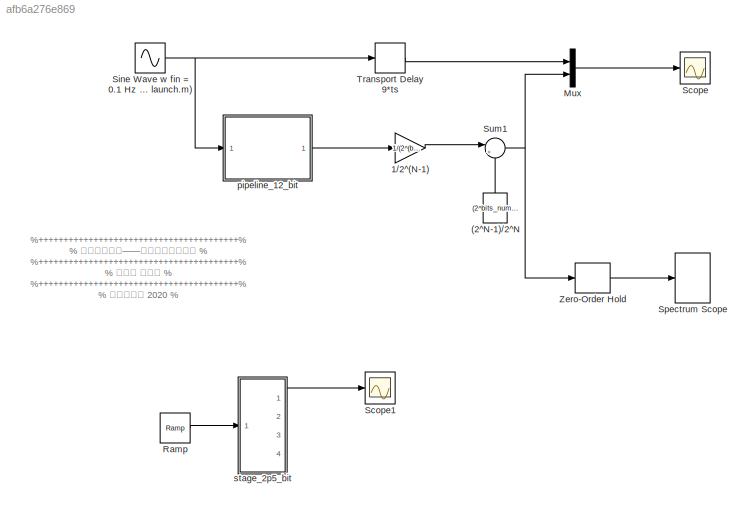
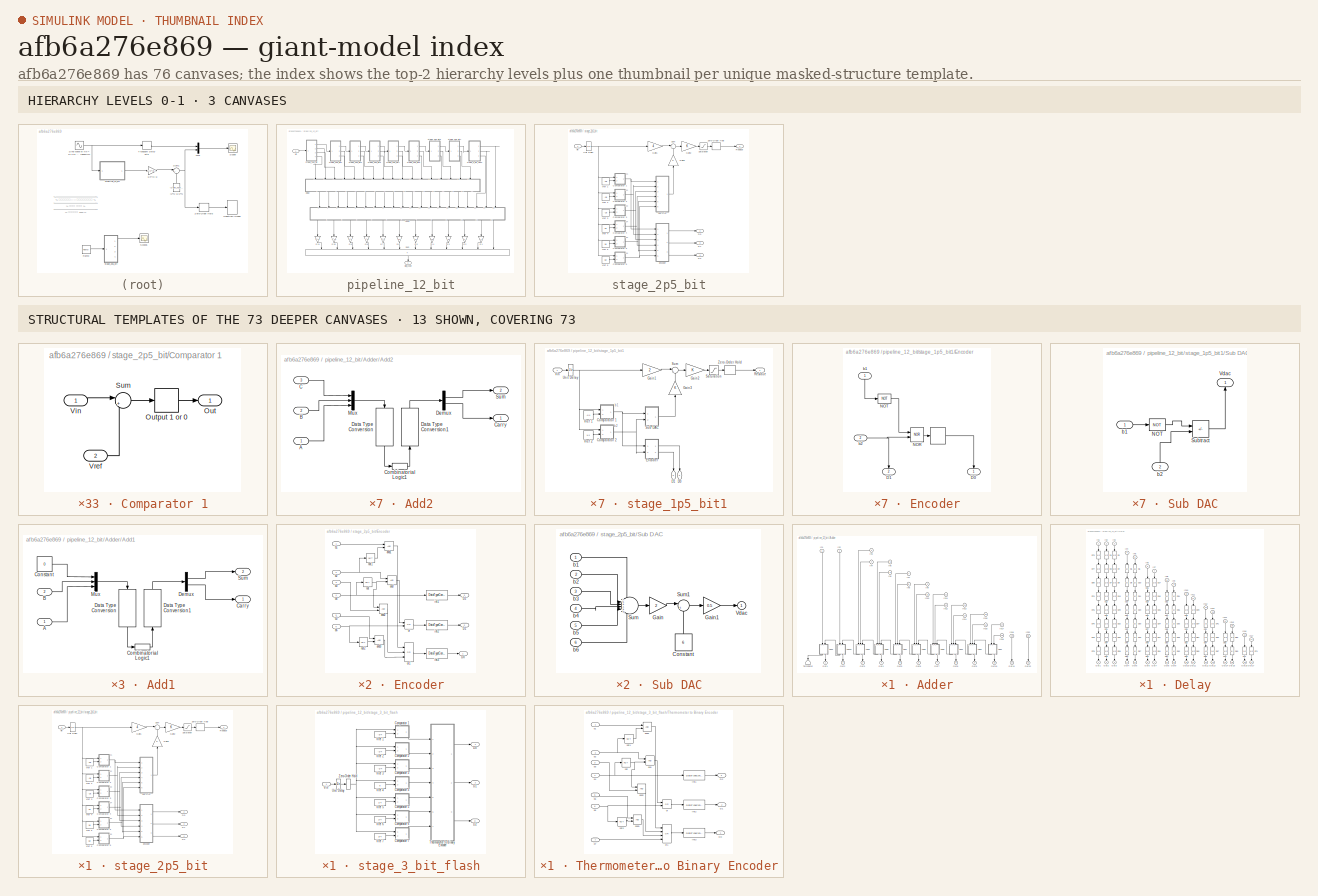
[diagram: thumbnail index - top-2 hierarchy levels (3 canvases) + 13 structural-template representatives of the remaining 73 canvases]
MODEL slx_afb6a276e869
KIND model
CONFIG AbsTol = auto
CONFIG EnableMultiTasking = off
CONFIG FixedStep = ts
CONFIG MaxStep = auto
CONFIG MinStep = auto
CONFIG RelTol = 1e-3
CONFIG SampleTimeConstraint = Unconstrained
CONFIG SolverName = FixedStepDiscrete
CONFIG StartTime = 0.0
CONFIG StopTime = 5000*ts
BLOCK [Scope]  Scope
  Floating = off
  NumInputPorts = 1
  Ports = [1]
  ScopeSpecificationString = Simulink.scopes.TimeScopeBlockCfg('CurrentConfiguration', extmgr.ConfigurationSet(extmgr.Configuration('Core','General UI',true),extmgr.Configuration('Core','Source UI',true),extmgr.Configuration('Sources','WiredSimulink',true,'DataLoggingVariableName','ScopeData1','DataLoggingMaxPoints','50','DataLoggingLimitDataPoints',true,'DataLoggingSaveFormat','Array','DataLoggingDecimation','1','DataLogging...<+1727ch>
BLOCK [Scope]  Scope1
  Floating = off
  NumInputPorts = 1
  Ports = [1]
  ScopeSpecificationString = Simulink.scopes.TimeScopeBlockCfg('CurrentConfiguration', extmgr.ConfigurationSet(extmgr.Configuration('Core','General UI',true),extmgr.Configuration('Core','Source UI',true),extmgr.Configuration('Sources','WiredSimulink',true,'DataLoggingMaxPoints','50','DataLoggingSaveFormat','Array','DataLoggingDecimation','1','DataLoggingDecimateData',true),extmgr.Configuration('Visuals','Time Domain',true,'Se...<+1707ch>
BLOCK [Constant] (2^N-1)//2^N
  NameLocation = left
  Value = (2^bits_number-1)/2^bits_number
BLOCK [Gain] 1//2^(N-1)
  Gain = 1/(2^(bits_number-1))
BLOCK [Mux] Mux
  DisplayOption = bar
  Inputs = 2
  Ports = [2, 1]
BLOCK [Reference] Ramp  REF=simulink/Sources/Ramp
  Ports = [0, 1]
  SourceBlock = simulink/Sources/Ramp
  SourceProductBaseCode = SL
  SourceType = Ramp
BLOCK [Sin] Sine Wave w fin = 0.1 Hz (set in launch.m)
  Frequency = 2*pi*fin
  Ports = [0, 1]
  SampleTime = 0
BLOCK [SpectrumAnalyzer] Spectrum Scope
  Ports = [1]
  ScopeSpecificationString = spbscopes.SpectrumAnalyzerBlockCfg('CurrentConfiguration', extmgr.ConfigurationSet(extmgr.Configuration('Core','General UI',true),extmgr.Configuration('Core','Source UI',true),extmgr.Configuration('Sources','WiredSimulink',true),extmgr.Configuration('Sources','Simulink',false),extmgr.Configuration('Sources','File',false),extmgr.Configuration('Sources','Workspace',false),extmgr.Configuration('Sourc...<+3021ch>
BLOCK [Sum] Sum1
  Inputs = |+-
  Ports = [2, 1]
BLOCK [TransportDelay] Transport Delay 9*ts
  DelayTime = 9
  Ports = [1, 1]
BLOCK [ZeroOrderHold] Zero-Order Hold
BLOCK [SubSystem] pipeline_12_bit
  NameLocation = top
  Ports = [1, 1]
  RequestExecContextInheritance = off
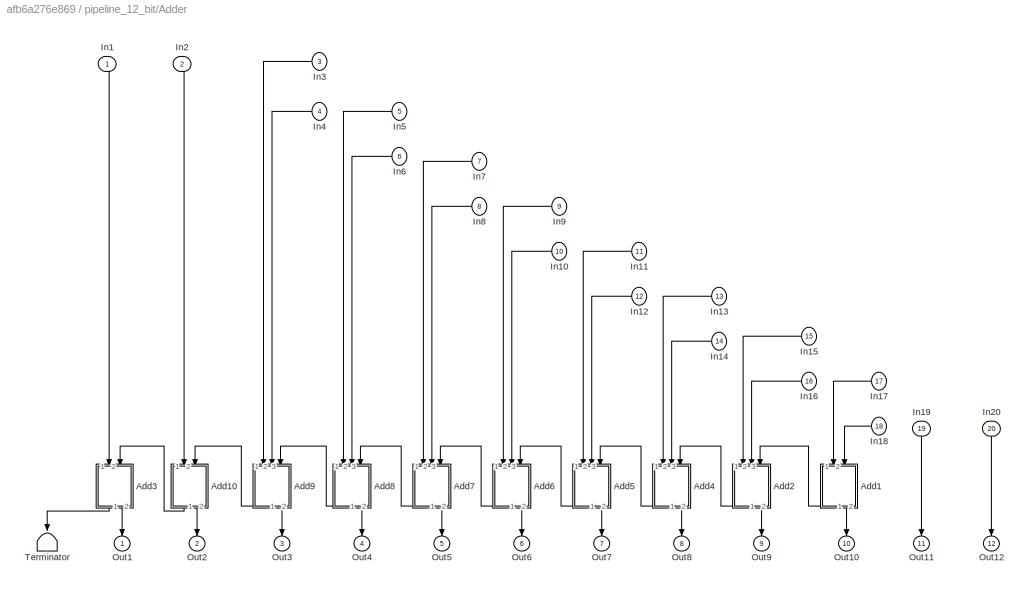
BLOCK [SubSystem] pipeline_12_bit/Adder
  NameLocation = right
  Ports = [20, 12]
  RequestExecContextInheritance = off
BLOCK [SubSystem] pipeline_12_bit/Adder/Add1
  NameLocation = right
  Ports = [2, 2]
  RequestExecContextInheritance = off
BLOCK [Inport] pipeline_12_bit/Adder/Add1/A
BLOCK [Inport] pipeline_12_bit/Adder/Add1/B
  Port = 2
BLOCK [Outport] pipeline_12_bit/Adder/Add1/Carry
BLOCK [CombinatorialLogic] pipeline_12_bit/Adder/Add1/Combinatorial Logic1
  TruthTable = [0 0;1 0 ;1 0;0 1;1 0;0 1;0 1;1 1]
BLOCK [Constant] pipeline_12_bit/Adder/Add1/Constant
  Value = 0
BLOCK [DataTypeConversion] pipeline_12_bit/Adder/Add1/Data Type Conversion
  NameLocation = left
  OutDataTypeStr = boolean
  RndMeth = Floor
  SaturateOnIntegerOverflow = off
BLOCK [DataTypeConversion] pipeline_12_bit/Adder/Add1/Data Type Conversion1
  NameLocation = right
  OutDataTypeStr = double
  RndMeth = Floor
  SaturateOnIntegerOverflow = off
BLOCK [Demux] pipeline_12_bit/Adder/Add1/Demux
  Outputs = 2
  Ports = [1, 2]
BLOCK [Mux] pipeline_12_bit/Adder/Add1/Mux
  DisplayOption = bar
  Inputs = 3
  Ports = [3, 1]
BLOCK [Outport] pipeline_12_bit/Adder/Add1/Sum
  Port = 2
BLOCK [SubSystem] pipeline_12_bit/Adder/Add10
  NameLocation = right
  Ports = [2, 2]
  RequestExecContextInheritance = off
BLOCK [Inport] pipeline_12_bit/Adder/Add10/A
BLOCK [Inport] pipeline_12_bit/Adder/Add10/B
  Port = 2
BLOCK [Outport] pipeline_12_bit/Adder/Add10/Carry
BLOCK [CombinatorialLogic] pipeline_12_bit/Adder/Add10/Combinatorial Logic1
  TruthTable = [0 0;1 0 ;1 0;0 1;1 0;0 1;0 1;1 1]
BLOCK [Constant] pipeline_12_bit/Adder/Add10/Constant
  Value = 0
BLOCK [DataTypeConversion] pipeline_12_bit/Adder/Add10/Data Type Conversion
  NameLocation = left
  OutDataTypeStr = boolean
  RndMeth = Floor
  SaturateOnIntegerOverflow = off
BLOCK [DataTypeConversion] pipeline_12_bit/Adder/Add10/Data Type Conversion1
  NameLocation = right
  OutDataTypeStr = double
  RndMeth = Floor
  SaturateOnIntegerOverflow = off
BLOCK [Demux] pipeline_12_bit/Adder/Add10/Demux
  Outputs = 2
  Ports = [1, 2]
BLOCK [Mux] pipeline_12_bit/Adder/Add10/Mux
  DisplayOption = bar
  Inputs = 3
  Ports = [3, 1]
BLOCK [Outport] pipeline_12_bit/Adder/Add10/Sum
  Port = 2
BLOCK [SubSystem] pipeline_12_bit/Adder/Add2
  NameLocation = right
  Ports = [3, 2]
  RequestExecContextInheritance = off
BLOCK [Inport] pipeline_12_bit/Adder/Add2/A
BLOCK [Inport] pipeline_12_bit/Adder/Add2/B
  Port = 2
BLOCK [Inport] pipeline_12_bit/Adder/Add2/C
  Port = 3
BLOCK [Outport] pipeline_12_bit/Adder/Add2/Carry
BLOCK [CombinatorialLogic] pipeline_12_bit/Adder/Add2/Combinatorial Logic1
  TruthTable = [0 0;1 0 ;1 0;0 1;1 0;0 1;0 1;1 1]
BLOCK [DataTypeConversion] pipeline_12_bit/Adder/Add2/Data Type Conversion
  NameLocation = left
  OutDataTypeStr = boolean
  RndMeth = Floor
  SaturateOnIntegerOverflow = off
BLOCK [DataTypeConversion] pipeline_12_bit/Adder/Add2/Data Type Conversion1
  NameLocation = right
  OutDataTypeStr = double
  RndMeth = Floor
  SaturateOnIntegerOverflow = off
BLOCK [Demux] pipeline_12_bit/Adder/Add2/Demux
  Outputs = 2
  Ports = [1, 2]
BLOCK [Mux] pipeline_12_bit/Adder/Add2/Mux
  DisplayOption = bar
  Inputs = 3
  Ports = [3, 1]
BLOCK [Outport] pipeline_12_bit/Adder/Add2/Sum
  Port = 2
BLOCK [SubSystem] pipeline_12_bit/Adder/Add3
  NameLocation = right
  Ports = [2, 2]
  RequestExecContextInheritance = off
BLOCK [Inport] pipeline_12_bit/Adder/Add3/A
BLOCK [Inport] pipeline_12_bit/Adder/Add3/B
  Port = 2
BLOCK [Outport] pipeline_12_bit/Adder/Add3/Carry
BLOCK [CombinatorialLogic] pipeline_12_bit/Adder/Add3/Combinatorial Logic1
  TruthTable = [0 0;1 0 ;1 0;0 1;1 0;0 1;0 1;1 1]
BLOCK [Constant] pipeline_12_bit/Adder/Add3/Constant
  Value = 0
BLOCK [DataTypeConversion] pipeline_12_bit/Adder/Add3/Data Type Conversion
  NameLocation = left
  OutDataTypeStr = boolean
  RndMeth = Floor
  SaturateOnIntegerOverflow = off
BLOCK [DataTypeConversion] pipeline_12_bit/Adder/Add3/Data Type Conversion1
  NameLocation = right
  OutDataTypeStr = double
  RndMeth = Floor
  SaturateOnIntegerOverflow = off
BLOCK [Demux] pipeline_12_bit/Adder/Add3/Demux
  Outputs = 2
  Ports = [1, 2]
BLOCK [Mux] pipeline_12_bit/Adder/Add3/Mux
  DisplayOption = bar
  Inputs = 3
  Ports = [3, 1]
BLOCK [Outport] pipeline_12_bit/Adder/Add3/Sum
  Port = 2
BLOCK [SubSystem] pipeline_12_bit/Adder/Add4
  NameLocation = right
  Ports = [3, 2]
  RequestExecContextInheritance = off
BLOCK [Inport] pipeline_12_bit/Adder/Add4/A
BLOCK [Inport] pipeline_12_bit/Adder/Add4/B
  Port = 2
BLOCK [Inport] pipeline_12_bit/Adder/Add4/C
  Port = 3
BLOCK [Outport] pipeline_12_bit/Adder/Add4/Carry
BLOCK [CombinatorialLogic] pipeline_12_bit/Adder/Add4/Combinatorial Logic1
  TruthTable = [0 0;1 0 ;1 0;0 1;1 0;0 1;0 1;1 1]
BLOCK [DataTypeConversion] pipeline_12_bit/Adder/Add4/Data Type Conversion
  NameLocation = left
  OutDataTypeStr = boolean
  RndMeth = Floor
  SaturateOnIntegerOverflow = off
BLOCK [DataTypeConversion] pipeline_12_bit/Adder/Add4/Data Type Conversion1
  NameLocation = right
  OutDataTypeStr = double
  RndMeth = Floor
  SaturateOnIntegerOverflow = off
BLOCK [Demux] pipeline_12_bit/Adder/Add4/Demux
  Outputs = 2
  Ports = [1, 2]
BLOCK [Mux] pipeline_12_bit/Adder/Add4/Mux
  DisplayOption = bar
  Inputs = 3
  Ports = [3, 1]
BLOCK [Outport] pipeline_12_bit/Adder/Add4/Sum
  Port = 2
BLOCK [SubSystem] pipeline_12_bit/Adder/Add5
  NameLocation = right
  Ports = [3, 2]
  RequestExecContextInheritance = off
BLOCK [Inport] pipeline_12_bit/Adder/Add5/A
BLOCK [Inport] pipeline_12_bit/Adder/Add5/B
  Port = 2
BLOCK [Inport] pipeline_12_bit/Adder/Add5/C
  Port = 3
BLOCK [Outport] pipeline_12_bit/Adder/Add5/Carry
BLOCK [CombinatorialLogic] pipeline_12_bit/Adder/Add5/Combinatorial Logic1
  TruthTable = [0 0;1 0 ;1 0;0 1;1 0;0 1;0 1;1 1]
BLOCK [DataTypeConversion] pipeline_12_bit/Adder/Add5/Data Type Conversion
  NameLocation = left
  OutDataTypeStr = boolean
  RndMeth = Floor
  SaturateOnIntegerOverflow = off
BLOCK [DataTypeConversion] pipeline_12_bit/Adder/Add5/Data Type Conversion1
  NameLocation = right
  OutDataTypeStr = double
  RndMeth = Floor
  SaturateOnIntegerOverflow = off
BLOCK [Demux] pipeline_12_bit/Adder/Add5/Demux
  Outputs = 2
  Ports = [1, 2]
BLOCK [Mux] pipeline_12_bit/Adder/Add5/Mux
  DisplayOption = bar
  Inputs = 3
  Ports = [3, 1]
BLOCK [Outport] pipeline_12_bit/Adder/Add5/Sum
  Port = 2
BLOCK [SubSystem] pipeline_12_bit/Adder/Add6
  NameLocation = right
  Ports = [3, 2]
  RequestExecContextInheritance = off
BLOCK [Inport] pipeline_12_bit/Adder/Add6/A
BLOCK [Inport] pipeline_12_bit/Adder/Add6/B
  Port = 2
BLOCK [Inport] pipeline_12_bit/Adder/Add6/C
  Port = 3
BLOCK [Outport] pipeline_12_bit/Adder/Add6/Carry
BLOCK [CombinatorialLogic] pipeline_12_bit/Adder/Add6/Combinatorial Logic1
  TruthTable = [0 0;1 0 ;1 0;0 1;1 0;0 1;0 1;1 1]
BLOCK [DataTypeConversion] pipeline_12_bit/Adder/Add6/Data Type Conversion
  NameLocation = left
  OutDataTypeStr = boolean
  RndMeth = Floor
  SaturateOnIntegerOverflow = off
BLOCK [DataTypeConversion] pipeline_12_bit/Adder/Add6/Data Type Conversion1
  NameLocation = right
  OutDataTypeStr = double
  RndMeth = Floor
  SaturateOnIntegerOverflow = off
BLOCK [Demux] pipeline_12_bit/Adder/Add6/Demux
  Outputs = 2
  Ports = [1, 2]
BLOCK [Mux] pipeline_12_bit/Adder/Add6/Mux
  DisplayOption = bar
  Inputs = 3
  Ports = [3, 1]
BLOCK [Outport] pipeline_12_bit/Adder/Add6/Sum
  Port = 2
BLOCK [SubSystem] pipeline_12_bit/Adder/Add7
  NameLocation = right
  Ports = [3, 2]
  RequestExecContextInheritance = off
BLOCK [Inport] pipeline_12_bit/Adder/Add7/A
BLOCK [Inport] pipeline_12_bit/Adder/Add7/B
  Port = 2
BLOCK [Inport] pipeline_12_bit/Adder/Add7/C
  Port = 3
BLOCK [Outport] pipeline_12_bit/Adder/Add7/Carry
BLOCK [CombinatorialLogic] pipeline_12_bit/Adder/Add7/Combinatorial Logic1
  TruthTable = [0 0;1 0 ;1 0;0 1;1 0;0 1;0 1;1 1]
BLOCK [DataTypeConversion] pipeline_12_bit/Adder/Add7/Data Type Conversion
  NameLocation = left
  OutDataTypeStr = boolean
  RndMeth = Floor
  SaturateOnIntegerOverflow = off
BLOCK [DataTypeConversion] pipeline_12_bit/Adder/Add7/Data Type Conversion1
  NameLocation = right
  OutDataTypeStr = double
  RndMeth = Floor
  SaturateOnIntegerOverflow = off
BLOCK [Demux] pipeline_12_bit/Adder/Add7/Demux
  Outputs = 2
  Ports = [1, 2]
BLOCK [Mux] pipeline_12_bit/Adder/Add7/Mux
  DisplayOption = bar
  Inputs = 3
  Ports = [3, 1]
BLOCK [Outport] pipeline_12_bit/Adder/Add7/Sum
  Port = 2
BLOCK [SubSystem] pipeline_12_bit/Adder/Add8
  NameLocation = right
  Ports = [3, 2]
  RequestExecContextInheritance = off
BLOCK [Inport] pipeline_12_bit/Adder/Add8/A
BLOCK [Inport] pipeline_12_bit/Adder/Add8/B
  Port = 2
BLOCK [Inport] pipeline_12_bit/Adder/Add8/C
  Port = 3
BLOCK [Outport] pipeline_12_bit/Adder/Add8/Carry
BLOCK [CombinatorialLogic] pipeline_12_bit/Adder/Add8/Combinatorial Logic1
  TruthTable = [0 0;1 0 ;1 0;0 1;1 0;0 1;0 1;1 1]
BLOCK [DataTypeConversion] pipeline_12_bit/Adder/Add8/Data Type Conversion
  NameLocation = left
  OutDataTypeStr = boolean
  RndMeth = Floor
  SaturateOnIntegerOverflow = off
BLOCK [DataTypeConversion] pipeline_12_bit/Adder/Add8/Data Type Conversion1
  NameLocation = right
  OutDataTypeStr = double
  RndMeth = Floor
  SaturateOnIntegerOverflow = off
BLOCK [Demux] pipeline_12_bit/Adder/Add8/Demux
  Outputs = 2
  Ports = [1, 2]
BLOCK [Mux] pipeline_12_bit/Adder/Add8/Mux
  DisplayOption = bar
  Inputs = 3
  Ports = [3, 1]
BLOCK [Outport] pipeline_12_bit/Adder/Add8/Sum
  Port = 2
BLOCK [SubSystem] pipeline_12_bit/Adder/Add9
  NameLocation = right
  Ports = [3, 2]
  RequestExecContextInheritance = off
BLOCK [Inport] pipeline_12_bit/Adder/Add9/A
BLOCK [Inport] pipeline_12_bit/Adder/Add9/B
  Port = 2
BLOCK [Inport] pipeline_12_bit/Adder/Add9/C
  Port = 3
BLOCK [Outport] pipeline_12_bit/Adder/Add9/Carry
BLOCK [CombinatorialLogic] pipeline_12_bit/Adder/Add9/Combinatorial Logic1
  TruthTable = [0 0;1 0 ;1 0;0 1;1 0;0 1;0 1;1 1]
BLOCK [DataTypeConversion] pipeline_12_bit/Adder/Add9/Data Type Conversion
  NameLocation = left
  OutDataTypeStr = boolean
  RndMeth = Floor
  SaturateOnIntegerOverflow = off
BLOCK [DataTypeConversion] pipeline_12_bit/Adder/Add9/Data Type Conversion1
  NameLocation = right
  OutDataTypeStr = double
  RndMeth = Floor
  SaturateOnIntegerOverflow = off
BLOCK [Demux] pipeline_12_bit/Adder/Add9/Demux
  Outputs = 2
  Ports = [1, 2]
BLOCK [Mux] pipeline_12_bit/Adder/Add9/Mux
  DisplayOption = bar
  Inputs = 3
  Ports = [3, 1]
BLOCK [Outport] pipeline_12_bit/Adder/Add9/Sum
  Port = 2
BLOCK [Inport] pipeline_12_bit/Adder/In1
  NameLocation = right
BLOCK [Inport] pipeline_12_bit/Adder/In10
  Port = 10
BLOCK [Inport] pipeline_12_bit/Adder/In11
  Port = 11
BLOCK [Inport] pipeline_12_bit/Adder/In12
  Port = 12
BLOCK [Inport] pipeline_12_bit/Adder/In13
  Port = 13
BLOCK [Inport] pipeline_12_bit/Adder/In14
  Port = 14
BLOCK [Inport] pipeline_12_bit/Adder/In15
  Port = 15
BLOCK [Inport] pipeline_12_bit/Adder/In16
  Port = 16
BLOCK [Inport] pipeline_12_bit/Adder/In17
  Port = 17
BLOCK [Inport] pipeline_12_bit/Adder/In18
  Port = 18
BLOCK [Inport] pipeline_12_bit/Adder/In19
  NameLocation = right
  Port = 19
BLOCK [Inport] pipeline_12_bit/Adder/In2
  NameLocation = right
  Port = 2
BLOCK [Inport] pipeline_12_bit/Adder/In20
  NameLocation = right
  Port = 20
BLOCK [Inport] pipeline_12_bit/Adder/In3
  Port = 3
BLOCK [Inport] pipeline_12_bit/Adder/In4
  Port = 4
BLOCK [Inport] pipeline_12_bit/Adder/In5
  Port = 5
BLOCK [Inport] pipeline_12_bit/Adder/In6
  Port = 6
BLOCK [Inport] pipeline_12_bit/Adder/In7
  Port = 7
BLOCK [Inport] pipeline_12_bit/Adder/In8
  Port = 8
BLOCK [Inport] pipeline_12_bit/Adder/In9
  Port = 9
BLOCK [Outport] pipeline_12_bit/Adder/Out1
  NameLocation = left
BLOCK [Outport] pipeline_12_bit/Adder/Out10
  NameLocation = left
  Port = 10
BLOCK [Outport] pipeline_12_bit/Adder/Out11
  NameLocation = left
  Port = 11
BLOCK [Outport] pipeline_12_bit/Adder/Out12
  NameLocation = left
  Port = 12
BLOCK [Outport] pipeline_12_bit/Adder/Out2
  NameLocation = left
  Port = 2
BLOCK [Outport] pipeline_12_bit/Adder/Out3
  NameLocation = left
  Port = 3
BLOCK [Outport] pipeline_12_bit/Adder/Out4
  NameLocation = left
  Port = 4
BLOCK [Outport] pipeline_12_bit/Adder/Out5
  NameLocation = left
  Port = 5
BLOCK [Outport] pipeline_12_bit/Adder/Out6
  NameLocation = left
  Port = 6
BLOCK [Outport] pipeline_12_bit/Adder/Out7
  NameLocation = left
  Port = 7
BLOCK [Outport] pipeline_12_bit/Adder/Out8
  NameLocation = left
  Port = 8
BLOCK [Outport] pipeline_12_bit/Adder/Out9
  NameLocation = left
  Port = 9
BLOCK [Terminator] pipeline_12_bit/Adder/Terminator
  NameLocation = left
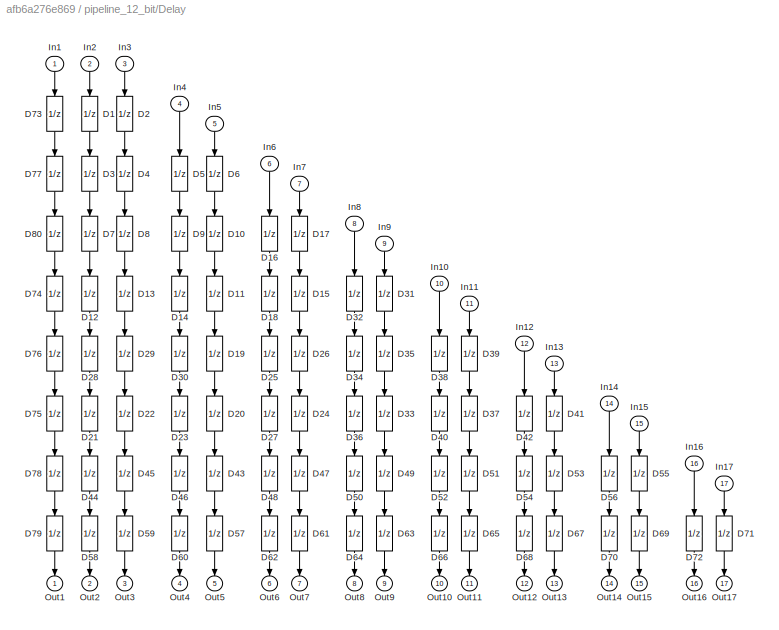
BLOCK [SubSystem] pipeline_12_bit/Delay
  NameLocation = right
  Ports = [17, 17]
  RequestExecContextInheritance = off
BLOCK [UnitDelay] pipeline_12_bit/Delay/D1
  HasFrameUpgradeWarning = on
  NameLocation = left
  SampleTime = -1
BLOCK [UnitDelay] pipeline_12_bit/Delay/D10
  HasFrameUpgradeWarning = on
  NameLocation = left
  SampleTime = -1
BLOCK [UnitDelay] pipeline_12_bit/Delay/D11
  HasFrameUpgradeWarning = on
  NameLocation = left
  SampleTime = -1
BLOCK [UnitDelay] pipeline_12_bit/Delay/D12
  HasFrameUpgradeWarning = on
  NameLocation = left
  SampleTime = -1
BLOCK [UnitDelay] pipeline_12_bit/Delay/D13
  HasFrameUpgradeWarning = on
  NameLocation = left
  SampleTime = -1
BLOCK [UnitDelay] pipeline_12_bit/Delay/D14
  HasFrameUpgradeWarning = on
  NameLocation = left
  SampleTime = -1
BLOCK [UnitDelay] pipeline_12_bit/Delay/D15
  HasFrameUpgradeWarning = on
  NameLocation = left
  SampleTime = -1
BLOCK [UnitDelay] pipeline_12_bit/Delay/D16
  HasFrameUpgradeWarning = on
  NameLocation = left
  SampleTime = -1
BLOCK [UnitDelay] pipeline_12_bit/Delay/D17
  HasFrameUpgradeWarning = on
  NameLocation = left
  SampleTime = -1
BLOCK [UnitDelay] pipeline_12_bit/Delay/D18
  HasFrameUpgradeWarning = on
  NameLocation = left
  SampleTime = -1
BLOCK [UnitDelay] pipeline_12_bit/Delay/D19
  HasFrameUpgradeWarning = on
  NameLocation = left
  SampleTime = -1
BLOCK [UnitDelay] pipeline_12_bit/Delay/D2
  HasFrameUpgradeWarning = on
  NameLocation = left
  SampleTime = -1
BLOCK [UnitDelay] pipeline_12_bit/Delay/D20
  HasFrameUpgradeWarning = on
  NameLocation = left
  SampleTime = -1
BLOCK [UnitDelay] pipeline_12_bit/Delay/D21
  HasFrameUpgradeWarning = on
  NameLocation = left
  SampleTime = -1
BLOCK [UnitDelay] pipeline_12_bit/Delay/D22
  HasFrameUpgradeWarning = on
  NameLocation = left
  SampleTime = -1
BLOCK [UnitDelay] pipeline_12_bit/Delay/D23
  HasFrameUpgradeWarning = on
  NameLocation = left
  SampleTime = -1
BLOCK [UnitDelay] pipeline_12_bit/Delay/D24
  HasFrameUpgradeWarning = on
  NameLocation = left
  SampleTime = -1
BLOCK [UnitDelay] pipeline_12_bit/Delay/D25
  HasFrameUpgradeWarning = on
  NameLocation = left
  SampleTime = -1
BLOCK [UnitDelay] pipeline_12_bit/Delay/D26
  HasFrameUpgradeWarning = on
  NameLocation = left
  SampleTime = -1
BLOCK [UnitDelay] pipeline_12_bit/Delay/D27
  HasFrameUpgradeWarning = on
  NameLocation = left
  SampleTime = -1
BLOCK [UnitDelay] pipeline_12_bit/Delay/D28
  HasFrameUpgradeWarning = on
  NameLocation = left
  SampleTime = -1
BLOCK [UnitDelay] pipeline_12_bit/Delay/D29
  HasFrameUpgradeWarning = on
  NameLocation = left
  SampleTime = -1
BLOCK [UnitDelay] pipeline_12_bit/Delay/D3
  HasFrameUpgradeWarning = on
  NameLocation = left
  SampleTime = -1
BLOCK [UnitDelay] pipeline_12_bit/Delay/D30
  HasFrameUpgradeWarning = on
  NameLocation = left
  SampleTime = -1
BLOCK [UnitDelay] pipeline_12_bit/Delay/D31
  HasFrameUpgradeWarning = on
  NameLocation = left
  SampleTime = -1
BLOCK [UnitDelay] pipeline_12_bit/Delay/D32
  HasFrameUpgradeWarning = on
  NameLocation = left
  SampleTime = -1
BLOCK [UnitDelay] pipeline_12_bit/Delay/D33
  HasFrameUpgradeWarning = on
  NameLocation = left
  SampleTime = -1
BLOCK [UnitDelay] pipeline_12_bit/Delay/D34
  HasFrameUpgradeWarning = on
  NameLocation = left
  SampleTime = -1
BLOCK [UnitDelay] pipeline_12_bit/Delay/D35
  HasFrameUpgradeWarning = on
  NameLocation = left
  SampleTime = -1
BLOCK [UnitDelay] pipeline_12_bit/Delay/D36
  HasFrameUpgradeWarning = on
  NameLocation = left
  SampleTime = -1
BLOCK [UnitDelay] pipeline_12_bit/Delay/D37
  HasFrameUpgradeWarning = on
  NameLocation = left
  SampleTime = -1
BLOCK [UnitDelay] pipeline_12_bit/Delay/D38
  HasFrameUpgradeWarning = on
  NameLocation = left
  SampleTime = -1
BLOCK [UnitDelay] pipeline_12_bit/Delay/D39
  HasFrameUpgradeWarning = on
  NameLocation = left
  SampleTime = -1
BLOCK [UnitDelay] pipeline_12_bit/Delay/D4
  HasFrameUpgradeWarning = on
  NameLocation = left
  SampleTime = -1
BLOCK [UnitDelay] pipeline_12_bit/Delay/D40
  HasFrameUpgradeWarning = on
  NameLocation = left
  SampleTime = -1
BLOCK [UnitDelay] pipeline_12_bit/Delay/D41
  HasFrameUpgradeWarning = on
  NameLocation = left
  SampleTime = -1
BLOCK [UnitDelay] pipeline_12_bit/Delay/D42
  HasFrameUpgradeWarning = on
  NameLocation = left
  SampleTime = -1
BLOCK [UnitDelay] pipeline_12_bit/Delay/D43
  HasFrameUpgradeWarning = on
  NameLocation = left
  SampleTime = -1
BLOCK [UnitDelay] pipeline_12_bit/Delay/D44
  HasFrameUpgradeWarning = on
  NameLocation = left
  SampleTime = -1
BLOCK [UnitDelay] pipeline_12_bit/Delay/D45
  HasFrameUpgradeWarning = on
  NameLocation = left
  SampleTime = -1
BLOCK [UnitDelay] pipeline_12_bit/Delay/D46
  HasFrameUpgradeWarning = on
  NameLocation = left
  SampleTime = -1
BLOCK [UnitDelay] pipeline_12_bit/Delay/D47
  HasFrameUpgradeWarning = on
  NameLocation = left
  SampleTime = -1
BLOCK [UnitDelay] pipeline_12_bit/Delay/D48
  HasFrameUpgradeWarning = on
  NameLocation = left
  SampleTime = -1
BLOCK [UnitDelay] pipeline_12_bit/Delay/D49
  HasFrameUpgradeWarning = on
  NameLocation = left
  SampleTime = -1
BLOCK [UnitDelay] pipeline_12_bit/Delay/D5
  HasFrameUpgradeWarning = on
  NameLocation = left
  SampleTime = -1
BLOCK [UnitDelay] pipeline_12_bit/Delay/D50
  HasFrameUpgradeWarning = on
  NameLocation = left
  SampleTime = -1
BLOCK [UnitDelay] pipeline_12_bit/Delay/D51
  HasFrameUpgradeWarning = on
  NameLocation = left
  SampleTime = -1
BLOCK [UnitDelay] pipeline_12_bit/Delay/D52
  HasFrameUpgradeWarning = on
  NameLocation = left
  SampleTime = -1
BLOCK [UnitDelay] pipeline_12_bit/Delay/D53
  HasFrameUpgradeWarning = on
  NameLocation = left
  SampleTime = -1
BLOCK [UnitDelay] pipeline_12_bit/Delay/D54
  HasFrameUpgradeWarning = on
  NameLocation = left
  SampleTime = -1
BLOCK [UnitDelay] pipeline_12_bit/Delay/D55
  HasFrameUpgradeWarning = on
  NameLocation = left
  SampleTime = -1
BLOCK [UnitDelay] pipeline_12_bit/Delay/D56
  HasFrameUpgradeWarning = on
  NameLocation = left
  SampleTime = -1
BLOCK [UnitDelay] pipeline_12_bit/Delay/D57
  HasFrameUpgradeWarning = on
  NameLocation = left
  SampleTime = -1
BLOCK [UnitDelay] pipeline_12_bit/Delay/D58
  HasFrameUpgradeWarning = on
  NameLocation = left
  SampleTime = -1
BLOCK [UnitDelay] pipeline_12_bit/Delay/D59
  HasFrameUpgradeWarning = on
  NameLocation = left
  SampleTime = -1
BLOCK [UnitDelay] pipeline_12_bit/Delay/D6
  HasFrameUpgradeWarning = on
  NameLocation = left
  SampleTime = -1
BLOCK [UnitDelay] pipeline_12_bit/Delay/D60
  HasFrameUpgradeWarning = on
  NameLocation = left
  SampleTime = -1
BLOCK [UnitDelay] pipeline_12_bit/Delay/D61
  HasFrameUpgradeWarning = on
  NameLocation = left
  SampleTime = -1
BLOCK [UnitDelay] pipeline_12_bit/Delay/D62
  HasFrameUpgradeWarning = on
  NameLocation = left
  SampleTime = -1
BLOCK [UnitDelay] pipeline_12_bit/Delay/D63
  HasFrameUpgradeWarning = on
  NameLocation = left
  SampleTime = -1
BLOCK [UnitDelay] pipeline_12_bit/Delay/D64
  HasFrameUpgradeWarning = on
  NameLocation = left
  SampleTime = -1
BLOCK [UnitDelay] pipeline_12_bit/Delay/D65
  HasFrameUpgradeWarning = on
  NameLocation = left
  SampleTime = -1
BLOCK [UnitDelay] pipeline_12_bit/Delay/D66
  HasFrameUpgradeWarning = on
  NameLocation = left
  SampleTime = -1
BLOCK [UnitDelay] pipeline_12_bit/Delay/D67
  HasFrameUpgradeWarning = on
  NameLocation = left
  SampleTime = -1
BLOCK [UnitDelay] pipeline_12_bit/Delay/D68
  HasFrameUpgradeWarning = on
  NameLocation = left
  SampleTime = -1
BLOCK [UnitDelay] pipeline_12_bit/Delay/D69
  HasFrameUpgradeWarning = on
  NameLocation = left
  SampleTime = -1
BLOCK [UnitDelay] pipeline_12_bit/Delay/D7
  HasFrameUpgradeWarning = on
  NameLocation = left
  SampleTime = -1
BLOCK [UnitDelay] pipeline_12_bit/Delay/D70
  HasFrameUpgradeWarning = on
  NameLocation = left
  SampleTime = -1
BLOCK [UnitDelay] pipeline_12_bit/Delay/D71
  HasFrameUpgradeWarning = on
  NameLocation = left
  SampleTime = -1
BLOCK [UnitDelay] pipeline_12_bit/Delay/D72
  HasFrameUpgradeWarning = on
  NameLocation = left
  SampleTime = -1
BLOCK [UnitDelay] pipeline_12_bit/Delay/D73
  HasFrameUpgradeWarning = on
  NameLocation = left
  SampleTime = -1
BLOCK [UnitDelay] pipeline_12_bit/Delay/D74
  HasFrameUpgradeWarning = on
  NameLocation = left
  SampleTime = -1
BLOCK [UnitDelay] pipeline_12_bit/Delay/D75
  HasFrameUpgradeWarning = on
  NameLocation = left
  SampleTime = -1
BLOCK [UnitDelay] pipeline_12_bit/Delay/D76
  HasFrameUpgradeWarning = on
  NameLocation = left
  SampleTime = -1
BLOCK [UnitDelay] pipeline_12_bit/Delay/D77
  HasFrameUpgradeWarning = on
  NameLocation = left
  SampleTime = -1
BLOCK [UnitDelay] pipeline_12_bit/Delay/D78
  HasFrameUpgradeWarning = on
  NameLocation = left
  SampleTime = -1
BLOCK [UnitDelay] pipeline_12_bit/Delay/D79
  HasFrameUpgradeWarning = on
  NameLocation = left
  SampleTime = -1
BLOCK [UnitDelay] pipeline_12_bit/Delay/D8
  HasFrameUpgradeWarning = on
  NameLocation = left
  SampleTime = -1
BLOCK [UnitDelay] pipeline_12_bit/Delay/D80
  HasFrameUpgradeWarning = on
  NameLocation = left
  SampleTime = -1
BLOCK [UnitDelay] pipeline_12_bit/Delay/D9
  HasFrameUpgradeWarning = on
  NameLocation = left
  SampleTime = -1
BLOCK [Inport] pipeline_12_bit/Delay/In1
  NameLocation = right
BLOCK [Inport] pipeline_12_bit/Delay/In10
  NameLocation = right
  Port = 10
BLOCK [Inport] pipeline_12_bit/Delay/In11
  NameLocation = right
  Port = 11
BLOCK [Inport] pipeline_12_bit/Delay/In12
  NameLocation = right
  Port = 12
BLOCK [Inport] pipeline_12_bit/Delay/In13
  NameLocation = right
  Port = 13
BLOCK [Inport] pipeline_12_bit/Delay/In14
  NameLocation = right
  Port = 14
BLOCK [Inport] pipeline_12_bit/Delay/In15
  NameLocation = right
  Port = 15
BLOCK [Inport] pipeline_12_bit/Delay/In16
  NameLocation = right
  Port = 16
BLOCK [Inport] pipeline_12_bit/Delay/In17
  NameLocation = right
  Port = 17
BLOCK [Inport] pipeline_12_bit/Delay/In2
  NameLocation = right
  Port = 2
BLOCK [Inport] pipeline_12_bit/Delay/In3
  NameLocation = right
  Port = 3
BLOCK [Inport] pipeline_12_bit/Delay/In4
  NameLocation = right
  Port = 4
BLOCK [Inport] pipeline_12_bit/Delay/In5
  NameLocation = right
  Port = 5
BLOCK [Inport] pipeline_12_bit/Delay/In6
  NameLocation = right
  Port = 6
BLOCK [Inport] pipeline_12_bit/Delay/In7
  NameLocation = right
  Port = 7
BLOCK [Inport] pipeline_12_bit/Delay/In8
  NameLocation = right
  Port = 8
BLOCK [Inport] pipeline_12_bit/Delay/In9
  NameLocation = right
  Port = 9
BLOCK [Outport] pipeline_12_bit/Delay/Out1
  NameLocation = left
BLOCK [Outport] pipeline_12_bit/Delay/Out10
  NameLocation = left
  Port = 10
BLOCK [Outport] pipeline_12_bit/Delay/Out11
  NameLocation = left
  Port = 11
BLOCK [Outport] pipeline_12_bit/Delay/Out12
  NameLocation = left
  Port = 12
BLOCK [Outport] pipeline_12_bit/Delay/Out13
  NameLocation = left
  Port = 13
BLOCK [Outport] pipeline_12_bit/Delay/Out14
  NameLocation = left
  Port = 14
BLOCK [Outport] pipeline_12_bit/Delay/Out15
  NameLocation = left
  Port = 15
BLOCK [Outport] pipeline_12_bit/Delay/Out16
  NameLocation = left
  Port = 16
BLOCK [Outport] pipeline_12_bit/Delay/Out17
  NameLocation = left
  Port = 17
BLOCK [Outport] pipeline_12_bit/Delay/Out2
  NameLocation = left
  Port = 2
BLOCK [Outport] pipeline_12_bit/Delay/Out3
  NameLocation = left
  Port = 3
BLOCK [Outport] pipeline_12_bit/Delay/Out4
  NameLocation = left
  Port = 4
BLOCK [Outport] pipeline_12_bit/Delay/Out5
  NameLocation = left
  Port = 5
BLOCK [Outport] pipeline_12_bit/Delay/Out6
  NameLocation = left
  Port = 6
BLOCK [Outport] pipeline_12_bit/Delay/Out7
  NameLocation = left
  Port = 7
BLOCK [Outport] pipeline_12_bit/Delay/Out8
  NameLocation = left
  Port = 8
BLOCK [Outport] pipeline_12_bit/Delay/Out9
  NameLocation = left
  Port = 9
BLOCK [Gain] pipeline_12_bit/G1
  Gain = 2
  NameLocation = left
BLOCK [Gain] pipeline_12_bit/G10
  Gain = 2^10
  NameLocation = left
BLOCK [Gain] pipeline_12_bit/G11
  Gain = 2^11
  NameLocation = left
BLOCK [Gain] pipeline_12_bit/G2
  Gain = 4
  NameLocation = left
BLOCK [Gain] pipeline_12_bit/G3
  Gain = 8
  NameLocation = left
BLOCK [Gain] pipeline_12_bit/G4
  Gain = 16
  NameLocation = left
BLOCK [Gain] pipeline_12_bit/G5
  Gain = 32
  NameLocation = left
BLOCK [Gain] pipeline_12_bit/G6
  Gain = 64
  NameLocation = left
BLOCK [Gain] pipeline_12_bit/G7
  Gain = 2^7
  NameLocation = left
BLOCK [Gain] pipeline_12_bit/G8
  Gain = 2^8
  NameLocation = left
BLOCK [Gain] pipeline_12_bit/G9
  Gain = 2^9
  NameLocation = left
BLOCK [Sum] pipeline_12_bit/Sum
  IconShape = rectangular
  Inputs = ++++++++++++
  NameLocation = left
  Ports = [12, 1]
BLOCK [Inport] pipeline_12_bit/Vin
BLOCK [Outport] pipeline_12_bit/digi_code
  NameLocation = right
BLOCK [SubSystem] pipeline_12_bit/stage_1p5_bit1
  Ports = [1, 3]
  RequestExecContextInheritance = off
BLOCK [SubSystem] pipeline_12_bit/stage_1p5_bit1/Comparator 1
  Ports = [2, 1]
  RequestExecContextInheritance = off
BLOCK [Outport] pipeline_12_bit/stage_1p5_bit1/Comparator 1/Out
BLOCK [Relay] pipeline_12_bit/stage_1p5_bit1/Comparator 1/Output 1 or 0
  OffSwitchValue = 0
  OnSwitchValue = 0
BLOCK [Sum] pipeline_12_bit/stage_1p5_bit1/Comparator 1/Sum
  Inputs = |+-
  Ports = [2, 1]
BLOCK [Inport] pipeline_12_bit/stage_1p5_bit1/Comparator 1/Vin
BLOCK [Inport] pipeline_12_bit/stage_1p5_bit1/Comparator 1/Vref
  Port = 2
BLOCK [SubSystem] pipeline_12_bit/stage_1p5_bit1/Comparator 2
  Ports = [2, 1]
  RequestExecContextInheritance = off
BLOCK [Outport] pipeline_12_bit/stage_1p5_bit1/Comparator 2/Out
BLOCK [Relay] pipeline_12_bit/stage_1p5_bit1/Comparator 2/Output 1 or 0
  OffSwitchValue = 0
  OnSwitchValue = 0
BLOCK [Sum] pipeline_12_bit/stage_1p5_bit1/Comparator 2/Sum
  Inputs = |+-
  Ports = [2, 1]
BLOCK [Inport] pipeline_12_bit/stage_1p5_bit1/Comparator 2/Vin
BLOCK [Inport] pipeline_12_bit/stage_1p5_bit1/Comparator 2/Vref
  Port = 2
BLOCK [Outport] pipeline_12_bit/stage_1p5_bit1/D0
  NameLocation = right
  Port = 2
BLOCK [Outport] pipeline_12_bit/stage_1p5_bit1/D1
  NameLocation = left
  Port = 3
BLOCK [SubSystem] pipeline_12_bit/stage_1p5_bit1/Encoder
  Ports = [2, 2]
  RequestExecContextInheritance = off
BLOCK [DataTypeConversion] pipeline_12_bit/stage_1p5_bit1/Encoder/ 
  NameLocation = top
  OutDataTypeStr = double
  RndMeth = Floor
  SaturateOnIntegerOverflow = off
BLOCK [Outport] pipeline_12_bit/stage_1p5_bit1/Encoder/D0
  NameLocation = right
BLOCK [Outport] pipeline_12_bit/stage_1p5_bit1/Encoder/D1
  NameLocation = right
  Port = 2
BLOCK [Logic] pipeline_12_bit/stage_1p5_bit1/Encoder/NOR
  AllPortsSameDT = off
  NameLocation = top
  Operator = NOR
  OutDataTypeStr = boolean
  Ports = [2, 1]
BLOCK [Logic] pipeline_12_bit/stage_1p5_bit1/Encoder/NOT
  AllPortsSameDT = off
  Operator = NOT
  OutDataTypeStr = boolean
  Ports = [1, 1]
BLOCK [Inport] pipeline_12_bit/stage_1p5_bit1/Encoder/b1
  NameLocation = right
BLOCK [Inport] pipeline_12_bit/stage_1p5_bit1/Encoder/b2
  Port = 2
BLOCK [Gain] pipeline_12_bit/stage_1p5_bit1/Gain1
  Gain = 2
BLOCK [Gain] pipeline_12_bit/stage_1p5_bit1/Gain2
BLOCK [Gain] pipeline_12_bit/stage_1p5_bit1/Gain3
  NameLocation = right
BLOCK [Outport] pipeline_12_bit/stage_1p5_bit1/Residue
BLOCK [Saturate] pipeline_12_bit/stage_1p5_bit1/Saturation
  LowerLimit = -1
  UpperLimit = 1
BLOCK [SubSystem] pipeline_12_bit/stage_1p5_bit1/Sub DAC
  Ports = [2, 1]
  RequestExecContextInheritance = off
BLOCK [Logic] pipeline_12_bit/stage_1p5_bit1/Sub DAC/NOT
  AllPortsSameDT = off
  Operator = NOT
  OutDataTypeStr = boolean
  Ports = [1, 1]
BLOCK [Sum] pipeline_12_bit/stage_1p5_bit1/Sub DAC/Subtract
  IconShape = rectangular
  Inputs = -+
  Ports = [2, 1]
BLOCK [Outport] pipeline_12_bit/stage_1p5_bit1/Sub DAC/Vdac
  NameLocation = right
BLOCK [Inport] pipeline_12_bit/stage_1p5_bit1/Sub DAC/b1
BLOCK [Inport] pipeline_12_bit/stage_1p5_bit1/Sub DAC/b2
  NameLocation = right
  Port = 2
BLOCK [Sum] pipeline_12_bit/stage_1p5_bit1/Sum
  Inputs = |+-
  Ports = [2, 1]
BLOCK [UnitDelay] pipeline_12_bit/stage_1p5_bit1/Unit Delay
  HasFrameUpgradeWarning = on
  SampleTime = -1
BLOCK [Inport] pipeline_12_bit/stage_1p5_bit1/Vin
BLOCK [Constant] pipeline_12_bit/stage_1p5_bit1/Vref 1
  Value = -1/4
BLOCK [Constant] pipeline_12_bit/stage_1p5_bit1/Vref 2
  Value = 1/4
BLOCK [ZeroOrderHold] pipeline_12_bit/stage_1p5_bit1/Zero-Order Hold
  SampleTime = ts
BLOCK [SubSystem] pipeline_12_bit/stage_1p5_bit2
  Ports = [1, 3]
  RequestExecContextInheritance = off
BLOCK [SubSystem] pipeline_12_bit/stage_1p5_bit2/Comparator 1
  Ports = [2, 1]
  RequestExecContextInheritance = off
BLOCK [Outport] pipeline_12_bit/stage_1p5_bit2/Comparator 1/Out
BLOCK [Relay] pipeline_12_bit/stage_1p5_bit2/Comparator 1/Output 1 or 0
  OffSwitchValue = 0
  OnSwitchValue = 0
BLOCK [Sum] pipeline_12_bit/stage_1p5_bit2/Comparator 1/Sum
  Inputs = |+-
  Ports = [2, 1]
BLOCK [Inport] pipeline_12_bit/stage_1p5_bit2/Comparator 1/Vin
BLOCK [Inport] pipeline_12_bit/stage_1p5_bit2/Comparator 1/Vref
  Port = 2
BLOCK [SubSystem] pipeline_12_bit/stage_1p5_bit2/Comparator 2
  Ports = [2, 1]
  RequestExecContextInheritance = off
BLOCK [Outport] pipeline_12_bit/stage_1p5_bit2/Comparator 2/Out
BLOCK [Relay] pipeline_12_bit/stage_1p5_bit2/Comparator 2/Output 1 or 0
  OffSwitchValue = 0
  OnSwitchValue = 0
BLOCK [Sum] pipeline_12_bit/stage_1p5_bit2/Comparator 2/Sum
  Inputs = |+-
  Ports = [2, 1]
BLOCK [Inport] pipeline_12_bit/stage_1p5_bit2/Comparator 2/Vin
BLOCK [Inport] pipeline_12_bit/stage_1p5_bit2/Comparator 2/Vref
  Port = 2
BLOCK [Outport] pipeline_12_bit/stage_1p5_bit2/D0
  NameLocation = right
  Port = 2
BLOCK [Outport] pipeline_12_bit/stage_1p5_bit2/D1
  NameLocation = left
  Port = 3
BLOCK [SubSystem] pipeline_12_bit/stage_1p5_bit2/Encoder
  Ports = [2, 2]
  RequestExecContextInheritance = off
BLOCK [DataTypeConversion] pipeline_12_bit/stage_1p5_bit2/Encoder/ 
  NameLocation = top
  OutDataTypeStr = double
  RndMeth = Floor
  SaturateOnIntegerOverflow = off
BLOCK [Outport] pipeline_12_bit/stage_1p5_bit2/Encoder/D0
  NameLocation = right
BLOCK [Outport] pipeline_12_bit/stage_1p5_bit2/Encoder/D1
  NameLocation = right
  Port = 2
BLOCK [Logic] pipeline_12_bit/stage_1p5_bit2/Encoder/NOR
  AllPortsSameDT = off
  NameLocation = top
  Operator = NOR
  OutDataTypeStr = boolean
  Ports = [2, 1]
BLOCK [Logic] pipeline_12_bit/stage_1p5_bit2/Encoder/NOT
  AllPortsSameDT = off
  Operator = NOT
  OutDataTypeStr = boolean
  Ports = [1, 1]
BLOCK [Inport] pipeline_12_bit/stage_1p5_bit2/Encoder/b1
  NameLocation = right
BLOCK [Inport] pipeline_12_bit/stage_1p5_bit2/Encoder/b2
  Port = 2
BLOCK [Gain] pipeline_12_bit/stage_1p5_bit2/Gain1
  Gain = 2
BLOCK [Gain] pipeline_12_bit/stage_1p5_bit2/Gain2
BLOCK [Gain] pipeline_12_bit/stage_1p5_bit2/Gain3
  NameLocation = right
BLOCK [Outport] pipeline_12_bit/stage_1p5_bit2/Residue
BLOCK [Saturate] pipeline_12_bit/stage_1p5_bit2/Saturation
  LowerLimit = -1
  UpperLimit = 1
BLOCK [SubSystem] pipeline_12_bit/stage_1p5_bit2/Sub DAC
  Ports = [2, 1]
  RequestExecContextInheritance = off
BLOCK [Logic] pipeline_12_bit/stage_1p5_bit2/Sub DAC/NOT
  AllPortsSameDT = off
  Operator = NOT
  OutDataTypeStr = boolean
  Ports = [1, 1]
BLOCK [Sum] pipeline_12_bit/stage_1p5_bit2/Sub DAC/Subtract
  IconShape = rectangular
  Inputs = -+
  Ports = [2, 1]
BLOCK [Outport] pipeline_12_bit/stage_1p5_bit2/Sub DAC/Vdac
  NameLocation = right
BLOCK [Inport] pipeline_12_bit/stage_1p5_bit2/Sub DAC/b1
BLOCK [Inport] pipeline_12_bit/stage_1p5_bit2/Sub DAC/b2
  NameLocation = right
  Port = 2
BLOCK [Sum] pipeline_12_bit/stage_1p5_bit2/Sum
  Inputs = |+-
  Ports = [2, 1]
BLOCK [UnitDelay] pipeline_12_bit/stage_1p5_bit2/Unit Delay
  HasFrameUpgradeWarning = on
  SampleTime = -1
BLOCK [Inport] pipeline_12_bit/stage_1p5_bit2/Vin
BLOCK [Constant] pipeline_12_bit/stage_1p5_bit2/Vref 1
  Value = -1/4
BLOCK [Constant] pipeline_12_bit/stage_1p5_bit2/Vref 2
  Value = 1/4
BLOCK [ZeroOrderHold] pipeline_12_bit/stage_1p5_bit2/Zero-Order Hold
  SampleTime = ts
BLOCK [SubSystem] pipeline_12_bit/stage_1p5_bit3
  Ports = [1, 3]
  RequestExecContextInheritance = off
BLOCK [SubSystem] pipeline_12_bit/stage_1p5_bit3/Comparator 1
  Ports = [2, 1]
  RequestExecContextInheritance = off
BLOCK [Outport] pipeline_12_bit/stage_1p5_bit3/Comparator 1/Out
BLOCK [Relay] pipeline_12_bit/stage_1p5_bit3/Comparator 1/Output 1 or 0
  OffSwitchValue = 0
  OnSwitchValue = 0
BLOCK [Sum] pipeline_12_bit/stage_1p5_bit3/Comparator 1/Sum
  Inputs = |+-
  Ports = [2, 1]
BLOCK [Inport] pipeline_12_bit/stage_1p5_bit3/Comparator 1/Vin
BLOCK [Inport] pipeline_12_bit/stage_1p5_bit3/Comparator 1/Vref
  Port = 2
BLOCK [SubSystem] pipeline_12_bit/stage_1p5_bit3/Comparator 2
  Ports = [2, 1]
  RequestExecContextInheritance = off
BLOCK [Outport] pipeline_12_bit/stage_1p5_bit3/Comparator 2/Out
BLOCK [Relay] pipeline_12_bit/stage_1p5_bit3/Comparator 2/Output 1 or 0
  OffSwitchValue = 0
  OnSwitchValue = 0
BLOCK [Sum] pipeline_12_bit/stage_1p5_bit3/Comparator 2/Sum
  Inputs = |+-
  Ports = [2, 1]
BLOCK [Inport] pipeline_12_bit/stage_1p5_bit3/Comparator 2/Vin
BLOCK [Inport] pipeline_12_bit/stage_1p5_bit3/Comparator 2/Vref
  Port = 2
BLOCK [Outport] pipeline_12_bit/stage_1p5_bit3/D0
  NameLocation = right
  Port = 2
BLOCK [Outport] pipeline_12_bit/stage_1p5_bit3/D1
  NameLocation = left
  Port = 3
BLOCK [SubSystem] pipeline_12_bit/stage_1p5_bit3/Encoder
  Ports = [2, 2]
  RequestExecContextInheritance = off
BLOCK [DataTypeConversion] pipeline_12_bit/stage_1p5_bit3/Encoder/ 
  NameLocation = top
  OutDataTypeStr = double
  RndMeth = Floor
  SaturateOnIntegerOverflow = off
BLOCK [Outport] pipeline_12_bit/stage_1p5_bit3/Encoder/D0
  NameLocation = right
BLOCK [Outport] pipeline_12_bit/stage_1p5_bit3/Encoder/D1
  NameLocation = right
  Port = 2
BLOCK [Logic] pipeline_12_bit/stage_1p5_bit3/Encoder/NOR
  AllPortsSameDT = off
  NameLocation = top
  Operator = NOR
  OutDataTypeStr = boolean
  Ports = [2, 1]
BLOCK [Logic] pipeline_12_bit/stage_1p5_bit3/Encoder/NOT
  AllPortsSameDT = off
  Operator = NOT
  OutDataTypeStr = boolean
  Ports = [1, 1]
BLOCK [Inport] pipeline_12_bit/stage_1p5_bit3/Encoder/b1
  NameLocation = right
BLOCK [Inport] pipeline_12_bit/stage_1p5_bit3/Encoder/b2
  Port = 2
BLOCK [Gain] pipeline_12_bit/stage_1p5_bit3/Gain1
  Gain = 2
BLOCK [Gain] pipeline_12_bit/stage_1p5_bit3/Gain2
BLOCK [Gain] pipeline_12_bit/stage_1p5_bit3/Gain3
  NameLocation = right
BLOCK [Outport] pipeline_12_bit/stage_1p5_bit3/Residue
BLOCK [Saturate] pipeline_12_bit/stage_1p5_bit3/Saturation
  LowerLimit = -1
  UpperLimit = 1
BLOCK [SubSystem] pipeline_12_bit/stage_1p5_bit3/Sub DAC
  Ports = [2, 1]
  RequestExecContextInheritance = off
BLOCK [Logic] pipeline_12_bit/stage_1p5_bit3/Sub DAC/NOT
  AllPortsSameDT = off
  Operator = NOT
  OutDataTypeStr = boolean
  Ports = [1, 1]
BLOCK [Sum] pipeline_12_bit/stage_1p5_bit3/Sub DAC/Subtract
  IconShape = rectangular
  Inputs = -+
  Ports = [2, 1]
BLOCK [Outport] pipeline_12_bit/stage_1p5_bit3/Sub DAC/Vdac
  NameLocation = right
BLOCK [Inport] pipeline_12_bit/stage_1p5_bit3/Sub DAC/b1
BLOCK [Inport] pipeline_12_bit/stage_1p5_bit3/Sub DAC/b2
  NameLocation = right
  Port = 2
BLOCK [Sum] pipeline_12_bit/stage_1p5_bit3/Sum
  Inputs = |+-
  Ports = [2, 1]
BLOCK [UnitDelay] pipeline_12_bit/stage_1p5_bit3/Unit Delay
  HasFrameUpgradeWarning = on
  SampleTime = -1
BLOCK [Inport] pipeline_12_bit/stage_1p5_bit3/Vin
BLOCK [Constant] pipeline_12_bit/stage_1p5_bit3/Vref 1
  Value = -1/4
BLOCK [Constant] pipeline_12_bit/stage_1p5_bit3/Vref 2
  Value = 1/4
BLOCK [ZeroOrderHold] pipeline_12_bit/stage_1p5_bit3/Zero-Order Hold
  SampleTime = ts
BLOCK [SubSystem] pipeline_12_bit/stage_1p5_bit4
  Ports = [1, 3]
  RequestExecContextInheritance = off
BLOCK [SubSystem] pipeline_12_bit/stage_1p5_bit4/Comparator 1
  Ports = [2, 1]
  RequestExecContextInheritance = off
BLOCK [Outport] pipeline_12_bit/stage_1p5_bit4/Comparator 1/Out
BLOCK [Relay] pipeline_12_bit/stage_1p5_bit4/Comparator 1/Output 1 or 0
  OffSwitchValue = 0
  OnSwitchValue = 0
BLOCK [Sum] pipeline_12_bit/stage_1p5_bit4/Comparator 1/Sum
  Inputs = |+-
  Ports = [2, 1]
BLOCK [Inport] pipeline_12_bit/stage_1p5_bit4/Comparator 1/Vin
BLOCK [Inport] pipeline_12_bit/stage_1p5_bit4/Comparator 1/Vref
  Port = 2
BLOCK [SubSystem] pipeline_12_bit/stage_1p5_bit4/Comparator 2
  Ports = [2, 1]
  RequestExecContextInheritance = off
BLOCK [Outport] pipeline_12_bit/stage_1p5_bit4/Comparator 2/Out
BLOCK [Relay] pipeline_12_bit/stage_1p5_bit4/Comparator 2/Output 1 or 0
  OffSwitchValue = 0
  OnSwitchValue = 0
BLOCK [Sum] pipeline_12_bit/stage_1p5_bit4/Comparator 2/Sum
  Inputs = |+-
  Ports = [2, 1]
BLOCK [Inport] pipeline_12_bit/stage_1p5_bit4/Comparator 2/Vin
BLOCK [Inport] pipeline_12_bit/stage_1p5_bit4/Comparator 2/Vref
  Port = 2
BLOCK [Outport] pipeline_12_bit/stage_1p5_bit4/D0
  NameLocation = right
  Port = 2
BLOCK [Outport] pipeline_12_bit/stage_1p5_bit4/D1
  NameLocation = left
  Port = 3
BLOCK [SubSystem] pipeline_12_bit/stage_1p5_bit4/Encoder
  Ports = [2, 2]
  RequestExecContextInheritance = off
BLOCK [DataTypeConversion] pipeline_12_bit/stage_1p5_bit4/Encoder/ 
  NameLocation = top
  OutDataTypeStr = double
  RndMeth = Floor
  SaturateOnIntegerOverflow = off
BLOCK [Outport] pipeline_12_bit/stage_1p5_bit4/Encoder/D0
  NameLocation = right
BLOCK [Outport] pipeline_12_bit/stage_1p5_bit4/Encoder/D1
  NameLocation = right
  Port = 2
BLOCK [Logic] pipeline_12_bit/stage_1p5_bit4/Encoder/NOR
  AllPortsSameDT = off
  NameLocation = top
  Operator = NOR
  OutDataTypeStr = boolean
  Ports = [2, 1]
BLOCK [Logic] pipeline_12_bit/stage_1p5_bit4/Encoder/NOT
  AllPortsSameDT = off
  Operator = NOT
  OutDataTypeStr = boolean
  Ports = [1, 1]
BLOCK [Inport] pipeline_12_bit/stage_1p5_bit4/Encoder/b1
  NameLocation = right
BLOCK [Inport] pipeline_12_bit/stage_1p5_bit4/Encoder/b2
  Port = 2
BLOCK [Gain] pipeline_12_bit/stage_1p5_bit4/Gain1
  Gain = 2
BLOCK [Gain] pipeline_12_bit/stage_1p5_bit4/Gain2
BLOCK [Gain] pipeline_12_bit/stage_1p5_bit4/Gain3
  NameLocation = right
BLOCK [Outport] pipeline_12_bit/stage_1p5_bit4/Residue
BLOCK [Saturate] pipeline_12_bit/stage_1p5_bit4/Saturation
  LowerLimit = -1
  UpperLimit = 1
BLOCK [SubSystem] pipeline_12_bit/stage_1p5_bit4/Sub DAC
  Ports = [2, 1]
  RequestExecContextInheritance = off
BLOCK [Logic] pipeline_12_bit/stage_1p5_bit4/Sub DAC/NOT
  AllPortsSameDT = off
  Operator = NOT
  OutDataTypeStr = boolean
  Ports = [1, 1]
BLOCK [Sum] pipeline_12_bit/stage_1p5_bit4/Sub DAC/Subtract
  IconShape = rectangular
  Inputs = -+
  Ports = [2, 1]
BLOCK [Outport] pipeline_12_bit/stage_1p5_bit4/Sub DAC/Vdac
  NameLocation = right
BLOCK [Inport] pipeline_12_bit/stage_1p5_bit4/Sub DAC/b1
BLOCK [Inport] pipeline_12_bit/stage_1p5_bit4/Sub DAC/b2
  NameLocation = right
  Port = 2
BLOCK [Sum] pipeline_12_bit/stage_1p5_bit4/Sum
  Inputs = |+-
  Ports = [2, 1]
BLOCK [UnitDelay] pipeline_12_bit/stage_1p5_bit4/Unit Delay
  HasFrameUpgradeWarning = on
  SampleTime = -1
BLOCK [Inport] pipeline_12_bit/stage_1p5_bit4/Vin
BLOCK [Constant] pipeline_12_bit/stage_1p5_bit4/Vref 1
  Value = -1/4
BLOCK [Constant] pipeline_12_bit/stage_1p5_bit4/Vref 2
  Value = 1/4
BLOCK [ZeroOrderHold] pipeline_12_bit/stage_1p5_bit4/Zero-Order Hold
  SampleTime = ts
BLOCK [SubSystem] pipeline_12_bit/stage_1p5_bit5
  Ports = [1, 3]
  RequestExecContextInheritance = off
BLOCK [SubSystem] pipeline_12_bit/stage_1p5_bit5/Comparator 1
  Ports = [2, 1]
  RequestExecContextInheritance = off
BLOCK [Outport] pipeline_12_bit/stage_1p5_bit5/Comparator 1/Out
BLOCK [Relay] pipeline_12_bit/stage_1p5_bit5/Comparator 1/Output 1 or 0
  OffSwitchValue = 0
  OnSwitchValue = 0
BLOCK [Sum] pipeline_12_bit/stage_1p5_bit5/Comparator 1/Sum
  Inputs = |+-
  Ports = [2, 1]
BLOCK [Inport] pipeline_12_bit/stage_1p5_bit5/Comparator 1/Vin
BLOCK [Inport] pipeline_12_bit/stage_1p5_bit5/Comparator 1/Vref
  Port = 2
BLOCK [SubSystem] pipeline_12_bit/stage_1p5_bit5/Comparator 2
  Ports = [2, 1]
  RequestExecContextInheritance = off
BLOCK [Outport] pipeline_12_bit/stage_1p5_bit5/Comparator 2/Out
BLOCK [Relay] pipeline_12_bit/stage_1p5_bit5/Comparator 2/Output 1 or 0
  OffSwitchValue = 0
  OnSwitchValue = 0
BLOCK [Sum] pipeline_12_bit/stage_1p5_bit5/Comparator 2/Sum
  Inputs = |+-
  Ports = [2, 1]
BLOCK [Inport] pipeline_12_bit/stage_1p5_bit5/Comparator 2/Vin
BLOCK [Inport] pipeline_12_bit/stage_1p5_bit5/Comparator 2/Vref
  Port = 2
BLOCK [Outport] pipeline_12_bit/stage_1p5_bit5/D0
  NameLocation = right
  Port = 2
BLOCK [Outport] pipeline_12_bit/stage_1p5_bit5/D1
  NameLocation = left
  Port = 3
BLOCK [SubSystem] pipeline_12_bit/stage_1p5_bit5/Encoder
  Ports = [2, 2]
  RequestExecContextInheritance = off
BLOCK [DataTypeConversion] pipeline_12_bit/stage_1p5_bit5/Encoder/ 
  NameLocation = top
  OutDataTypeStr = double
  RndMeth = Floor
  SaturateOnIntegerOverflow = off
BLOCK [Outport] pipeline_12_bit/stage_1p5_bit5/Encoder/D0
  NameLocation = right
BLOCK [Outport] pipeline_12_bit/stage_1p5_bit5/Encoder/D1
  NameLocation = right
  Port = 2
BLOCK [Logic] pipeline_12_bit/stage_1p5_bit5/Encoder/NOR
  AllPortsSameDT = off
  NameLocation = top
  Operator = NOR
  OutDataTypeStr = boolean
  Ports = [2, 1]
BLOCK [Logic] pipeline_12_bit/stage_1p5_bit5/Encoder/NOT
  AllPortsSameDT = off
  Operator = NOT
  OutDataTypeStr = boolean
  Ports = [1, 1]
BLOCK [Inport] pipeline_12_bit/stage_1p5_bit5/Encoder/b1
  NameLocation = right
BLOCK [Inport] pipeline_12_bit/stage_1p5_bit5/Encoder/b2
  Port = 2
BLOCK [Gain] pipeline_12_bit/stage_1p5_bit5/Gain1
  Gain = 2
BLOCK [Gain] pipeline_12_bit/stage_1p5_bit5/Gain2
BLOCK [Gain] pipeline_12_bit/stage_1p5_bit5/Gain3
  NameLocation = right
BLOCK [Outport] pipeline_12_bit/stage_1p5_bit5/Residue
BLOCK [Saturate] pipeline_12_bit/stage_1p5_bit5/Saturation
  LowerLimit = -1
  UpperLimit = 1
BLOCK [SubSystem] pipeline_12_bit/stage_1p5_bit5/Sub DAC
  Ports = [2, 1]
  RequestExecContextInheritance = off
BLOCK [Logic] pipeline_12_bit/stage_1p5_bit5/Sub DAC/NOT
  AllPortsSameDT = off
  Operator = NOT
  OutDataTypeStr = boolean
  Ports = [1, 1]
BLOCK [Sum] pipeline_12_bit/stage_1p5_bit5/Sub DAC/Subtract
  IconShape = rectangular
  Inputs = -+
  Ports = [2, 1]
BLOCK [Outport] pipeline_12_bit/stage_1p5_bit5/Sub DAC/Vdac
  NameLocation = right
BLOCK [Inport] pipeline_12_bit/stage_1p5_bit5/Sub DAC/b1
BLOCK [Inport] pipeline_12_bit/stage_1p5_bit5/Sub DAC/b2
  NameLocation = right
  Port = 2
BLOCK [Sum] pipeline_12_bit/stage_1p5_bit5/Sum
  Inputs = |+-
  Ports = [2, 1]
BLOCK [UnitDelay] pipeline_12_bit/stage_1p5_bit5/Unit Delay
  HasFrameUpgradeWarning = on
  SampleTime = -1
BLOCK [Inport] pipeline_12_bit/stage_1p5_bit5/Vin
BLOCK [Constant] pipeline_12_bit/stage_1p5_bit5/Vref 1
  Value = -1/4
BLOCK [Constant] pipeline_12_bit/stage_1p5_bit5/Vref 2
  Value = 1/4
BLOCK [ZeroOrderHold] pipeline_12_bit/stage_1p5_bit5/Zero-Order Hold
  SampleTime = ts
BLOCK [SubSystem] pipeline_12_bit/stage_1p5_bit6
  Ports = [1, 3]
  RequestExecContextInheritance = off
BLOCK [SubSystem] pipeline_12_bit/stage_1p5_bit6/Comparator 1
  Ports = [2, 1]
  RequestExecContextInheritance = off
BLOCK [Outport] pipeline_12_bit/stage_1p5_bit6/Comparator 1/Out
BLOCK [Relay] pipeline_12_bit/stage_1p5_bit6/Comparator 1/Output 1 or 0
  OffSwitchValue = 0
  OnSwitchValue = 0
BLOCK [Sum] pipeline_12_bit/stage_1p5_bit6/Comparator 1/Sum
  Inputs = |+-
  Ports = [2, 1]
BLOCK [Inport] pipeline_12_bit/stage_1p5_bit6/Comparator 1/Vin
BLOCK [Inport] pipeline_12_bit/stage_1p5_bit6/Comparator 1/Vref
  Port = 2
BLOCK [SubSystem] pipeline_12_bit/stage_1p5_bit6/Comparator 2
  Ports = [2, 1]
  RequestExecContextInheritance = off
BLOCK [Outport] pipeline_12_bit/stage_1p5_bit6/Comparator 2/Out
BLOCK [Relay] pipeline_12_bit/stage_1p5_bit6/Comparator 2/Output 1 or 0
  OffSwitchValue = 0
  OnSwitchValue = 0
BLOCK [Sum] pipeline_12_bit/stage_1p5_bit6/Comparator 2/Sum
  Inputs = |+-
  Ports = [2, 1]
BLOCK [Inport] pipeline_12_bit/stage_1p5_bit6/Comparator 2/Vin
BLOCK [Inport] pipeline_12_bit/stage_1p5_bit6/Comparator 2/Vref
  Port = 2
BLOCK [Outport] pipeline_12_bit/stage_1p5_bit6/D0
  NameLocation = right
  Port = 2
BLOCK [Outport] pipeline_12_bit/stage_1p5_bit6/D1
  NameLocation = left
  Port = 3
BLOCK [SubSystem] pipeline_12_bit/stage_1p5_bit6/Encoder
  Ports = [2, 2]
  RequestExecContextInheritance = off
BLOCK [DataTypeConversion] pipeline_12_bit/stage_1p5_bit6/Encoder/ 
  NameLocation = top
  OutDataTypeStr = double
  RndMeth = Floor
  SaturateOnIntegerOverflow = off
BLOCK [Outport] pipeline_12_bit/stage_1p5_bit6/Encoder/D0
  NameLocation = right
BLOCK [Outport] pipeline_12_bit/stage_1p5_bit6/Encoder/D1
  NameLocation = right
  Port = 2
BLOCK [Logic] pipeline_12_bit/stage_1p5_bit6/Encoder/NOR
  AllPortsSameDT = off
  NameLocation = top
  Operator = NOR
  OutDataTypeStr = boolean
  Ports = [2, 1]
BLOCK [Logic] pipeline_12_bit/stage_1p5_bit6/Encoder/NOT
  AllPortsSameDT = off
  Operator = NOT
  OutDataTypeStr = boolean
  Ports = [1, 1]
BLOCK [Inport] pipeline_12_bit/stage_1p5_bit6/Encoder/b1
  NameLocation = right
BLOCK [Inport] pipeline_12_bit/stage_1p5_bit6/Encoder/b2
  Port = 2
BLOCK [Gain] pipeline_12_bit/stage_1p5_bit6/Gain1
  Gain = 2
BLOCK [Gain] pipeline_12_bit/stage_1p5_bit6/Gain2
BLOCK [Gain] pipeline_12_bit/stage_1p5_bit6/Gain3
  NameLocation = right
BLOCK [Outport] pipeline_12_bit/stage_1p5_bit6/Residue
BLOCK [Saturate] pipeline_12_bit/stage_1p5_bit6/Saturation
  LowerLimit = -1
  UpperLimit = 1
BLOCK [SubSystem] pipeline_12_bit/stage_1p5_bit6/Sub DAC
  Ports = [2, 1]
  RequestExecContextInheritance = off
BLOCK [Logic] pipeline_12_bit/stage_1p5_bit6/Sub DAC/NOT
  AllPortsSameDT = off
  Operator = NOT
  OutDataTypeStr = boolean
  Ports = [1, 1]
BLOCK [Sum] pipeline_12_bit/stage_1p5_bit6/Sub DAC/Subtract
  IconShape = rectangular
  Inputs = -+
  Ports = [2, 1]
BLOCK [Outport] pipeline_12_bit/stage_1p5_bit6/Sub DAC/Vdac
  NameLocation = right
BLOCK [Inport] pipeline_12_bit/stage_1p5_bit6/Sub DAC/b1
BLOCK [Inport] pipeline_12_bit/stage_1p5_bit6/Sub DAC/b2
  NameLocation = right
  Port = 2
BLOCK [Sum] pipeline_12_bit/stage_1p5_bit6/Sum
  Inputs = |+-
  Ports = [2, 1]
BLOCK [UnitDelay] pipeline_12_bit/stage_1p5_bit6/Unit Delay
  HasFrameUpgradeWarning = on
  SampleTime = -1
BLOCK [Inport] pipeline_12_bit/stage_1p5_bit6/Vin
BLOCK [Constant] pipeline_12_bit/stage_1p5_bit6/Vref 1
  Value = -1/4
BLOCK [Constant] pipeline_12_bit/stage_1p5_bit6/Vref 2
  Value = 1/4
BLOCK [ZeroOrderHold] pipeline_12_bit/stage_1p5_bit6/Zero-Order Hold
  SampleTime = ts
BLOCK [SubSystem] pipeline_12_bit/stage_1p5_bit7
  Ports = [1, 3]
  RequestExecContextInheritance = off
BLOCK [SubSystem] pipeline_12_bit/stage_1p5_bit7/Comparator 1
  Ports = [2, 1]
  RequestExecContextInheritance = off
BLOCK [Outport] pipeline_12_bit/stage_1p5_bit7/Comparator 1/Out
BLOCK [Relay] pipeline_12_bit/stage_1p5_bit7/Comparator 1/Output 1 or 0
  OffSwitchValue = 0
  OnSwitchValue = 0
BLOCK [Sum] pipeline_12_bit/stage_1p5_bit7/Comparator 1/Sum
  Inputs = |+-
  Ports = [2, 1]
BLOCK [Inport] pipeline_12_bit/stage_1p5_bit7/Comparator 1/Vin
BLOCK [Inport] pipeline_12_bit/stage_1p5_bit7/Comparator 1/Vref
  Port = 2
BLOCK [SubSystem] pipeline_12_bit/stage_1p5_bit7/Comparator 2
  Ports = [2, 1]
  RequestExecContextInheritance = off
BLOCK [Outport] pipeline_12_bit/stage_1p5_bit7/Comparator 2/Out
BLOCK [Relay] pipeline_12_bit/stage_1p5_bit7/Comparator 2/Output 1 or 0
  OffSwitchValue = 0
  OnSwitchValue = 0
BLOCK [Sum] pipeline_12_bit/stage_1p5_bit7/Comparator 2/Sum
  Inputs = |+-
  Ports = [2, 1]
BLOCK [Inport] pipeline_12_bit/stage_1p5_bit7/Comparator 2/Vin
BLOCK [Inport] pipeline_12_bit/stage_1p5_bit7/Comparator 2/Vref
  Port = 2
BLOCK [Outport] pipeline_12_bit/stage_1p5_bit7/D0
  NameLocation = right
  Port = 2
BLOCK [Outport] pipeline_12_bit/stage_1p5_bit7/D1
  NameLocation = left
  Port = 3
BLOCK [SubSystem] pipeline_12_bit/stage_1p5_bit7/Encoder
  Ports = [2, 2]
  RequestExecContextInheritance = off
BLOCK [DataTypeConversion] pipeline_12_bit/stage_1p5_bit7/Encoder/ 
  NameLocation = top
  OutDataTypeStr = double
  RndMeth = Floor
  SaturateOnIntegerOverflow = off
BLOCK [Outport] pipeline_12_bit/stage_1p5_bit7/Encoder/D0
  NameLocation = right
BLOCK [Outport] pipeline_12_bit/stage_1p5_bit7/Encoder/D1
  NameLocation = right
  Port = 2
BLOCK [Logic] pipeline_12_bit/stage_1p5_bit7/Encoder/NOR
  AllPortsSameDT = off
  NameLocation = top
  Operator = NOR
  OutDataTypeStr = boolean
  Ports = [2, 1]
BLOCK [Logic] pipeline_12_bit/stage_1p5_bit7/Encoder/NOT
  AllPortsSameDT = off
  Operator = NOT
  OutDataTypeStr = boolean
  Ports = [1, 1]
BLOCK [Inport] pipeline_12_bit/stage_1p5_bit7/Encoder/b1
  NameLocation = right
BLOCK [Inport] pipeline_12_bit/stage_1p5_bit7/Encoder/b2
  Port = 2
BLOCK [Gain] pipeline_12_bit/stage_1p5_bit7/Gain1
  Gain = 2
BLOCK [Gain] pipeline_12_bit/stage_1p5_bit7/Gain2
BLOCK [Gain] pipeline_12_bit/stage_1p5_bit7/Gain3
  NameLocation = right
BLOCK [Outport] pipeline_12_bit/stage_1p5_bit7/Residue
BLOCK [Saturate] pipeline_12_bit/stage_1p5_bit7/Saturation
  LowerLimit = -1
  UpperLimit = 1
BLOCK [SubSystem] pipeline_12_bit/stage_1p5_bit7/Sub DAC
  Ports = [2, 1]
  RequestExecContextInheritance = off
BLOCK [Logic] pipeline_12_bit/stage_1p5_bit7/Sub DAC/NOT
  AllPortsSameDT = off
  Operator = NOT
  OutDataTypeStr = boolean
  Ports = [1, 1]
BLOCK [Sum] pipeline_12_bit/stage_1p5_bit7/Sub DAC/Subtract
  IconShape = rectangular
  Inputs = -+
  Ports = [2, 1]
BLOCK [Outport] pipeline_12_bit/stage_1p5_bit7/Sub DAC/Vdac
  NameLocation = right
BLOCK [Inport] pipeline_12_bit/stage_1p5_bit7/Sub DAC/b1
BLOCK [Inport] pipeline_12_bit/stage_1p5_bit7/Sub DAC/b2
  NameLocation = right
  Port = 2
BLOCK [Sum] pipeline_12_bit/stage_1p5_bit7/Sum
  Inputs = |+-
  Ports = [2, 1]
BLOCK [UnitDelay] pipeline_12_bit/stage_1p5_bit7/Unit Delay
  HasFrameUpgradeWarning = on
  SampleTime = -1
BLOCK [Inport] pipeline_12_bit/stage_1p5_bit7/Vin
BLOCK [Constant] pipeline_12_bit/stage_1p5_bit7/Vref 1
  Value = -1/4
BLOCK [Constant] pipeline_12_bit/stage_1p5_bit7/Vref 2
  Value = 1/4
BLOCK [ZeroOrderHold] pipeline_12_bit/stage_1p5_bit7/Zero-Order Hold
  SampleTime = ts
BLOCK [SubSystem] pipeline_12_bit/stage_2p5_bit
  Ports = [1, 4]
  RequestExecContextInheritance = off
BLOCK [SubSystem] pipeline_12_bit/stage_2p5_bit/Comparator 1
  Ports = [2, 1]
  RequestExecContextInheritance = off
BLOCK [Outport] pipeline_12_bit/stage_2p5_bit/Comparator 1/Out
BLOCK [Relay] pipeline_12_bit/stage_2p5_bit/Comparator 1/Output 1 or 0
  OffSwitchValue = 0
  OnSwitchValue = 0
BLOCK [Sum] pipeline_12_bit/stage_2p5_bit/Comparator 1/Sum
  Inputs = |+-
  Ports = [2, 1]
BLOCK [Inport] pipeline_12_bit/stage_2p5_bit/Comparator 1/Vin
BLOCK [Inport] pipeline_12_bit/stage_2p5_bit/Comparator 1/Vref
  Port = 2
BLOCK [SubSystem] pipeline_12_bit/stage_2p5_bit/Comparator 2
  Ports = [2, 1]
  RequestExecContextInheritance = off
BLOCK [Outport] pipeline_12_bit/stage_2p5_bit/Comparator 2/Out
BLOCK [Relay] pipeline_12_bit/stage_2p5_bit/Comparator 2/Output 1 or 0
  OffSwitchValue = 0
  OnSwitchValue = 0
BLOCK [Sum] pipeline_12_bit/stage_2p5_bit/Comparator 2/Sum
  Inputs = |+-
  Ports = [2, 1]
BLOCK [Inport] pipeline_12_bit/stage_2p5_bit/Comparator 2/Vin
BLOCK [Inport] pipeline_12_bit/stage_2p5_bit/Comparator 2/Vref
  Port = 2
BLOCK [SubSystem] pipeline_12_bit/stage_2p5_bit/Comparator 3
  Ports = [2, 1]
  RequestExecContextInheritance = off
BLOCK [Outport] pipeline_12_bit/stage_2p5_bit/Comparator 3/Out
BLOCK [Relay] pipeline_12_bit/stage_2p5_bit/Comparator 3/Output 1 or 0
  OffSwitchValue = 0
  OnSwitchValue = 0
BLOCK [Sum] pipeline_12_bit/stage_2p5_bit/Comparator 3/Sum
  Inputs = |+-
  Ports = [2, 1]
BLOCK [Inport] pipeline_12_bit/stage_2p5_bit/Comparator 3/Vin
BLOCK [Inport] pipeline_12_bit/stage_2p5_bit/Comparator 3/Vref
  Port = 2
BLOCK [SubSystem] pipeline_12_bit/stage_2p5_bit/Comparator 4
  Ports = [2, 1]
  RequestExecContextInheritance = off
BLOCK [Outport] pipeline_12_bit/stage_2p5_bit/Comparator 4/Out
BLOCK [Relay] pipeline_12_bit/stage_2p5_bit/Comparator 4/Output 1 or 0
  OffSwitchValue = 0
  OnSwitchValue = 0
BLOCK [Sum] pipeline_12_bit/stage_2p5_bit/Comparator 4/Sum
  Inputs = |+-
  Ports = [2, 1]
BLOCK [Inport] pipeline_12_bit/stage_2p5_bit/Comparator 4/Vin
BLOCK [Inport] pipeline_12_bit/stage_2p5_bit/Comparator 4/Vref
  Port = 2
BLOCK [SubSystem] pipeline_12_bit/stage_2p5_bit/Comparator 5
  Ports = [2, 1]
  RequestExecContextInheritance = off
BLOCK [Outport] pipeline_12_bit/stage_2p5_bit/Comparator 5/Out
BLOCK [Relay] pipeline_12_bit/stage_2p5_bit/Comparator 5/Output 1 or 0
  OffSwitchValue = 0
  OnSwitchValue = 0
BLOCK [Sum] pipeline_12_bit/stage_2p5_bit/Comparator 5/Sum
  Inputs = |+-
  Ports = [2, 1]
BLOCK [Inport] pipeline_12_bit/stage_2p5_bit/Comparator 5/Vin
BLOCK [Inport] pipeline_12_bit/stage_2p5_bit/Comparator 5/Vref
  Port = 2
BLOCK [SubSystem] pipeline_12_bit/stage_2p5_bit/Comparator 6
  Ports = [2, 1]
  RequestExecContextInheritance = off
BLOCK [Outport] pipeline_12_bit/stage_2p5_bit/Comparator 6/Out
BLOCK [Relay] pipeline_12_bit/stage_2p5_bit/Comparator 6/Output 1 or 0
  OffSwitchValue = 0
  OnSwitchValue = 0
BLOCK [Sum] pipeline_12_bit/stage_2p5_bit/Comparator 6/Sum
  Inputs = |+-
  Ports = [2, 1]
BLOCK [Inport] pipeline_12_bit/stage_2p5_bit/Comparator 6/Vin
BLOCK [Inport] pipeline_12_bit/stage_2p5_bit/Comparator 6/Vref
  Port = 2
BLOCK [Outport] pipeline_12_bit/stage_2p5_bit/D0
  NameLocation = top
  Port = 2
BLOCK [Outport] pipeline_12_bit/stage_2p5_bit/D1
  Port = 3
BLOCK [Outport] pipeline_12_bit/stage_2p5_bit/D2
  NameLocation = top
  Port = 4
BLOCK [SubSystem] pipeline_12_bit/stage_2p5_bit/Encoder
  Ports = [6, 3]
  RequestExecContextInheritance = off
BLOCK [Outport] pipeline_12_bit/stage_2p5_bit/Encoder/D0
BLOCK [Outport] pipeline_12_bit/stage_2p5_bit/Encoder/D1
  Port = 2
BLOCK [Outport] pipeline_12_bit/stage_2p5_bit/Encoder/D2
  Port = 3
BLOCK [Logic] pipeline_12_bit/stage_2p5_bit/Encoder/and
  AllPortsSameDT = off
  OutDataTypeStr = boolean
  Ports = [2, 1]
BLOCK [Logic] pipeline_12_bit/stage_2p5_bit/Encoder/and1
  AllPortsSameDT = off
  OutDataTypeStr = boolean
  Ports = [2, 1]
BLOCK [Logic] pipeline_12_bit/stage_2p5_bit/Encoder/and2
  AllPortsSameDT = off
  OutDataTypeStr = boolean
  Ports = [2, 1]
BLOCK [Logic] pipeline_12_bit/stage_2p5_bit/Encoder/and3
  AllPortsSameDT = off
  OutDataTypeStr = boolean
  Ports = [2, 1]
BLOCK [Inport] pipeline_12_bit/stage_2p5_bit/Encoder/b1
BLOCK [Inport] pipeline_12_bit/stage_2p5_bit/Encoder/b2
  Port = 2
BLOCK [Inport] pipeline_12_bit/stage_2p5_bit/Encoder/b3
  Port = 3
BLOCK [Inport] pipeline_12_bit/stage_2p5_bit/Encoder/b4
  Port = 4
BLOCK [Inport] pipeline_12_bit/stage_2p5_bit/Encoder/b5
  Port = 5
BLOCK [Inport] pipeline_12_bit/stage_2p5_bit/Encoder/b6
  Port = 6
BLOCK [DataTypeConversion] pipeline_12_bit/stage_2p5_bit/Encoder/int1
  OutDataTypeStr = double
  RndMeth = Floor
  SaturateOnIntegerOverflow = off
BLOCK [DataTypeConversion] pipeline_12_bit/stage_2p5_bit/Encoder/int2
  OutDataTypeStr = double
  RndMeth = Floor
  SaturateOnIntegerOverflow = off
BLOCK [DataTypeConversion] pipeline_12_bit/stage_2p5_bit/Encoder/int3
  OutDataTypeStr = double
  RndMeth = Floor
  SaturateOnIntegerOverflow = off
BLOCK [Logic] pipeline_12_bit/stage_2p5_bit/Encoder/not
  AllPortsSameDT = off
  Operator = NOT
  OutDataTypeStr = boolean
  Ports = [1, 1]
BLOCK [Logic] pipeline_12_bit/stage_2p5_bit/Encoder/not1
  AllPortsSameDT = off
  Operator = NOT
  OutDataTypeStr = boolean
  Ports = [1, 1]
BLOCK [Logic] pipeline_12_bit/stage_2p5_bit/Encoder/not2
  AllPortsSameDT = off
  Operator = NOT
  OutDataTypeStr = boolean
  Ports = [1, 1]
BLOCK [Logic] pipeline_12_bit/stage_2p5_bit/Encoder/or
  AllPortsSameDT = off
  Operator = OR
  OutDataTypeStr = boolean
  Ports = [2, 1]
BLOCK [Logic] pipeline_12_bit/stage_2p5_bit/Encoder/or1
  AllPortsSameDT = off
  Inputs = 3
  Operator = OR
  OutDataTypeStr = boolean
  Ports = [3, 1]
BLOCK [Gain] pipeline_12_bit/stage_2p5_bit/Gain1
  Gain = 4
BLOCK [Gain] pipeline_12_bit/stage_2p5_bit/Gain2
BLOCK [Gain] pipeline_12_bit/stage_2p5_bit/Gain3
  NameLocation = right
BLOCK [Outport] pipeline_12_bit/stage_2p5_bit/Residue
BLOCK [Saturate] pipeline_12_bit/stage_2p5_bit/Saturation
  LowerLimit = -1
  UpperLimit = 1
BLOCK [SubSystem] pipeline_12_bit/stage_2p5_bit/Sub DAC
  Ports = [6, 1]
  RequestExecContextInheritance = off
BLOCK [Constant] pipeline_12_bit/stage_2p5_bit/Sub DAC/Constant
  NameLocation = right
  Value = 6
BLOCK [Gain] pipeline_12_bit/stage_2p5_bit/Sub DAC/Gain
  Gain = 2
BLOCK [Gain] pipeline_12_bit/stage_2p5_bit/Sub DAC/Gain1
  Gain = 0.5
BLOCK [Sum] pipeline_12_bit/stage_2p5_bit/Sub DAC/Sum
  Inputs = ++++++
  Ports = [6, 1]
BLOCK [Sum] pipeline_12_bit/stage_2p5_bit/Sub DAC/Sum1
  Inputs = |+-
  Ports = [2, 1]
BLOCK [Outport] pipeline_12_bit/stage_2p5_bit/Sub DAC/Vdac
BLOCK [Inport] pipeline_12_bit/stage_2p5_bit/Sub DAC/b1
BLOCK [Inport] pipeline_12_bit/stage_2p5_bit/Sub DAC/b2
  Port = 2
BLOCK [Inport] pipeline_12_bit/stage_2p5_bit/Sub DAC/b3
  Port = 3
BLOCK [Inport] pipeline_12_bit/stage_2p5_bit/Sub DAC/b4
  Port = 4
BLOCK [Inport] pipeline_12_bit/stage_2p5_bit/Sub DAC/b5
  Port = 5
BLOCK [Inport] pipeline_12_bit/stage_2p5_bit/Sub DAC/b6
  Port = 6
BLOCK [Sum] pipeline_12_bit/stage_2p5_bit/Sum
  Inputs = |+-
  Ports = [2, 1]
BLOCK [UnitDelay] pipeline_12_bit/stage_2p5_bit/Unit Delay
  HasFrameUpgradeWarning = on
  SampleTime = -1
BLOCK [Inport] pipeline_12_bit/stage_2p5_bit/Vin
BLOCK [Constant] pipeline_12_bit/stage_2p5_bit/Vref 1
  Value = -5/8
BLOCK [Constant] pipeline_12_bit/stage_2p5_bit/Vref 2
  Value = -3/8
BLOCK [Constant] pipeline_12_bit/stage_2p5_bit/Vref 3
  Value = -1/8
BLOCK [Constant] pipeline_12_bit/stage_2p5_bit/Vref 4
  Value = 1/8
BLOCK [Constant] pipeline_12_bit/stage_2p5_bit/Vref 5
  Value = 3/8
BLOCK [Constant] pipeline_12_bit/stage_2p5_bit/Vref 6
  Value = 5/8
BLOCK [ZeroOrderHold] pipeline_12_bit/stage_2p5_bit/Zero-Order Hold
  SampleTime = ts
BLOCK [SubSystem] pipeline_12_bit/stage_3_bit_flash
  Ports = [1, 3]
  RequestExecContextInheritance = off
BLOCK [SubSystem] pipeline_12_bit/stage_3_bit_flash/Comparator 1
  Ports = [2, 1]
  RequestExecContextInheritance = off
BLOCK [Outport] pipeline_12_bit/stage_3_bit_flash/Comparator 1/Out
BLOCK [Relay] pipeline_12_bit/stage_3_bit_flash/Comparator 1/Output 1 or 0
  OffSwitchValue = 0
  OnSwitchValue = 0
BLOCK [Sum] pipeline_12_bit/stage_3_bit_flash/Comparator 1/Sum
  Inputs = |+-
  Ports = [2, 1]
BLOCK [Inport] pipeline_12_bit/stage_3_bit_flash/Comparator 1/Vin
BLOCK [Inport] pipeline_12_bit/stage_3_bit_flash/Comparator 1/Vref
  Port = 2
BLOCK [SubSystem] pipeline_12_bit/stage_3_bit_flash/Comparator 2
  Ports = [2, 1]
  RequestExecContextInheritance = off
BLOCK [Outport] pipeline_12_bit/stage_3_bit_flash/Comparator 2/Out
BLOCK [Relay] pipeline_12_bit/stage_3_bit_flash/Comparator 2/Output 1 or 0
  OffSwitchValue = 0
  OnSwitchValue = 0
BLOCK [Sum] pipeline_12_bit/stage_3_bit_flash/Comparator 2/Sum
  Inputs = |+-
  Ports = [2, 1]
BLOCK [Inport] pipeline_12_bit/stage_3_bit_flash/Comparator 2/Vin
BLOCK [Inport] pipeline_12_bit/stage_3_bit_flash/Comparator 2/Vref
  Port = 2
BLOCK [SubSystem] pipeline_12_bit/stage_3_bit_flash/Comparator 3
  Ports = [2, 1]
  RequestExecContextInheritance = off
BLOCK [Outport] pipeline_12_bit/stage_3_bit_flash/Comparator 3/Out
BLOCK [Relay] pipeline_12_bit/stage_3_bit_flash/Comparator 3/Output 1 or 0
  OffSwitchValue = 0
  OnSwitchValue = 0
BLOCK [Sum] pipeline_12_bit/stage_3_bit_flash/Comparator 3/Sum
  Inputs = |+-
  Ports = [2, 1]
BLOCK [Inport] pipeline_12_bit/stage_3_bit_flash/Comparator 3/Vin
BLOCK [Inport] pipeline_12_bit/stage_3_bit_flash/Comparator 3/Vref
  Port = 2
BLOCK [SubSystem] pipeline_12_bit/stage_3_bit_flash/Comparator 4
  Ports = [2, 1]
  RequestExecContextInheritance = off
BLOCK [Outport] pipeline_12_bit/stage_3_bit_flash/Comparator 4/Out
BLOCK [Relay] pipeline_12_bit/stage_3_bit_flash/Comparator 4/Output 1 or 0
  OffSwitchValue = 0
  OnSwitchValue = 0
BLOCK [Sum] pipeline_12_bit/stage_3_bit_flash/Comparator 4/Sum
  Inputs = |+-
  Ports = [2, 1]
BLOCK [Inport] pipeline_12_bit/stage_3_bit_flash/Comparator 4/Vin
BLOCK [Inport] pipeline_12_bit/stage_3_bit_flash/Comparator 4/Vref
  Port = 2
BLOCK [SubSystem] pipeline_12_bit/stage_3_bit_flash/Comparator 5
  Ports = [2, 1]
  RequestExecContextInheritance = off
BLOCK [Outport] pipeline_12_bit/stage_3_bit_flash/Comparator 5/Out
BLOCK [Relay] pipeline_12_bit/stage_3_bit_flash/Comparator 5/Output 1 or 0
  OffSwitchValue = 0
  OnSwitchValue = 0
BLOCK [Sum] pipeline_12_bit/stage_3_bit_flash/Comparator 5/Sum
  Inputs = |+-
  Ports = [2, 1]
BLOCK [Inport] pipeline_12_bit/stage_3_bit_flash/Comparator 5/Vin
BLOCK [Inport] pipeline_12_bit/stage_3_bit_flash/Comparator 5/Vref
  Port = 2
BLOCK [SubSystem] pipeline_12_bit/stage_3_bit_flash/Comparator 6
  Ports = [2, 1]
  RequestExecContextInheritance = off
BLOCK [Outport] pipeline_12_bit/stage_3_bit_flash/Comparator 6/Out
BLOCK [Relay] pipeline_12_bit/stage_3_bit_flash/Comparator 6/Output 1 or 0
  OffSwitchValue = 0
  OnSwitchValue = 0
BLOCK [Sum] pipeline_12_bit/stage_3_bit_flash/Comparator 6/Sum
  Inputs = |+-
  Ports = [2, 1]
BLOCK [Inport] pipeline_12_bit/stage_3_bit_flash/Comparator 6/Vin
BLOCK [Inport] pipeline_12_bit/stage_3_bit_flash/Comparator 6/Vref
  Port = 2
BLOCK [SubSystem] pipeline_12_bit/stage_3_bit_flash/Comparator 7
  Ports = [2, 1]
  RequestExecContextInheritance = off
BLOCK [Outport] pipeline_12_bit/stage_3_bit_flash/Comparator 7/Out
BLOCK [Relay] pipeline_12_bit/stage_3_bit_flash/Comparator 7/Output 1 or 0
  OffSwitchValue = 0
  OnSwitchValue = 0
BLOCK [Sum] pipeline_12_bit/stage_3_bit_flash/Comparator 7/Sum
  Inputs = |+-
  Ports = [2, 1]
BLOCK [Inport] pipeline_12_bit/stage_3_bit_flash/Comparator 7/Vin
BLOCK [Inport] pipeline_12_bit/stage_3_bit_flash/Comparator 7/Vref
  Port = 2
BLOCK [Outport] pipeline_12_bit/stage_3_bit_flash/D0
BLOCK [Outport] pipeline_12_bit/stage_3_bit_flash/D1
  Port = 2
BLOCK [Outport] pipeline_12_bit/stage_3_bit_flash/D2
  Port = 3
BLOCK [SubSystem] pipeline_12_bit/stage_3_bit_flash/Thermometer to Binary Encoder
  Ports = [7, 3]
  RequestExecContextInheritance = off
BLOCK [Outport] pipeline_12_bit/stage_3_bit_flash/Thermometer to Binary Encoder/D0
BLOCK [Outport] pipeline_12_bit/stage_3_bit_flash/Thermometer to Binary Encoder/D1
  Port = 2
BLOCK [Outport] pipeline_12_bit/stage_3_bit_flash/Thermometer to Binary Encoder/D2
  Port = 3
BLOCK [Logic] pipeline_12_bit/stage_3_bit_flash/Thermometer to Binary Encoder/and
  AllPortsSameDT = off
  OutDataTypeStr = boolean
  Ports = [2, 1]
BLOCK [Logic] pipeline_12_bit/stage_3_bit_flash/Thermometer to Binary Encoder/and1
  AllPortsSameDT = off
  OutDataTypeStr = boolean
  Ports = [2, 1]
BLOCK [Logic] pipeline_12_bit/stage_3_bit_flash/Thermometer to Binary Encoder/and2
  AllPortsSameDT = off
  OutDataTypeStr = boolean
  Ports = [2, 1]
BLOCK [Logic] pipeline_12_bit/stage_3_bit_flash/Thermometer to Binary Encoder/and3
  AllPortsSameDT = off
  OutDataTypeStr = boolean
  Ports = [2, 1]
BLOCK [Inport] pipeline_12_bit/stage_3_bit_flash/Thermometer to Binary Encoder/b1
BLOCK [Inport] pipeline_12_bit/stage_3_bit_flash/Thermometer to Binary Encoder/b2
  Port = 2
BLOCK [Inport] pipeline_12_bit/stage_3_bit_flash/Thermometer to Binary Encoder/b3
  Port = 3
BLOCK [Inport] pipeline_12_bit/stage_3_bit_flash/Thermometer to Binary Encoder/b4
  Port = 4
BLOCK [Inport] pipeline_12_bit/stage_3_bit_flash/Thermometer to Binary Encoder/b5
  Port = 5
BLOCK [Inport] pipeline_12_bit/stage_3_bit_flash/Thermometer to Binary Encoder/b6
  Port = 6
BLOCK [Inport] pipeline_12_bit/stage_3_bit_flash/Thermometer to Binary Encoder/b7
  Port = 7
BLOCK [DataTypeConversion] pipeline_12_bit/stage_3_bit_flash/Thermometer to Binary Encoder/int1
  OutDataTypeStr = double
  RndMeth = Floor
  SaturateOnIntegerOverflow = off
BLOCK [DataTypeConversion] pipeline_12_bit/stage_3_bit_flash/Thermometer to Binary Encoder/int2
  OutDataTypeStr = double
  RndMeth = Floor
  SaturateOnIntegerOverflow = off
BLOCK [DataTypeConversion] pipeline_12_bit/stage_3_bit_flash/Thermometer to Binary Encoder/int3
  OutDataTypeStr = double
  RndMeth = Floor
  SaturateOnIntegerOverflow = off
BLOCK [Logic] pipeline_12_bit/stage_3_bit_flash/Thermometer to Binary Encoder/not
  AllPortsSameDT = off
  Operator = NOT
  OutDataTypeStr = boolean
  Ports = [1, 1]
BLOCK [Logic] pipeline_12_bit/stage_3_bit_flash/Thermometer to Binary Encoder/not1
  AllPortsSameDT = off
  Operator = NOT
  OutDataTypeStr = boolean
  Ports = [1, 1]
BLOCK [Logic] pipeline_12_bit/stage_3_bit_flash/Thermometer to Binary Encoder/not2
  AllPortsSameDT = off
  Operator = NOT
  OutDataTypeStr = boolean
  Ports = [1, 1]
BLOCK [Logic] pipeline_12_bit/stage_3_bit_flash/Thermometer to Binary Encoder/or
  AllPortsSameDT = off
  Operator = OR
  OutDataTypeStr = boolean
  Ports = [2, 1]
BLOCK [Logic] pipeline_12_bit/stage_3_bit_flash/Thermometer to Binary Encoder/or1
  AllPortsSameDT = off
  Inputs = 4
  Operator = OR
  OutDataTypeStr = boolean
  Ports = [4, 1]
BLOCK [UnitDelay] pipeline_12_bit/stage_3_bit_flash/Unit Delay
  HasFrameUpgradeWarning = on
  SampleTime = -1
BLOCK [Inport] pipeline_12_bit/stage_3_bit_flash/Vin
BLOCK [Constant] pipeline_12_bit/stage_3_bit_flash/Vref 1
  Value = -3/4
BLOCK [Constant] pipeline_12_bit/stage_3_bit_flash/Vref 2
  Value = -2/4
BLOCK [Constant] pipeline_12_bit/stage_3_bit_flash/Vref 3
  Value = -1/4
BLOCK [Constant] pipeline_12_bit/stage_3_bit_flash/Vref 4
  Value = 0
BLOCK [Constant] pipeline_12_bit/stage_3_bit_flash/Vref 5
  Value = 1/4
BLOCK [Constant] pipeline_12_bit/stage_3_bit_flash/Vref 6
  Value = 2/4
BLOCK [Constant] pipeline_12_bit/stage_3_bit_flash/Vref 7
  Value = 3/4
BLOCK [ZeroOrderHold] pipeline_12_bit/stage_3_bit_flash/Zero-Order Hold
  SampleTime = ts
BLOCK [SubSystem] stage_2p5_bit
  Ports = [1, 4]
  RequestExecContextInheritance = off
BLOCK [SubSystem] stage_2p5_bit/Comparator 1
  Ports = [2, 1]
  RequestExecContextInheritance = off
BLOCK [Outport] stage_2p5_bit/Comparator 1/Out
BLOCK [Relay] stage_2p5_bit/Comparator 1/Output 1 or 0
  OffSwitchValue = 0
  OnSwitchValue = 0
BLOCK [Sum] stage_2p5_bit/Comparator 1/Sum
  Inputs = |+-
  Ports = [2, 1]
BLOCK [Inport] stage_2p5_bit/Comparator 1/Vin
BLOCK [Inport] stage_2p5_bit/Comparator 1/Vref
  Port = 2
BLOCK [SubSystem] stage_2p5_bit/Comparator 2
  Ports = [2, 1]
  RequestExecContextInheritance = off
BLOCK [Outport] stage_2p5_bit/Comparator 2/Out
BLOCK [Relay] stage_2p5_bit/Comparator 2/Output 1 or 0
  OffSwitchValue = 0
  OnSwitchValue = 0
BLOCK [Sum] stage_2p5_bit/Comparator 2/Sum
  Inputs = |+-
  Ports = [2, 1]
BLOCK [Inport] stage_2p5_bit/Comparator 2/Vin
BLOCK [Inport] stage_2p5_bit/Comparator 2/Vref
  Port = 2
BLOCK [SubSystem] stage_2p5_bit/Comparator 3
  Ports = [2, 1]
  RequestExecContextInheritance = off
BLOCK [Outport] stage_2p5_bit/Comparator 3/Out
BLOCK [Relay] stage_2p5_bit/Comparator 3/Output 1 or 0
  OffSwitchValue = 0
  OnSwitchValue = 0
BLOCK [Sum] stage_2p5_bit/Comparator 3/Sum
  Inputs = |+-
  Ports = [2, 1]
BLOCK [Inport] stage_2p5_bit/Comparator 3/Vin
BLOCK [Inport] stage_2p5_bit/Comparator 3/Vref
  Port = 2
BLOCK [SubSystem] stage_2p5_bit/Comparator 4
  Ports = [2, 1]
  RequestExecContextInheritance = off
BLOCK [Outport] stage_2p5_bit/Comparator 4/Out
BLOCK [Relay] stage_2p5_bit/Comparator 4/Output 1 or 0
  OffSwitchValue = 0
  OnSwitchValue = 0
BLOCK [Sum] stage_2p5_bit/Comparator 4/Sum
  Inputs = |+-
  Ports = [2, 1]
BLOCK [Inport] stage_2p5_bit/Comparator 4/Vin
BLOCK [Inport] stage_2p5_bit/Comparator 4/Vref
  Port = 2
BLOCK [SubSystem] stage_2p5_bit/Comparator 5
  Ports = [2, 1]
  RequestExecContextInheritance = off
BLOCK [Outport] stage_2p5_bit/Comparator 5/Out
BLOCK [Relay] stage_2p5_bit/Comparator 5/Output 1 or 0
  OffSwitchValue = 0
  OnSwitchValue = 0
BLOCK [Sum] stage_2p5_bit/Comparator 5/Sum
  Inputs = |+-
  Ports = [2, 1]
BLOCK [Inport] stage_2p5_bit/Comparator 5/Vin
BLOCK [Inport] stage_2p5_bit/Comparator 5/Vref
  Port = 2
BLOCK [SubSystem] stage_2p5_bit/Comparator 6
  Ports = [2, 1]
  RequestExecContextInheritance = off
BLOCK [Outport] stage_2p5_bit/Comparator 6/Out
BLOCK [Relay] stage_2p5_bit/Comparator 6/Output 1 or 0
  OffSwitchValue = 0
  OnSwitchValue = 0
BLOCK [Sum] stage_2p5_bit/Comparator 6/Sum
  Inputs = |+-
  Ports = [2, 1]
BLOCK [Inport] stage_2p5_bit/Comparator 6/Vin
BLOCK [Inport] stage_2p5_bit/Comparator 6/Vref
  Port = 2
BLOCK [Outport] stage_2p5_bit/D0
  NameLocation = top
  Port = 2
BLOCK [Outport] stage_2p5_bit/D1
  Port = 3
BLOCK [Outport] stage_2p5_bit/D2
  NameLocation = top
  Port = 4
BLOCK [SubSystem] stage_2p5_bit/Encoder
  Ports = [6, 3]
  RequestExecContextInheritance = off
BLOCK [Outport] stage_2p5_bit/Encoder/D0
BLOCK [Outport] stage_2p5_bit/Encoder/D1
  Port = 2
BLOCK [Outport] stage_2p5_bit/Encoder/D2
  Port = 3
BLOCK [Logic] stage_2p5_bit/Encoder/and
  AllPortsSameDT = off
  OutDataTypeStr = boolean
  Ports = [2, 1]
BLOCK [Logic] stage_2p5_bit/Encoder/and1
  AllPortsSameDT = off
  OutDataTypeStr = boolean
  Ports = [2, 1]
BLOCK [Logic] stage_2p5_bit/Encoder/and2
  AllPortsSameDT = off
  OutDataTypeStr = boolean
  Ports = [2, 1]
BLOCK [Logic] stage_2p5_bit/Encoder/and3
  AllPortsSameDT = off
  OutDataTypeStr = boolean
  Ports = [2, 1]
BLOCK [Inport] stage_2p5_bit/Encoder/b1
BLOCK [Inport] stage_2p5_bit/Encoder/b2
  Port = 2
BLOCK [Inport] stage_2p5_bit/Encoder/b3
  Port = 3
BLOCK [Inport] stage_2p5_bit/Encoder/b4
  Port = 4
BLOCK [Inport] stage_2p5_bit/Encoder/b5
  Port = 5
BLOCK [Inport] stage_2p5_bit/Encoder/b6
  Port = 6
BLOCK [DataTypeConversion] stage_2p5_bit/Encoder/int1
  OutDataTypeStr = double
  RndMeth = Floor
  SaturateOnIntegerOverflow = off
BLOCK [DataTypeConversion] stage_2p5_bit/Encoder/int2
  OutDataTypeStr = double
  RndMeth = Floor
  SaturateOnIntegerOverflow = off
BLOCK [DataTypeConversion] stage_2p5_bit/Encoder/int3
  OutDataTypeStr = double
  RndMeth = Floor
  SaturateOnIntegerOverflow = off
BLOCK [Logic] stage_2p5_bit/Encoder/not
  AllPortsSameDT = off
  Operator = NOT
  OutDataTypeStr = boolean
  Ports = [1, 1]
BLOCK [Logic] stage_2p5_bit/Encoder/not1
  AllPortsSameDT = off
  Operator = NOT
  OutDataTypeStr = boolean
  Ports = [1, 1]
BLOCK [Logic] stage_2p5_bit/Encoder/not2
  AllPortsSameDT = off
  Operator = NOT
  OutDataTypeStr = boolean
  Ports = [1, 1]
BLOCK [Logic] stage_2p5_bit/Encoder/or
  AllPortsSameDT = off
  Operator = OR
  OutDataTypeStr = boolean
  Ports = [2, 1]
BLOCK [Logic] stage_2p5_bit/Encoder/or1
  AllPortsSameDT = off
  Inputs = 3
  Operator = OR
  OutDataTypeStr = boolean
  Ports = [3, 1]
BLOCK [Gain] stage_2p5_bit/Gain1
  Gain = 4
BLOCK [Gain] stage_2p5_bit/Gain2
BLOCK [Gain] stage_2p5_bit/Gain3
  NameLocation = right
BLOCK [Outport] stage_2p5_bit/Residue
BLOCK [Saturate] stage_2p5_bit/Saturation
  LowerLimit = -1
  UpperLimit = 1
BLOCK [SubSystem] stage_2p5_bit/Sub DAC
  Ports = [6, 1]
  RequestExecContextInheritance = off
BLOCK [Constant] stage_2p5_bit/Sub DAC/Constant
  NameLocation = right
  Value = 6
BLOCK [Gain] stage_2p5_bit/Sub DAC/Gain
  Gain = 2
BLOCK [Gain] stage_2p5_bit/Sub DAC/Gain1
  Gain = 0.5
BLOCK [Sum] stage_2p5_bit/Sub DAC/Sum
  Inputs = ++++++
  Ports = [6, 1]
BLOCK [Sum] stage_2p5_bit/Sub DAC/Sum1
  Inputs = |+-
  Ports = [2, 1]
BLOCK [Outport] stage_2p5_bit/Sub DAC/Vdac
BLOCK [Inport] stage_2p5_bit/Sub DAC/b1
BLOCK [Inport] stage_2p5_bit/Sub DAC/b2
  Port = 2
BLOCK [Inport] stage_2p5_bit/Sub DAC/b3
  Port = 3
BLOCK [Inport] stage_2p5_bit/Sub DAC/b4
  Port = 4
BLOCK [Inport] stage_2p5_bit/Sub DAC/b5
  Port = 5
BLOCK [Inport] stage_2p5_bit/Sub DAC/b6
  Port = 6
BLOCK [Sum] stage_2p5_bit/Sum
  Inputs = |+-
  Ports = [2, 1]
BLOCK [UnitDelay] stage_2p5_bit/Unit Delay
  HasFrameUpgradeWarning = on
  SampleTime = -1
BLOCK [Inport] stage_2p5_bit/Vin
BLOCK [Constant] stage_2p5_bit/Vref 1
  Value = -5/8
BLOCK [Constant] stage_2p5_bit/Vref 2
  Value = -3/8
BLOCK [Constant] stage_2p5_bit/Vref 3
  Value = -1/8
BLOCK [Constant] stage_2p5_bit/Vref 4
  Value = 1/8
BLOCK [Constant] stage_2p5_bit/Vref 5
  Value = 3/8
BLOCK [Constant] stage_2p5_bit/Vref 6
  Value = 5/8
BLOCK [ZeroOrderHold] stage_2p5_bit/Zero-Order Hold
  SampleTime = ts
ANNOTATION (root): %++++++++++++++++++++++++++++++++++++++++% % 模拟电路基础——从系统级到电路级 % %++++++++++++++++++++++++++++++++++++++++% % 陈抗生 周金芳 % %++++++++++++++++++++++++++++++++++++++++% % 科学出版社 2020 % %++++++++++++++++++++++++++++++++++++++++%
ANNOTATION pipeline_12_bit/stage_1p5_bit1: b1
ANNOTATION pipeline_12_bit/stage_1p5_bit1: b2
ANNOTATION pipeline_12_bit/stage_1p5_bit2: b1
ANNOTATION pipeline_12_bit/stage_1p5_bit2: b2
ANNOTATION pipeline_12_bit/stage_1p5_bit3: b1
ANNOTATION pipeline_12_bit/stage_1p5_bit3: b2
ANNOTATION pipeline_12_bit/stage_1p5_bit4: b1
ANNOTATION pipeline_12_bit/stage_1p5_bit4: b2
ANNOTATION pipeline_12_bit/stage_1p5_bit5: b1
ANNOTATION pipeline_12_bit/stage_1p5_bit5: b2
ANNOTATION pipeline_12_bit/stage_1p5_bit6: b1
ANNOTATION pipeline_12_bit/stage_1p5_bit6: b2
ANNOTATION pipeline_12_bit/stage_1p5_bit7: b1
ANNOTATION pipeline_12_bit/stage_1p5_bit7: b2
ANNOTATION pipeline_12_bit/stage_2p5_bit: b1
ANNOTATION pipeline_12_bit/stage_2p5_bit: b2
ANNOTATION pipeline_12_bit/stage_2p5_bit: b3
ANNOTATION pipeline_12_bit/stage_2p5_bit: b4
ANNOTATION pipeline_12_bit/stage_2p5_bit: b5
ANNOTATION pipeline_12_bit/stage_2p5_bit: b6
ANNOTATION stage_2p5_bit: b1
ANNOTATION stage_2p5_bit: b2
ANNOTATION stage_2p5_bit: b3
ANNOTATION stage_2p5_bit: b4
ANNOTATION stage_2p5_bit: b5
ANNOTATION stage_2p5_bit: b6
LINE (2^N-1)//2^N:1 -> Sum1:2
LINE 1//2^(N-1):1 -> Sum1:1
LINE Mux:1 ->  Scope:1
LINE Ramp:1 -> stage_2p5_bit:1
NET Sine Wave w fin = 0.1 Hz (set in launch.m):1 -> Transport Delay 9*ts:1, pipeline_12_bit:1
NET Sum1:1 -> Mux:2, Zero-Order Hold:1
LINE Transport Delay 9*ts:1 -> Mux:1
LINE Zero-Order Hold:1 -> Spectrum Scope:1
LINE pipeline_12_bit/Adder/Add1/A:1 -> pipeline_12_bit/Adder/Add1/Mux:3
LINE pipeline_12_bit/Adder/Add1/B:1 -> pipeline_12_bit/Adder/Add1/Mux:2
LINE pipeline_12_bit/Adder/Add1/Combinatorial Logic1:1 -> pipeline_12_bit/Adder/Add1/Data Type Conversion1:1
LINE pipeline_12_bit/Adder/Add1/Constant:1 -> pipeline_12_bit/Adder/Add1/Mux:1
LINE pipeline_12_bit/Adder/Add1/Data Type Conversion1:1 -> pipeline_12_bit/Adder/Add1/Demux:1
LINE pipeline_12_bit/Adder/Add1/Data Type Conversion:1 -> pipeline_12_bit/Adder/Add1/Combinatorial Logic1:1
LINE pipeline_12_bit/Adder/Add1/Demux:1 -> pipeline_12_bit/Adder/Add1/Sum:1
LINE pipeline_12_bit/Adder/Add1/Demux:2 -> pipeline_12_bit/Adder/Add1/Carry:1
LINE pipeline_12_bit/Adder/Add1/Mux:1 -> pipeline_12_bit/Adder/Add1/Data Type Conversion:1
LINE pipeline_12_bit/Adder/Add10/A:1 -> pipeline_12_bit/Adder/Add10/Mux:3
LINE pipeline_12_bit/Adder/Add10/B:1 -> pipeline_12_bit/Adder/Add10/Mux:2
LINE pipeline_12_bit/Adder/Add10/Combinatorial Logic1:1 -> pipeline_12_bit/Adder/Add10/Data Type Conversion1:1
LINE pipeline_12_bit/Adder/Add10/Constant:1 -> pipeline_12_bit/Adder/Add10/Mux:1
LINE pipeline_12_bit/Adder/Add10/Data Type Conversion1:1 -> pipeline_12_bit/Adder/Add10/Demux:1
LINE pipeline_12_bit/Adder/Add10/Data Type Conversion:1 -> pipeline_12_bit/Adder/Add10/Combinatorial Logic1:1
LINE pipeline_12_bit/Adder/Add10/Demux:1 -> pipeline_12_bit/Adder/Add10/Sum:1
LINE pipeline_12_bit/Adder/Add10/Demux:2 -> pipeline_12_bit/Adder/Add10/Carry:1
LINE pipeline_12_bit/Adder/Add10/Mux:1 -> pipeline_12_bit/Adder/Add10/Data Type Conversion:1
LINE pipeline_12_bit/Adder/Add10:1 -> pipeline_12_bit/Adder/Add3:2
LINE pipeline_12_bit/Adder/Add10:2 -> pipeline_12_bit/Adder/Out2:1
LINE pipeline_12_bit/Adder/Add1:1 -> pipeline_12_bit/Adder/Add2:3
LINE pipeline_12_bit/Adder/Add1:2 -> pipeline_12_bit/Adder/Out10:1
LINE pipeline_12_bit/Adder/Add2/A:1 -> pipeline_12_bit/Adder/Add2/Mux:3
LINE pipeline_12_bit/Adder/Add2/B:1 -> pipeline_12_bit/Adder/Add2/Mux:2
LINE pipeline_12_bit/Adder/Add2/C:1 -> pipeline_12_bit/Adder/Add2/Mux:1
LINE pipeline_12_bit/Adder/Add2/Combinatorial Logic1:1 -> pipeline_12_bit/Adder/Add2/Data Type Conversion1:1
LINE pipeline_12_bit/Adder/Add2/Data Type Conversion1:1 -> pipeline_12_bit/Adder/Add2/Demux:1
LINE pipeline_12_bit/Adder/Add2/Data Type Conversion:1 -> pipeline_12_bit/Adder/Add2/Combinatorial Logic1:1
LINE pipeline_12_bit/Adder/Add2/Demux:1 -> pipeline_12_bit/Adder/Add2/Sum:1
LINE pipeline_12_bit/Adder/Add2/Demux:2 -> pipeline_12_bit/Adder/Add2/Carry:1
LINE pipeline_12_bit/Adder/Add2/Mux:1 -> pipeline_12_bit/Adder/Add2/Data Type Conversion:1
LINE pipeline_12_bit/Adder/Add2:1 -> pipeline_12_bit/Adder/Add4:3
LINE pipeline_12_bit/Adder/Add2:2 -> pipeline_12_bit/Adder/Out9:1
LINE pipeline_12_bit/Adder/Add3/A:1 -> pipeline_12_bit/Adder/Add3/Mux:3
LINE pipeline_12_bit/Adder/Add3/B:1 -> pipeline_12_bit/Adder/Add3/Mux:2
LINE pipeline_12_bit/Adder/Add3/Combinatorial Logic1:1 -> pipeline_12_bit/Adder/Add3/Data Type Conversion1:1
LINE pipeline_12_bit/Adder/Add3/Constant:1 -> pipeline_12_bit/Adder/Add3/Mux:1
LINE pipeline_12_bit/Adder/Add3/Data Type Conversion1:1 -> pipeline_12_bit/Adder/Add3/Demux:1
LINE pipeline_12_bit/Adder/Add3/Data Type Conversion:1 -> pipeline_12_bit/Adder/Add3/Combinatorial Logic1:1
LINE pipeline_12_bit/Adder/Add3/Demux:1 -> pipeline_12_bit/Adder/Add3/Sum:1
LINE pipeline_12_bit/Adder/Add3/Demux:2 -> pipeline_12_bit/Adder/Add3/Carry:1
LINE pipeline_12_bit/Adder/Add3/Mux:1 -> pipeline_12_bit/Adder/Add3/Data Type Conversion:1
LINE pipeline_12_bit/Adder/Add3:1 -> pipeline_12_bit/Adder/Terminator:1
LINE pipeline_12_bit/Adder/Add3:2 -> pipeline_12_bit/Adder/Out1:1
LINE pipeline_12_bit/Adder/Add4/A:1 -> pipeline_12_bit/Adder/Add4/Mux:3
LINE pipeline_12_bit/Adder/Add4/B:1 -> pipeline_12_bit/Adder/Add4/Mux:2
LINE pipeline_12_bit/Adder/Add4/C:1 -> pipeline_12_bit/Adder/Add4/Mux:1
LINE pipeline_12_bit/Adder/Add4/Combinatorial Logic1:1 -> pipeline_12_bit/Adder/Add4/Data Type Conversion1:1
LINE pipeline_12_bit/Adder/Add4/Data Type Conversion1:1 -> pipeline_12_bit/Adder/Add4/Demux:1
LINE pipeline_12_bit/Adder/Add4/Data Type Conversion:1 -> pipeline_12_bit/Adder/Add4/Combinatorial Logic1:1
LINE pipeline_12_bit/Adder/Add4/Demux:1 -> pipeline_12_bit/Adder/Add4/Sum:1
LINE pipeline_12_bit/Adder/Add4/Demux:2 -> pipeline_12_bit/Adder/Add4/Carry:1
LINE pipeline_12_bit/Adder/Add4/Mux:1 -> pipeline_12_bit/Adder/Add4/Data Type Conversion:1
LINE pipeline_12_bit/Adder/Add4:1 -> pipeline_12_bit/Adder/Add5:3
LINE pipeline_12_bit/Adder/Add4:2 -> pipeline_12_bit/Adder/Out8:1
LINE pipeline_12_bit/Adder/Add5/A:1 -> pipeline_12_bit/Adder/Add5/Mux:3
LINE pipeline_12_bit/Adder/Add5/B:1 -> pipeline_12_bit/Adder/Add5/Mux:2
LINE pipeline_12_bit/Adder/Add5/C:1 -> pipeline_12_bit/Adder/Add5/Mux:1
LINE pipeline_12_bit/Adder/Add5/Combinatorial Logic1:1 -> pipeline_12_bit/Adder/Add5/Data Type Conversion1:1
LINE pipeline_12_bit/Adder/Add5/Data Type Conversion1:1 -> pipeline_12_bit/Adder/Add5/Demux:1
LINE pipeline_12_bit/Adder/Add5/Data Type Conversion:1 -> pipeline_12_bit/Adder/Add5/Combinatorial Logic1:1
LINE pipeline_12_bit/Adder/Add5/Demux:1 -> pipeline_12_bit/Adder/Add5/Sum:1
LINE pipeline_12_bit/Adder/Add5/Demux:2 -> pipeline_12_bit/Adder/Add5/Carry:1
LINE pipeline_12_bit/Adder/Add5/Mux:1 -> pipeline_12_bit/Adder/Add5/Data Type Conversion:1
LINE pipeline_12_bit/Adder/Add5:1 -> pipeline_12_bit/Adder/Add6:3
LINE pipeline_12_bit/Adder/Add5:2 -> pipeline_12_bit/Adder/Out7:1
LINE pipeline_12_bit/Adder/Add6/A:1 -> pipeline_12_bit/Adder/Add6/Mux:3
LINE pipeline_12_bit/Adder/Add6/B:1 -> pipeline_12_bit/Adder/Add6/Mux:2
LINE pipeline_12_bit/Adder/Add6/C:1 -> pipeline_12_bit/Adder/Add6/Mux:1
LINE pipeline_12_bit/Adder/Add6/Combinatorial Logic1:1 -> pipeline_12_bit/Adder/Add6/Data Type Conversion1:1
LINE pipeline_12_bit/Adder/Add6/Data Type Conversion1:1 -> pipeline_12_bit/Adder/Add6/Demux:1
LINE pipeline_12_bit/Adder/Add6/Data Type Conversion:1 -> pipeline_12_bit/Adder/Add6/Combinatorial Logic1:1
LINE pipeline_12_bit/Adder/Add6/Demux:1 -> pipeline_12_bit/Adder/Add6/Sum:1
LINE pipeline_12_bit/Adder/Add6/Demux:2 -> pipeline_12_bit/Adder/Add6/Carry:1
LINE pipeline_12_bit/Adder/Add6/Mux:1 -> pipeline_12_bit/Adder/Add6/Data Type Conversion:1
LINE pipeline_12_bit/Adder/Add6:1 -> pipeline_12_bit/Adder/Add7:3
LINE pipeline_12_bit/Adder/Add6:2 -> pipeline_12_bit/Adder/Out6:1
LINE pipeline_12_bit/Adder/Add7/A:1 -> pipeline_12_bit/Adder/Add7/Mux:3
LINE pipeline_12_bit/Adder/Add7/B:1 -> pipeline_12_bit/Adder/Add7/Mux:2
LINE pipeline_12_bit/Adder/Add7/C:1 -> pipeline_12_bit/Adder/Add7/Mux:1
LINE pipeline_12_bit/Adder/Add7/Combinatorial Logic1:1 -> pipeline_12_bit/Adder/Add7/Data Type Conversion1:1
LINE pipeline_12_bit/Adder/Add7/Data Type Conversion1:1 -> pipeline_12_bit/Adder/Add7/Demux:1
LINE pipeline_12_bit/Adder/Add7/Data Type Conversion:1 -> pipeline_12_bit/Adder/Add7/Combinatorial Logic1:1
LINE pipeline_12_bit/Adder/Add7/Demux:1 -> pipeline_12_bit/Adder/Add7/Sum:1
LINE pipeline_12_bit/Adder/Add7/Demux:2 -> pipeline_12_bit/Adder/Add7/Carry:1
LINE pipeline_12_bit/Adder/Add7/Mux:1 -> pipeline_12_bit/Adder/Add7/Data Type Conversion:1
LINE pipeline_12_bit/Adder/Add7:1 -> pipeline_12_bit/Adder/Add8:3
LINE pipeline_12_bit/Adder/Add7:2 -> pipeline_12_bit/Adder/Out5:1
LINE pipeline_12_bit/Adder/Add8/A:1 -> pipeline_12_bit/Adder/Add8/Mux:3
LINE pipeline_12_bit/Adder/Add8/B:1 -> pipeline_12_bit/Adder/Add8/Mux:2
LINE pipeline_12_bit/Adder/Add8/C:1 -> pipeline_12_bit/Adder/Add8/Mux:1
LINE pipeline_12_bit/Adder/Add8/Combinatorial Logic1:1 -> pipeline_12_bit/Adder/Add8/Data Type Conversion1:1
LINE pipeline_12_bit/Adder/Add8/Data Type Conversion1:1 -> pipeline_12_bit/Adder/Add8/Demux:1
LINE pipeline_12_bit/Adder/Add8/Data Type Conversion:1 -> pipeline_12_bit/Adder/Add8/Combinatorial Logic1:1
LINE pipeline_12_bit/Adder/Add8/Demux:1 -> pipeline_12_bit/Adder/Add8/Sum:1
LINE pipeline_12_bit/Adder/Add8/Demux:2 -> pipeline_12_bit/Adder/Add8/Carry:1
LINE pipeline_12_bit/Adder/Add8/Mux:1 -> pipeline_12_bit/Adder/Add8/Data Type Conversion:1
LINE pipeline_12_bit/Adder/Add8:1 -> pipeline_12_bit/Adder/Add9:3
LINE pipeline_12_bit/Adder/Add8:2 -> pipeline_12_bit/Adder/Out4:1
LINE pipeline_12_bit/Adder/Add9/A:1 -> pipeline_12_bit/Adder/Add9/Mux:3
LINE pipeline_12_bit/Adder/Add9/B:1 -> pipeline_12_bit/Adder/Add9/Mux:2
LINE pipeline_12_bit/Adder/Add9/C:1 -> pipeline_12_bit/Adder/Add9/Mux:1
LINE pipeline_12_bit/Adder/Add9/Combinatorial Logic1:1 -> pipeline_12_bit/Adder/Add9/Data Type Conversion1:1
LINE pipeline_12_bit/Adder/Add9/Data Type Conversion1:1 -> pipeline_12_bit/Adder/Add9/Demux:1
LINE pipeline_12_bit/Adder/Add9/Data Type Conversion:1 -> pipeline_12_bit/Adder/Add9/Combinatorial Logic1:1
LINE pipeline_12_bit/Adder/Add9/Demux:1 -> pipeline_12_bit/Adder/Add9/Sum:1
LINE pipeline_12_bit/Adder/Add9/Demux:2 -> pipeline_12_bit/Adder/Add9/Carry:1
LINE pipeline_12_bit/Adder/Add9/Mux:1 -> pipeline_12_bit/Adder/Add9/Data Type Conversion:1
LINE pipeline_12_bit/Adder/Add9:1 -> pipeline_12_bit/Adder/Add10:2
LINE pipeline_12_bit/Adder/Add9:2 -> pipeline_12_bit/Adder/Out3:1
LINE pipeline_12_bit/Adder/In10:1 -> pipeline_12_bit/Adder/Add6:2
LINE pipeline_12_bit/Adder/In11:1 -> pipeline_12_bit/Adder/Add5:1
LINE pipeline_12_bit/Adder/In12:1 -> pipeline_12_bit/Adder/Add5:2
LINE pipeline_12_bit/Adder/In13:1 -> pipeline_12_bit/Adder/Add4:1
LINE pipeline_12_bit/Adder/In14:1 -> pipeline_12_bit/Adder/Add4:2
LINE pipeline_12_bit/Adder/In15:1 -> pipeline_12_bit/Adder/Add2:1
LINE pipeline_12_bit/Adder/In16:1 -> pipeline_12_bit/Adder/Add2:2
LINE pipeline_12_bit/Adder/In17:1 -> pipeline_12_bit/Adder/Add1:1
LINE pipeline_12_bit/Adder/In18:1 -> pipeline_12_bit/Adder/Add1:2
LINE pipeline_12_bit/Adder/In19:1 -> pipeline_12_bit/Adder/Out11:1
LINE pipeline_12_bit/Adder/In1:1 -> pipeline_12_bit/Adder/Add3:1
LINE pipeline_12_bit/Adder/In20:1 -> pipeline_12_bit/Adder/Out12:1
LINE pipeline_12_bit/Adder/In2:1 -> pipeline_12_bit/Adder/Add10:1
LINE pipeline_12_bit/Adder/In3:1 -> pipeline_12_bit/Adder/Add9:1
LINE pipeline_12_bit/Adder/In4:1 -> pipeline_12_bit/Adder/Add9:2
LINE pipeline_12_bit/Adder/In5:1 -> pipeline_12_bit/Adder/Add8:1
LINE pipeline_12_bit/Adder/In6:1 -> pipeline_12_bit/Adder/Add8:2
LINE pipeline_12_bit/Adder/In7:1 -> pipeline_12_bit/Adder/Add7:1
LINE pipeline_12_bit/Adder/In8:1 -> pipeline_12_bit/Adder/Add7:2
LINE pipeline_12_bit/Adder/In9:1 -> pipeline_12_bit/Adder/Add6:1
LINE pipeline_12_bit/Adder:1 -> pipeline_12_bit/G11:1
LINE pipeline_12_bit/Adder:10 -> pipeline_12_bit/G2:1
LINE pipeline_12_bit/Adder:11 -> pipeline_12_bit/G1:1
LINE pipeline_12_bit/Adder:12 -> pipeline_12_bit/Sum:12
LINE pipeline_12_bit/Adder:2 -> pipeline_12_bit/G10:1
LINE pipeline_12_bit/Adder:3 -> pipeline_12_bit/G9:1
LINE pipeline_12_bit/Adder:4 -> pipeline_12_bit/G8:1
LINE pipeline_12_bit/Adder:5 -> pipeline_12_bit/G7:1
LINE pipeline_12_bit/Adder:6 -> pipeline_12_bit/G6:1
LINE pipeline_12_bit/Adder:7 -> pipeline_12_bit/G5:1
LINE pipeline_12_bit/Adder:8 -> pipeline_12_bit/G4:1
LINE pipeline_12_bit/Adder:9 -> pipeline_12_bit/G3:1
LINE pipeline_12_bit/Delay/D10:1 -> pipeline_12_bit/Delay/D11:1
LINE pipeline_12_bit/Delay/D11:1 -> pipeline_12_bit/Delay/D19:1
LINE pipeline_12_bit/Delay/D12:1 -> pipeline_12_bit/Delay/D28:1
LINE pipeline_12_bit/Delay/D13:1 -> pipeline_12_bit/Delay/D29:1
LINE pipeline_12_bit/Delay/D14:1 -> pipeline_12_bit/Delay/D30:1
LINE pipeline_12_bit/Delay/D15:1 -> pipeline_12_bit/Delay/D26:1
LINE pipeline_12_bit/Delay/D16:1 -> pipeline_12_bit/Delay/D18:1
LINE pipeline_12_bit/Delay/D17:1 -> pipeline_12_bit/Delay/D15:1
LINE pipeline_12_bit/Delay/D18:1 -> pipeline_12_bit/Delay/D25:1
LINE pipeline_12_bit/Delay/D19:1 -> pipeline_12_bit/Delay/D20:1
LINE pipeline_12_bit/Delay/D1:1 -> pipeline_12_bit/Delay/D3:1
LINE pipeline_12_bit/Delay/D20:1 -> pipeline_12_bit/Delay/D43:1
LINE pipeline_12_bit/Delay/D21:1 -> pipeline_12_bit/Delay/D44:1
LINE pipeline_12_bit/Delay/D22:1 -> pipeline_12_bit/Delay/D45:1
LINE pipeline_12_bit/Delay/D23:1 -> pipeline_12_bit/Delay/D46:1
LINE pipeline_12_bit/Delay/D24:1 -> pipeline_12_bit/Delay/D47:1
LINE pipeline_12_bit/Delay/D25:1 -> pipeline_12_bit/Delay/D27:1
LINE pipeline_12_bit/Delay/D26:1 -> pipeline_12_bit/Delay/D24:1
LINE pipeline_12_bit/Delay/D27:1 -> pipeline_12_bit/Delay/D48:1
LINE pipeline_12_bit/Delay/D28:1 -> pipeline_12_bit/Delay/D21:1
LINE pipeline_12_bit/Delay/D29:1 -> pipeline_12_bit/Delay/D22:1
LINE pipeline_12_bit/Delay/D2:1 -> pipeline_12_bit/Delay/D4:1
LINE pipeline_12_bit/Delay/D30:1 -> pipeline_12_bit/Delay/D23:1
LINE pipeline_12_bit/Delay/D31:1 -> pipeline_12_bit/Delay/D35:1
LINE pipeline_12_bit/Delay/D32:1 -> pipeline_12_bit/Delay/D34:1
LINE pipeline_12_bit/Delay/D33:1 -> pipeline_12_bit/Delay/D49:1
LINE pipeline_12_bit/Delay/D34:1 -> pipeline_12_bit/Delay/D36:1
LINE pipeline_12_bit/Delay/D35:1 -> pipeline_12_bit/Delay/D33:1
LINE pipeline_12_bit/Delay/D36:1 -> pipeline_12_bit/Delay/D50:1
LINE pipeline_12_bit/Delay/D37:1 -> pipeline_12_bit/Delay/D51:1
LINE pipeline_12_bit/Delay/D38:1 -> pipeline_12_bit/Delay/D40:1
LINE pipeline_12_bit/Delay/D39:1 -> pipeline_12_bit/Delay/D37:1
LINE pipeline_12_bit/Delay/D3:1 -> pipeline_12_bit/Delay/D7:1
LINE pipeline_12_bit/Delay/D40:1 -> pipeline_12_bit/Delay/D52:1
LINE pipeline_12_bit/Delay/D41:1 -> pipeline_12_bit/Delay/D53:1
LINE pipeline_12_bit/Delay/D42:1 -> pipeline_12_bit/Delay/D54:1
LINE pipeline_12_bit/Delay/D43:1 -> pipeline_12_bit/Delay/D57:1
LINE pipeline_12_bit/Delay/D44:1 -> pipeline_12_bit/Delay/D58:1
LINE pipeline_12_bit/Delay/D45:1 -> pipeline_12_bit/Delay/D59:1
LINE pipeline_12_bit/Delay/D46:1 -> pipeline_12_bit/Delay/D60:1
LINE pipeline_12_bit/Delay/D47:1 -> pipeline_12_bit/Delay/D61:1
LINE pipeline_12_bit/Delay/D48:1 -> pipeline_12_bit/Delay/D62:1
LINE pipeline_12_bit/Delay/D49:1 -> pipeline_12_bit/Delay/D63:1
LINE pipeline_12_bit/Delay/D4:1 -> pipeline_12_bit/Delay/D8:1
LINE pipeline_12_bit/Delay/D50:1 -> pipeline_12_bit/Delay/D64:1
LINE pipeline_12_bit/Delay/D51:1 -> pipeline_12_bit/Delay/D65:1
LINE pipeline_12_bit/Delay/D52:1 -> pipeline_12_bit/Delay/D66:1
LINE pipeline_12_bit/Delay/D53:1 -> pipeline_12_bit/Delay/D67:1
LINE pipeline_12_bit/Delay/D54:1 -> pipeline_12_bit/Delay/D68:1
LINE pipeline_12_bit/Delay/D55:1 -> pipeline_12_bit/Delay/D69:1
LINE pipeline_12_bit/Delay/D56:1 -> pipeline_12_bit/Delay/D70:1
LINE pipeline_12_bit/Delay/D57:1 -> pipeline_12_bit/Delay/Out5:1
LINE pipeline_12_bit/Delay/D58:1 -> pipeline_12_bit/Delay/Out2:1
LINE pipeline_12_bit/Delay/D59:1 -> pipeline_12_bit/Delay/Out3:1
LINE pipeline_12_bit/Delay/D5:1 -> pipeline_12_bit/Delay/D9:1
LINE pipeline_12_bit/Delay/D60:1 -> pipeline_12_bit/Delay/Out4:1
LINE pipeline_12_bit/Delay/D61:1 -> pipeline_12_bit/Delay/Out7:1
LINE pipeline_12_bit/Delay/D62:1 -> pipeline_12_bit/Delay/Out6:1
LINE pipeline_12_bit/Delay/D63:1 -> pipeline_12_bit/Delay/Out9:1
LINE pipeline_12_bit/Delay/D64:1 -> pipeline_12_bit/Delay/Out8:1
LINE pipeline_12_bit/Delay/D65:1 -> pipeline_12_bit/Delay/Out11:1
LINE pipeline_12_bit/Delay/D66:1 -> pipeline_12_bit/Delay/Out10:1
LINE pipeline_12_bit/Delay/D67:1 -> pipeline_12_bit/Delay/Out13:1
LINE pipeline_12_bit/Delay/D68:1 -> pipeline_12_bit/Delay/Out12:1
LINE pipeline_12_bit/Delay/D69:1 -> pipeline_12_bit/Delay/Out15:1
LINE pipeline_12_bit/Delay/D6:1 -> pipeline_12_bit/Delay/D10:1
LINE pipeline_12_bit/Delay/D70:1 -> pipeline_12_bit/Delay/Out14:1
LINE pipeline_12_bit/Delay/D71:1 -> pipeline_12_bit/Delay/Out17:1
LINE pipeline_12_bit/Delay/D72:1 -> pipeline_12_bit/Delay/Out16:1
LINE pipeline_12_bit/Delay/D73:1 -> pipeline_12_bit/Delay/D77:1
LINE pipeline_12_bit/Delay/D74:1 -> pipeline_12_bit/Delay/D76:1
LINE pipeline_12_bit/Delay/D75:1 -> pipeline_12_bit/Delay/D78:1
LINE pipeline_12_bit/Delay/D76:1 -> pipeline_12_bit/Delay/D75:1
LINE pipeline_12_bit/Delay/D77:1 -> pipeline_12_bit/Delay/D80:1
LINE pipeline_12_bit/Delay/D78:1 -> pipeline_12_bit/Delay/D79:1
LINE pipeline_12_bit/Delay/D79:1 -> pipeline_12_bit/Delay/Out1:1
LINE pipeline_12_bit/Delay/D7:1 -> pipeline_12_bit/Delay/D12:1
LINE pipeline_12_bit/Delay/D80:1 -> pipeline_12_bit/Delay/D74:1
LINE pipeline_12_bit/Delay/D8:1 -> pipeline_12_bit/Delay/D13:1
LINE pipeline_12_bit/Delay/D9:1 -> pipeline_12_bit/Delay/D14:1
LINE pipeline_12_bit/Delay/In10:1 -> pipeline_12_bit/Delay/D38:1
LINE pipeline_12_bit/Delay/In11:1 -> pipeline_12_bit/Delay/D39:1
LINE pipeline_12_bit/Delay/In12:1 -> pipeline_12_bit/Delay/D42:1
LINE pipeline_12_bit/Delay/In13:1 -> pipeline_12_bit/Delay/D41:1
LINE pipeline_12_bit/Delay/In14:1 -> pipeline_12_bit/Delay/D56:1
LINE pipeline_12_bit/Delay/In15:1 -> pipeline_12_bit/Delay/D55:1
LINE pipeline_12_bit/Delay/In16:1 -> pipeline_12_bit/Delay/D72:1
LINE pipeline_12_bit/Delay/In17:1 -> pipeline_12_bit/Delay/D71:1
LINE pipeline_12_bit/Delay/In1:1 -> pipeline_12_bit/Delay/D73:1
LINE pipeline_12_bit/Delay/In2:1 -> pipeline_12_bit/Delay/D1:1
LINE pipeline_12_bit/Delay/In3:1 -> pipeline_12_bit/Delay/D2:1
LINE pipeline_12_bit/Delay/In4:1 -> pipeline_12_bit/Delay/D5:1
LINE pipeline_12_bit/Delay/In5:1 -> pipeline_12_bit/Delay/D6:1
LINE pipeline_12_bit/Delay/In6:1 -> pipeline_12_bit/Delay/D16:1
LINE pipeline_12_bit/Delay/In7:1 -> pipeline_12_bit/Delay/D17:1
LINE pipeline_12_bit/Delay/In8:1 -> pipeline_12_bit/Delay/D32:1
LINE pipeline_12_bit/Delay/In9:1 -> pipeline_12_bit/Delay/D31:1
LINE pipeline_12_bit/Delay:1 -> pipeline_12_bit/Adder:1
LINE pipeline_12_bit/Delay:10 -> pipeline_12_bit/Adder:10
LINE pipeline_12_bit/Delay:11 -> pipeline_12_bit/Adder:11
LINE pipeline_12_bit/Delay:12 -> pipeline_12_bit/Adder:12
LINE pipeline_12_bit/Delay:13 -> pipeline_12_bit/Adder:13
LINE pipeline_12_bit/Delay:14 -> pipeline_12_bit/Adder:14
LINE pipeline_12_bit/Delay:15 -> pipeline_12_bit/Adder:15
LINE pipeline_12_bit/Delay:16 -> pipeline_12_bit/Adder:16
LINE pipeline_12_bit/Delay:17 -> pipeline_12_bit/Adder:17
LINE pipeline_12_bit/Delay:2 -> pipeline_12_bit/Adder:2
LINE pipeline_12_bit/Delay:3 -> pipeline_12_bit/Adder:3
LINE pipeline_12_bit/Delay:4 -> pipeline_12_bit/Adder:4
LINE pipeline_12_bit/Delay:5 -> pipeline_12_bit/Adder:5
LINE pipeline_12_bit/Delay:6 -> pipeline_12_bit/Adder:6
LINE pipeline_12_bit/Delay:7 -> pipeline_12_bit/Adder:7
LINE pipeline_12_bit/Delay:8 -> pipeline_12_bit/Adder:8
LINE pipeline_12_bit/Delay:9 -> pipeline_12_bit/Adder:9
LINE pipeline_12_bit/G10:1 -> pipeline_12_bit/Sum:2
LINE pipeline_12_bit/G11:1 -> pipeline_12_bit/Sum:1
LINE pipeline_12_bit/G1:1 -> pipeline_12_bit/Sum:11
LINE pipeline_12_bit/G2:1 -> pipeline_12_bit/Sum:10
LINE pipeline_12_bit/G3:1 -> pipeline_12_bit/Sum:9
LINE pipeline_12_bit/G4:1 -> pipeline_12_bit/Sum:8
LINE pipeline_12_bit/G5:1 -> pipeline_12_bit/Sum:7
LINE pipeline_12_bit/G6:1 -> pipeline_12_bit/Sum:6
LINE pipeline_12_bit/G7:1 -> pipeline_12_bit/Sum:5
LINE pipeline_12_bit/G8:1 -> pipeline_12_bit/Sum:4
LINE pipeline_12_bit/G9:1 -> pipeline_12_bit/Sum:3
LINE pipeline_12_bit/Sum:1 -> pipeline_12_bit/digi_code:1
LINE pipeline_12_bit/Vin:1 -> pipeline_12_bit/stage_2p5_bit:1
LINE pipeline_12_bit/stage_1p5_bit1/Comparator 1/Output 1 or 0:1 -> pipeline_12_bit/stage_1p5_bit1/Comparator 1/Out:1
LINE pipeline_12_bit/stage_1p5_bit1/Comparator 1/Sum:1 -> pipeline_12_bit/stage_1p5_bit1/Comparator 1/Output 1 or 0:1
LINE pipeline_12_bit/stage_1p5_bit1/Comparator 1/Vin:1 -> pipeline_12_bit/stage_1p5_bit1/Comparator 1/Sum:1
LINE pipeline_12_bit/stage_1p5_bit1/Comparator 1/Vref:1 -> pipeline_12_bit/stage_1p5_bit1/Comparator 1/Sum:2
NET pipeline_12_bit/stage_1p5_bit1/Comparator 1:1 -> pipeline_12_bit/stage_1p5_bit1/Encoder:1, pipeline_12_bit/stage_1p5_bit1/Sub DAC:1
LINE pipeline_12_bit/stage_1p5_bit1/Comparator 2/Output 1 or 0:1 -> pipeline_12_bit/stage_1p5_bit1/Comparator 2/Out:1
LINE pipeline_12_bit/stage_1p5_bit1/Comparator 2/Sum:1 -> pipeline_12_bit/stage_1p5_bit1/Comparator 2/Output 1 or 0:1
LINE pipeline_12_bit/stage_1p5_bit1/Comparator 2/Vin:1 -> pipeline_12_bit/stage_1p5_bit1/Comparator 2/Sum:1
LINE pipeline_12_bit/stage_1p5_bit1/Comparator 2/Vref:1 -> pipeline_12_bit/stage_1p5_bit1/Comparator 2/Sum:2
NET pipeline_12_bit/stage_1p5_bit1/Comparator 2:1 -> pipeline_12_bit/stage_1p5_bit1/Encoder:2, pipeline_12_bit/stage_1p5_bit1/Sub DAC:2
LINE pipeline_12_bit/stage_1p5_bit1/Encoder/ :1 -> pipeline_12_bit/stage_1p5_bit1/Encoder/D0:1
LINE pipeline_12_bit/stage_1p5_bit1/Encoder/NOR:1 -> pipeline_12_bit/stage_1p5_bit1/Encoder/ :1
LINE pipeline_12_bit/stage_1p5_bit1/Encoder/NOT:1 -> pipeline_12_bit/stage_1p5_bit1/Encoder/NOR:1
LINE pipeline_12_bit/stage_1p5_bit1/Encoder/b1:1 -> pipeline_12_bit/stage_1p5_bit1/Encoder/NOT:1
NET pipeline_12_bit/stage_1p5_bit1/Encoder/b2:1 -> pipeline_12_bit/stage_1p5_bit1/Encoder/D1:1, pipeline_12_bit/stage_1p5_bit1/Encoder/NOR:2
LINE pipeline_12_bit/stage_1p5_bit1/Encoder:1 -> pipeline_12_bit/stage_1p5_bit1/D0:1
LINE pipeline_12_bit/stage_1p5_bit1/Encoder:2 -> pipeline_12_bit/stage_1p5_bit1/D1:1
LINE pipeline_12_bit/stage_1p5_bit1/Gain1:1 -> pipeline_12_bit/stage_1p5_bit1/Sum:1
LINE pipeline_12_bit/stage_1p5_bit1/Gain2:1 -> pipeline_12_bit/stage_1p5_bit1/Saturation:1
LINE pipeline_12_bit/stage_1p5_bit1/Gain3:1 -> pipeline_12_bit/stage_1p5_bit1/Sum:2
LINE pipeline_12_bit/stage_1p5_bit1/Saturation:1 -> pipeline_12_bit/stage_1p5_bit1/Zero-Order Hold:1
LINE pipeline_12_bit/stage_1p5_bit1/Sub DAC/NOT:1 -> pipeline_12_bit/stage_1p5_bit1/Sub DAC/Subtract:1
LINE pipeline_12_bit/stage_1p5_bit1/Sub DAC/Subtract:1 -> pipeline_12_bit/stage_1p5_bit1/Sub DAC/Vdac:1
LINE pipeline_12_bit/stage_1p5_bit1/Sub DAC/b1:1 -> pipeline_12_bit/stage_1p5_bit1/Sub DAC/NOT:1
LINE pipeline_12_bit/stage_1p5_bit1/Sub DAC/b2:1 -> pipeline_12_bit/stage_1p5_bit1/Sub DAC/Subtract:2
LINE pipeline_12_bit/stage_1p5_bit1/Sub DAC:1 -> pipeline_12_bit/stage_1p5_bit1/Gain3:1
LINE pipeline_12_bit/stage_1p5_bit1/Sum:1 -> pipeline_12_bit/stage_1p5_bit1/Gain2:1
NET pipeline_12_bit/stage_1p5_bit1/Unit Delay:1 -> pipeline_12_bit/stage_1p5_bit1/Comparator 1:1, pipeline_12_bit/stage_1p5_bit1/Comparator 2:1, pipeline_12_bit/stage_1p5_bit1/Gain1:1
LINE pipeline_12_bit/stage_1p5_bit1/Vin:1 -> pipeline_12_bit/stage_1p5_bit1/Unit Delay:1
LINE pipeline_12_bit/stage_1p5_bit1/Vref 1:1 -> pipeline_12_bit/stage_1p5_bit1/Comparator 1:2
LINE pipeline_12_bit/stage_1p5_bit1/Vref 2:1 -> pipeline_12_bit/stage_1p5_bit1/Comparator 2:2
LINE pipeline_12_bit/stage_1p5_bit1/Zero-Order Hold:1 -> pipeline_12_bit/stage_1p5_bit1/Residue:1
LINE pipeline_12_bit/stage_1p5_bit1:1 -> pipeline_12_bit/stage_1p5_bit2:1
LINE pipeline_12_bit/stage_1p5_bit1:2 -> pipeline_12_bit/Delay:5
LINE pipeline_12_bit/stage_1p5_bit1:3 -> pipeline_12_bit/Delay:4
LINE pipeline_12_bit/stage_1p5_bit2/Comparator 1/Output 1 or 0:1 -> pipeline_12_bit/stage_1p5_bit2/Comparator 1/Out:1
LINE pipeline_12_bit/stage_1p5_bit2/Comparator 1/Sum:1 -> pipeline_12_bit/stage_1p5_bit2/Comparator 1/Output 1 or 0:1
LINE pipeline_12_bit/stage_1p5_bit2/Comparator 1/Vin:1 -> pipeline_12_bit/stage_1p5_bit2/Comparator 1/Sum:1
LINE pipeline_12_bit/stage_1p5_bit2/Comparator 1/Vref:1 -> pipeline_12_bit/stage_1p5_bit2/Comparator 1/Sum:2
NET pipeline_12_bit/stage_1p5_bit2/Comparator 1:1 -> pipeline_12_bit/stage_1p5_bit2/Encoder:1, pipeline_12_bit/stage_1p5_bit2/Sub DAC:1
LINE pipeline_12_bit/stage_1p5_bit2/Comparator 2/Output 1 or 0:1 -> pipeline_12_bit/stage_1p5_bit2/Comparator 2/Out:1
LINE pipeline_12_bit/stage_1p5_bit2/Comparator 2/Sum:1 -> pipeline_12_bit/stage_1p5_bit2/Comparator 2/Output 1 or 0:1
LINE pipeline_12_bit/stage_1p5_bit2/Comparator 2/Vin:1 -> pipeline_12_bit/stage_1p5_bit2/Comparator 2/Sum:1
LINE pipeline_12_bit/stage_1p5_bit2/Comparator 2/Vref:1 -> pipeline_12_bit/stage_1p5_bit2/Comparator 2/Sum:2
NET pipeline_12_bit/stage_1p5_bit2/Comparator 2:1 -> pipeline_12_bit/stage_1p5_bit2/Encoder:2, pipeline_12_bit/stage_1p5_bit2/Sub DAC:2
LINE pipeline_12_bit/stage_1p5_bit2/Encoder/ :1 -> pipeline_12_bit/stage_1p5_bit2/Encoder/D0:1
LINE pipeline_12_bit/stage_1p5_bit2/Encoder/NOR:1 -> pipeline_12_bit/stage_1p5_bit2/Encoder/ :1
LINE pipeline_12_bit/stage_1p5_bit2/Encoder/NOT:1 -> pipeline_12_bit/stage_1p5_bit2/Encoder/NOR:1
LINE pipeline_12_bit/stage_1p5_bit2/Encoder/b1:1 -> pipeline_12_bit/stage_1p5_bit2/Encoder/NOT:1
NET pipeline_12_bit/stage_1p5_bit2/Encoder/b2:1 -> pipeline_12_bit/stage_1p5_bit2/Encoder/D1:1, pipeline_12_bit/stage_1p5_bit2/Encoder/NOR:2
LINE pipeline_12_bit/stage_1p5_bit2/Encoder:1 -> pipeline_12_bit/stage_1p5_bit2/D0:1
LINE pipeline_12_bit/stage_1p5_bit2/Encoder:2 -> pipeline_12_bit/stage_1p5_bit2/D1:1
LINE pipeline_12_bit/stage_1p5_bit2/Gain1:1 -> pipeline_12_bit/stage_1p5_bit2/Sum:1
LINE pipeline_12_bit/stage_1p5_bit2/Gain2:1 -> pipeline_12_bit/stage_1p5_bit2/Saturation:1
LINE pipeline_12_bit/stage_1p5_bit2/Gain3:1 -> pipeline_12_bit/stage_1p5_bit2/Sum:2
LINE pipeline_12_bit/stage_1p5_bit2/Saturation:1 -> pipeline_12_bit/stage_1p5_bit2/Zero-Order Hold:1
LINE pipeline_12_bit/stage_1p5_bit2/Sub DAC/NOT:1 -> pipeline_12_bit/stage_1p5_bit2/Sub DAC/Subtract:1
LINE pipeline_12_bit/stage_1p5_bit2/Sub DAC/Subtract:1 -> pipeline_12_bit/stage_1p5_bit2/Sub DAC/Vdac:1
LINE pipeline_12_bit/stage_1p5_bit2/Sub DAC/b1:1 -> pipeline_12_bit/stage_1p5_bit2/Sub DAC/NOT:1
LINE pipeline_12_bit/stage_1p5_bit2/Sub DAC/b2:1 -> pipeline_12_bit/stage_1p5_bit2/Sub DAC/Subtract:2
LINE pipeline_12_bit/stage_1p5_bit2/Sub DAC:1 -> pipeline_12_bit/stage_1p5_bit2/Gain3:1
LINE pipeline_12_bit/stage_1p5_bit2/Sum:1 -> pipeline_12_bit/stage_1p5_bit2/Gain2:1
NET pipeline_12_bit/stage_1p5_bit2/Unit Delay:1 -> pipeline_12_bit/stage_1p5_bit2/Comparator 1:1, pipeline_12_bit/stage_1p5_bit2/Comparator 2:1, pipeline_12_bit/stage_1p5_bit2/Gain1:1
LINE pipeline_12_bit/stage_1p5_bit2/Vin:1 -> pipeline_12_bit/stage_1p5_bit2/Unit Delay:1
LINE pipeline_12_bit/stage_1p5_bit2/Vref 1:1 -> pipeline_12_bit/stage_1p5_bit2/Comparator 1:2
LINE pipeline_12_bit/stage_1p5_bit2/Vref 2:1 -> pipeline_12_bit/stage_1p5_bit2/Comparator 2:2
LINE pipeline_12_bit/stage_1p5_bit2/Zero-Order Hold:1 -> pipeline_12_bit/stage_1p5_bit2/Residue:1
LINE pipeline_12_bit/stage_1p5_bit2:1 -> pipeline_12_bit/stage_1p5_bit3:1
LINE pipeline_12_bit/stage_1p5_bit2:2 -> pipeline_12_bit/Delay:7
LINE pipeline_12_bit/stage_1p5_bit2:3 -> pipeline_12_bit/Delay:6
LINE pipeline_12_bit/stage_1p5_bit3/Comparator 1/Output 1 or 0:1 -> pipeline_12_bit/stage_1p5_bit3/Comparator 1/Out:1
LINE pipeline_12_bit/stage_1p5_bit3/Comparator 1/Sum:1 -> pipeline_12_bit/stage_1p5_bit3/Comparator 1/Output 1 or 0:1
LINE pipeline_12_bit/stage_1p5_bit3/Comparator 1/Vin:1 -> pipeline_12_bit/stage_1p5_bit3/Comparator 1/Sum:1
LINE pipeline_12_bit/stage_1p5_bit3/Comparator 1/Vref:1 -> pipeline_12_bit/stage_1p5_bit3/Comparator 1/Sum:2
NET pipeline_12_bit/stage_1p5_bit3/Comparator 1:1 -> pipeline_12_bit/stage_1p5_bit3/Encoder:1, pipeline_12_bit/stage_1p5_bit3/Sub DAC:1
LINE pipeline_12_bit/stage_1p5_bit3/Comparator 2/Output 1 or 0:1 -> pipeline_12_bit/stage_1p5_bit3/Comparator 2/Out:1
LINE pipeline_12_bit/stage_1p5_bit3/Comparator 2/Sum:1 -> pipeline_12_bit/stage_1p5_bit3/Comparator 2/Output 1 or 0:1
LINE pipeline_12_bit/stage_1p5_bit3/Comparator 2/Vin:1 -> pipeline_12_bit/stage_1p5_bit3/Comparator 2/Sum:1
LINE pipeline_12_bit/stage_1p5_bit3/Comparator 2/Vref:1 -> pipeline_12_bit/stage_1p5_bit3/Comparator 2/Sum:2
NET pipeline_12_bit/stage_1p5_bit3/Comparator 2:1 -> pipeline_12_bit/stage_1p5_bit3/Encoder:2, pipeline_12_bit/stage_1p5_bit3/Sub DAC:2
LINE pipeline_12_bit/stage_1p5_bit3/Encoder/ :1 -> pipeline_12_bit/stage_1p5_bit3/Encoder/D0:1
LINE pipeline_12_bit/stage_1p5_bit3/Encoder/NOR:1 -> pipeline_12_bit/stage_1p5_bit3/Encoder/ :1
LINE pipeline_12_bit/stage_1p5_bit3/Encoder/NOT:1 -> pipeline_12_bit/stage_1p5_bit3/Encoder/NOR:1
LINE pipeline_12_bit/stage_1p5_bit3/Encoder/b1:1 -> pipeline_12_bit/stage_1p5_bit3/Encoder/NOT:1
NET pipeline_12_bit/stage_1p5_bit3/Encoder/b2:1 -> pipeline_12_bit/stage_1p5_bit3/Encoder/D1:1, pipeline_12_bit/stage_1p5_bit3/Encoder/NOR:2
LINE pipeline_12_bit/stage_1p5_bit3/Encoder:1 -> pipeline_12_bit/stage_1p5_bit3/D0:1
LINE pipeline_12_bit/stage_1p5_bit3/Encoder:2 -> pipeline_12_bit/stage_1p5_bit3/D1:1
LINE pipeline_12_bit/stage_1p5_bit3/Gain1:1 -> pipeline_12_bit/stage_1p5_bit3/Sum:1
LINE pipeline_12_bit/stage_1p5_bit3/Gain2:1 -> pipeline_12_bit/stage_1p5_bit3/Saturation:1
LINE pipeline_12_bit/stage_1p5_bit3/Gain3:1 -> pipeline_12_bit/stage_1p5_bit3/Sum:2
LINE pipeline_12_bit/stage_1p5_bit3/Saturation:1 -> pipeline_12_bit/stage_1p5_bit3/Zero-Order Hold:1
LINE pipeline_12_bit/stage_1p5_bit3/Sub DAC/NOT:1 -> pipeline_12_bit/stage_1p5_bit3/Sub DAC/Subtract:1
LINE pipeline_12_bit/stage_1p5_bit3/Sub DAC/Subtract:1 -> pipeline_12_bit/stage_1p5_bit3/Sub DAC/Vdac:1
LINE pipeline_12_bit/stage_1p5_bit3/Sub DAC/b1:1 -> pipeline_12_bit/stage_1p5_bit3/Sub DAC/NOT:1
LINE pipeline_12_bit/stage_1p5_bit3/Sub DAC/b2:1 -> pipeline_12_bit/stage_1p5_bit3/Sub DAC/Subtract:2
LINE pipeline_12_bit/stage_1p5_bit3/Sub DAC:1 -> pipeline_12_bit/stage_1p5_bit3/Gain3:1
LINE pipeline_12_bit/stage_1p5_bit3/Sum:1 -> pipeline_12_bit/stage_1p5_bit3/Gain2:1
NET pipeline_12_bit/stage_1p5_bit3/Unit Delay:1 -> pipeline_12_bit/stage_1p5_bit3/Comparator 1:1, pipeline_12_bit/stage_1p5_bit3/Comparator 2:1, pipeline_12_bit/stage_1p5_bit3/Gain1:1
LINE pipeline_12_bit/stage_1p5_bit3/Vin:1 -> pipeline_12_bit/stage_1p5_bit3/Unit Delay:1
LINE pipeline_12_bit/stage_1p5_bit3/Vref 1:1 -> pipeline_12_bit/stage_1p5_bit3/Comparator 1:2
LINE pipeline_12_bit/stage_1p5_bit3/Vref 2:1 -> pipeline_12_bit/stage_1p5_bit3/Comparator 2:2
LINE pipeline_12_bit/stage_1p5_bit3/Zero-Order Hold:1 -> pipeline_12_bit/stage_1p5_bit3/Residue:1
LINE pipeline_12_bit/stage_1p5_bit3:1 -> pipeline_12_bit/stage_1p5_bit4:1
LINE pipeline_12_bit/stage_1p5_bit3:2 -> pipeline_12_bit/Delay:9
LINE pipeline_12_bit/stage_1p5_bit3:3 -> pipeline_12_bit/Delay:8
LINE pipeline_12_bit/stage_1p5_bit4/Comparator 1/Output 1 or 0:1 -> pipeline_12_bit/stage_1p5_bit4/Comparator 1/Out:1
LINE pipeline_12_bit/stage_1p5_bit4/Comparator 1/Sum:1 -> pipeline_12_bit/stage_1p5_bit4/Comparator 1/Output 1 or 0:1
LINE pipeline_12_bit/stage_1p5_bit4/Comparator 1/Vin:1 -> pipeline_12_bit/stage_1p5_bit4/Comparator 1/Sum:1
LINE pipeline_12_bit/stage_1p5_bit4/Comparator 1/Vref:1 -> pipeline_12_bit/stage_1p5_bit4/Comparator 1/Sum:2
NET pipeline_12_bit/stage_1p5_bit4/Comparator 1:1 -> pipeline_12_bit/stage_1p5_bit4/Encoder:1, pipeline_12_bit/stage_1p5_bit4/Sub DAC:1
LINE pipeline_12_bit/stage_1p5_bit4/Comparator 2/Output 1 or 0:1 -> pipeline_12_bit/stage_1p5_bit4/Comparator 2/Out:1
LINE pipeline_12_bit/stage_1p5_bit4/Comparator 2/Sum:1 -> pipeline_12_bit/stage_1p5_bit4/Comparator 2/Output 1 or 0:1
LINE pipeline_12_bit/stage_1p5_bit4/Comparator 2/Vin:1 -> pipeline_12_bit/stage_1p5_bit4/Comparator 2/Sum:1
LINE pipeline_12_bit/stage_1p5_bit4/Comparator 2/Vref:1 -> pipeline_12_bit/stage_1p5_bit4/Comparator 2/Sum:2
NET pipeline_12_bit/stage_1p5_bit4/Comparator 2:1 -> pipeline_12_bit/stage_1p5_bit4/Encoder:2, pipeline_12_bit/stage_1p5_bit4/Sub DAC:2
LINE pipeline_12_bit/stage_1p5_bit4/Encoder/ :1 -> pipeline_12_bit/stage_1p5_bit4/Encoder/D0:1
LINE pipeline_12_bit/stage_1p5_bit4/Encoder/NOR:1 -> pipeline_12_bit/stage_1p5_bit4/Encoder/ :1
LINE pipeline_12_bit/stage_1p5_bit4/Encoder/NOT:1 -> pipeline_12_bit/stage_1p5_bit4/Encoder/NOR:1
LINE pipeline_12_bit/stage_1p5_bit4/Encoder/b1:1 -> pipeline_12_bit/stage_1p5_bit4/Encoder/NOT:1
NET pipeline_12_bit/stage_1p5_bit4/Encoder/b2:1 -> pipeline_12_bit/stage_1p5_bit4/Encoder/D1:1, pipeline_12_bit/stage_1p5_bit4/Encoder/NOR:2
LINE pipeline_12_bit/stage_1p5_bit4/Encoder:1 -> pipeline_12_bit/stage_1p5_bit4/D0:1
LINE pipeline_12_bit/stage_1p5_bit4/Encoder:2 -> pipeline_12_bit/stage_1p5_bit4/D1:1
LINE pipeline_12_bit/stage_1p5_bit4/Gain1:1 -> pipeline_12_bit/stage_1p5_bit4/Sum:1
LINE pipeline_12_bit/stage_1p5_bit4/Gain2:1 -> pipeline_12_bit/stage_1p5_bit4/Saturation:1
LINE pipeline_12_bit/stage_1p5_bit4/Gain3:1 -> pipeline_12_bit/stage_1p5_bit4/Sum:2
LINE pipeline_12_bit/stage_1p5_bit4/Saturation:1 -> pipeline_12_bit/stage_1p5_bit4/Zero-Order Hold:1
LINE pipeline_12_bit/stage_1p5_bit4/Sub DAC/NOT:1 -> pipeline_12_bit/stage_1p5_bit4/Sub DAC/Subtract:1
LINE pipeline_12_bit/stage_1p5_bit4/Sub DAC/Subtract:1 -> pipeline_12_bit/stage_1p5_bit4/Sub DAC/Vdac:1
LINE pipeline_12_bit/stage_1p5_bit4/Sub DAC/b1:1 -> pipeline_12_bit/stage_1p5_bit4/Sub DAC/NOT:1
LINE pipeline_12_bit/stage_1p5_bit4/Sub DAC/b2:1 -> pipeline_12_bit/stage_1p5_bit4/Sub DAC/Subtract:2
LINE pipeline_12_bit/stage_1p5_bit4/Sub DAC:1 -> pipeline_12_bit/stage_1p5_bit4/Gain3:1
LINE pipeline_12_bit/stage_1p5_bit4/Sum:1 -> pipeline_12_bit/stage_1p5_bit4/Gain2:1
NET pipeline_12_bit/stage_1p5_bit4/Unit Delay:1 -> pipeline_12_bit/stage_1p5_bit4/Comparator 1:1, pipeline_12_bit/stage_1p5_bit4/Comparator 2:1, pipeline_12_bit/stage_1p5_bit4/Gain1:1
LINE pipeline_12_bit/stage_1p5_bit4/Vin:1 -> pipeline_12_bit/stage_1p5_bit4/Unit Delay:1
LINE pipeline_12_bit/stage_1p5_bit4/Vref 1:1 -> pipeline_12_bit/stage_1p5_bit4/Comparator 1:2
LINE pipeline_12_bit/stage_1p5_bit4/Vref 2:1 -> pipeline_12_bit/stage_1p5_bit4/Comparator 2:2
LINE pipeline_12_bit/stage_1p5_bit4/Zero-Order Hold:1 -> pipeline_12_bit/stage_1p5_bit4/Residue:1
LINE pipeline_12_bit/stage_1p5_bit4:1 -> pipeline_12_bit/stage_1p5_bit5:1
LINE pipeline_12_bit/stage_1p5_bit4:2 -> pipeline_12_bit/Delay:11
LINE pipeline_12_bit/stage_1p5_bit4:3 -> pipeline_12_bit/Delay:10
LINE pipeline_12_bit/stage_1p5_bit5/Comparator 1/Output 1 or 0:1 -> pipeline_12_bit/stage_1p5_bit5/Comparator 1/Out:1
LINE pipeline_12_bit/stage_1p5_bit5/Comparator 1/Sum:1 -> pipeline_12_bit/stage_1p5_bit5/Comparator 1/Output 1 or 0:1
LINE pipeline_12_bit/stage_1p5_bit5/Comparator 1/Vin:1 -> pipeline_12_bit/stage_1p5_bit5/Comparator 1/Sum:1
LINE pipeline_12_bit/stage_1p5_bit5/Comparator 1/Vref:1 -> pipeline_12_bit/stage_1p5_bit5/Comparator 1/Sum:2
NET pipeline_12_bit/stage_1p5_bit5/Comparator 1:1 -> pipeline_12_bit/stage_1p5_bit5/Encoder:1, pipeline_12_bit/stage_1p5_bit5/Sub DAC:1
LINE pipeline_12_bit/stage_1p5_bit5/Comparator 2/Output 1 or 0:1 -> pipeline_12_bit/stage_1p5_bit5/Comparator 2/Out:1
LINE pipeline_12_bit/stage_1p5_bit5/Comparator 2/Sum:1 -> pipeline_12_bit/stage_1p5_bit5/Comparator 2/Output 1 or 0:1
LINE pipeline_12_bit/stage_1p5_bit5/Comparator 2/Vin:1 -> pipeline_12_bit/stage_1p5_bit5/Comparator 2/Sum:1
LINE pipeline_12_bit/stage_1p5_bit5/Comparator 2/Vref:1 -> pipeline_12_bit/stage_1p5_bit5/Comparator 2/Sum:2
NET pipeline_12_bit/stage_1p5_bit5/Comparator 2:1 -> pipeline_12_bit/stage_1p5_bit5/Encoder:2, pipeline_12_bit/stage_1p5_bit5/Sub DAC:2
LINE pipeline_12_bit/stage_1p5_bit5/Encoder/ :1 -> pipeline_12_bit/stage_1p5_bit5/Encoder/D0:1
LINE pipeline_12_bit/stage_1p5_bit5/Encoder/NOR:1 -> pipeline_12_bit/stage_1p5_bit5/Encoder/ :1
LINE pipeline_12_bit/stage_1p5_bit5/Encoder/NOT:1 -> pipeline_12_bit/stage_1p5_bit5/Encoder/NOR:1
LINE pipeline_12_bit/stage_1p5_bit5/Encoder/b1:1 -> pipeline_12_bit/stage_1p5_bit5/Encoder/NOT:1
NET pipeline_12_bit/stage_1p5_bit5/Encoder/b2:1 -> pipeline_12_bit/stage_1p5_bit5/Encoder/D1:1, pipeline_12_bit/stage_1p5_bit5/Encoder/NOR:2
LINE pipeline_12_bit/stage_1p5_bit5/Encoder:1 -> pipeline_12_bit/stage_1p5_bit5/D0:1
LINE pipeline_12_bit/stage_1p5_bit5/Encoder:2 -> pipeline_12_bit/stage_1p5_bit5/D1:1
LINE pipeline_12_bit/stage_1p5_bit5/Gain1:1 -> pipeline_12_bit/stage_1p5_bit5/Sum:1
LINE pipeline_12_bit/stage_1p5_bit5/Gain2:1 -> pipeline_12_bit/stage_1p5_bit5/Saturation:1
LINE pipeline_12_bit/stage_1p5_bit5/Gain3:1 -> pipeline_12_bit/stage_1p5_bit5/Sum:2
LINE pipeline_12_bit/stage_1p5_bit5/Saturation:1 -> pipeline_12_bit/stage_1p5_bit5/Zero-Order Hold:1
LINE pipeline_12_bit/stage_1p5_bit5/Sub DAC/NOT:1 -> pipeline_12_bit/stage_1p5_bit5/Sub DAC/Subtract:1
LINE pipeline_12_bit/stage_1p5_bit5/Sub DAC/Subtract:1 -> pipeline_12_bit/stage_1p5_bit5/Sub DAC/Vdac:1
LINE pipeline_12_bit/stage_1p5_bit5/Sub DAC/b1:1 -> pipeline_12_bit/stage_1p5_bit5/Sub DAC/NOT:1
LINE pipeline_12_bit/stage_1p5_bit5/Sub DAC/b2:1 -> pipeline_12_bit/stage_1p5_bit5/Sub DAC/Subtract:2
LINE pipeline_12_bit/stage_1p5_bit5/Sub DAC:1 -> pipeline_12_bit/stage_1p5_bit5/Gain3:1
LINE pipeline_12_bit/stage_1p5_bit5/Sum:1 -> pipeline_12_bit/stage_1p5_bit5/Gain2:1
NET pipeline_12_bit/stage_1p5_bit5/Unit Delay:1 -> pipeline_12_bit/stage_1p5_bit5/Comparator 1:1, pipeline_12_bit/stage_1p5_bit5/Comparator 2:1, pipeline_12_bit/stage_1p5_bit5/Gain1:1
LINE pipeline_12_bit/stage_1p5_bit5/Vin:1 -> pipeline_12_bit/stage_1p5_bit5/Unit Delay:1
LINE pipeline_12_bit/stage_1p5_bit5/Vref 1:1 -> pipeline_12_bit/stage_1p5_bit5/Comparator 1:2
LINE pipeline_12_bit/stage_1p5_bit5/Vref 2:1 -> pipeline_12_bit/stage_1p5_bit5/Comparator 2:2
LINE pipeline_12_bit/stage_1p5_bit5/Zero-Order Hold:1 -> pipeline_12_bit/stage_1p5_bit5/Residue:1
LINE pipeline_12_bit/stage_1p5_bit5:1 -> pipeline_12_bit/stage_1p5_bit6:1
LINE pipeline_12_bit/stage_1p5_bit5:2 -> pipeline_12_bit/Delay:13
LINE pipeline_12_bit/stage_1p5_bit5:3 -> pipeline_12_bit/Delay:12
LINE pipeline_12_bit/stage_1p5_bit6/Comparator 1/Output 1 or 0:1 -> pipeline_12_bit/stage_1p5_bit6/Comparator 1/Out:1
LINE pipeline_12_bit/stage_1p5_bit6/Comparator 1/Sum:1 -> pipeline_12_bit/stage_1p5_bit6/Comparator 1/Output 1 or 0:1
LINE pipeline_12_bit/stage_1p5_bit6/Comparator 1/Vin:1 -> pipeline_12_bit/stage_1p5_bit6/Comparator 1/Sum:1
LINE pipeline_12_bit/stage_1p5_bit6/Comparator 1/Vref:1 -> pipeline_12_bit/stage_1p5_bit6/Comparator 1/Sum:2
NET pipeline_12_bit/stage_1p5_bit6/Comparator 1:1 -> pipeline_12_bit/stage_1p5_bit6/Encoder:1, pipeline_12_bit/stage_1p5_bit6/Sub DAC:1
LINE pipeline_12_bit/stage_1p5_bit6/Comparator 2/Output 1 or 0:1 -> pipeline_12_bit/stage_1p5_bit6/Comparator 2/Out:1
LINE pipeline_12_bit/stage_1p5_bit6/Comparator 2/Sum:1 -> pipeline_12_bit/stage_1p5_bit6/Comparator 2/Output 1 or 0:1
LINE pipeline_12_bit/stage_1p5_bit6/Comparator 2/Vin:1 -> pipeline_12_bit/stage_1p5_bit6/Comparator 2/Sum:1
LINE pipeline_12_bit/stage_1p5_bit6/Comparator 2/Vref:1 -> pipeline_12_bit/stage_1p5_bit6/Comparator 2/Sum:2
NET pipeline_12_bit/stage_1p5_bit6/Comparator 2:1 -> pipeline_12_bit/stage_1p5_bit6/Encoder:2, pipeline_12_bit/stage_1p5_bit6/Sub DAC:2
LINE pipeline_12_bit/stage_1p5_bit6/Encoder/ :1 -> pipeline_12_bit/stage_1p5_bit6/Encoder/D0:1
LINE pipeline_12_bit/stage_1p5_bit6/Encoder/NOR:1 -> pipeline_12_bit/stage_1p5_bit6/Encoder/ :1
LINE pipeline_12_bit/stage_1p5_bit6/Encoder/NOT:1 -> pipeline_12_bit/stage_1p5_bit6/Encoder/NOR:1
LINE pipeline_12_bit/stage_1p5_bit6/Encoder/b1:1 -> pipeline_12_bit/stage_1p5_bit6/Encoder/NOT:1
NET pipeline_12_bit/stage_1p5_bit6/Encoder/b2:1 -> pipeline_12_bit/stage_1p5_bit6/Encoder/D1:1, pipeline_12_bit/stage_1p5_bit6/Encoder/NOR:2
LINE pipeline_12_bit/stage_1p5_bit6/Encoder:1 -> pipeline_12_bit/stage_1p5_bit6/D0:1
LINE pipeline_12_bit/stage_1p5_bit6/Encoder:2 -> pipeline_12_bit/stage_1p5_bit6/D1:1
LINE pipeline_12_bit/stage_1p5_bit6/Gain1:1 -> pipeline_12_bit/stage_1p5_bit6/Sum:1
LINE pipeline_12_bit/stage_1p5_bit6/Gain2:1 -> pipeline_12_bit/stage_1p5_bit6/Saturation:1
LINE pipeline_12_bit/stage_1p5_bit6/Gain3:1 -> pipeline_12_bit/stage_1p5_bit6/Sum:2
LINE pipeline_12_bit/stage_1p5_bit6/Saturation:1 -> pipeline_12_bit/stage_1p5_bit6/Zero-Order Hold:1
LINE pipeline_12_bit/stage_1p5_bit6/Sub DAC/NOT:1 -> pipeline_12_bit/stage_1p5_bit6/Sub DAC/Subtract:1
LINE pipeline_12_bit/stage_1p5_bit6/Sub DAC/Subtract:1 -> pipeline_12_bit/stage_1p5_bit6/Sub DAC/Vdac:1
LINE pipeline_12_bit/stage_1p5_bit6/Sub DAC/b1:1 -> pipeline_12_bit/stage_1p5_bit6/Sub DAC/NOT:1
LINE pipeline_12_bit/stage_1p5_bit6/Sub DAC/b2:1 -> pipeline_12_bit/stage_1p5_bit6/Sub DAC/Subtract:2
LINE pipeline_12_bit/stage_1p5_bit6/Sub DAC:1 -> pipeline_12_bit/stage_1p5_bit6/Gain3:1
LINE pipeline_12_bit/stage_1p5_bit6/Sum:1 -> pipeline_12_bit/stage_1p5_bit6/Gain2:1
NET pipeline_12_bit/stage_1p5_bit6/Unit Delay:1 -> pipeline_12_bit/stage_1p5_bit6/Comparator 1:1, pipeline_12_bit/stage_1p5_bit6/Comparator 2:1, pipeline_12_bit/stage_1p5_bit6/Gain1:1
LINE pipeline_12_bit/stage_1p5_bit6/Vin:1 -> pipeline_12_bit/stage_1p5_bit6/Unit Delay:1
LINE pipeline_12_bit/stage_1p5_bit6/Vref 1:1 -> pipeline_12_bit/stage_1p5_bit6/Comparator 1:2
LINE pipeline_12_bit/stage_1p5_bit6/Vref 2:1 -> pipeline_12_bit/stage_1p5_bit6/Comparator 2:2
LINE pipeline_12_bit/stage_1p5_bit6/Zero-Order Hold:1 -> pipeline_12_bit/stage_1p5_bit6/Residue:1
LINE pipeline_12_bit/stage_1p5_bit6:1 -> pipeline_12_bit/stage_1p5_bit7:1
LINE pipeline_12_bit/stage_1p5_bit6:2 -> pipeline_12_bit/Delay:15
LINE pipeline_12_bit/stage_1p5_bit6:3 -> pipeline_12_bit/Delay:14
LINE pipeline_12_bit/stage_1p5_bit7/Comparator 1/Output 1 or 0:1 -> pipeline_12_bit/stage_1p5_bit7/Comparator 1/Out:1
LINE pipeline_12_bit/stage_1p5_bit7/Comparator 1/Sum:1 -> pipeline_12_bit/stage_1p5_bit7/Comparator 1/Output 1 or 0:1
LINE pipeline_12_bit/stage_1p5_bit7/Comparator 1/Vin:1 -> pipeline_12_bit/stage_1p5_bit7/Comparator 1/Sum:1
LINE pipeline_12_bit/stage_1p5_bit7/Comparator 1/Vref:1 -> pipeline_12_bit/stage_1p5_bit7/Comparator 1/Sum:2
NET pipeline_12_bit/stage_1p5_bit7/Comparator 1:1 -> pipeline_12_bit/stage_1p5_bit7/Encoder:1, pipeline_12_bit/stage_1p5_bit7/Sub DAC:1
LINE pipeline_12_bit/stage_1p5_bit7/Comparator 2/Output 1 or 0:1 -> pipeline_12_bit/stage_1p5_bit7/Comparator 2/Out:1
LINE pipeline_12_bit/stage_1p5_bit7/Comparator 2/Sum:1 -> pipeline_12_bit/stage_1p5_bit7/Comparator 2/Output 1 or 0:1
LINE pipeline_12_bit/stage_1p5_bit7/Comparator 2/Vin:1 -> pipeline_12_bit/stage_1p5_bit7/Comparator 2/Sum:1
LINE pipeline_12_bit/stage_1p5_bit7/Comparator 2/Vref:1 -> pipeline_12_bit/stage_1p5_bit7/Comparator 2/Sum:2
NET pipeline_12_bit/stage_1p5_bit7/Comparator 2:1 -> pipeline_12_bit/stage_1p5_bit7/Encoder:2, pipeline_12_bit/stage_1p5_bit7/Sub DAC:2
LINE pipeline_12_bit/stage_1p5_bit7/Encoder/ :1 -> pipeline_12_bit/stage_1p5_bit7/Encoder/D0:1
LINE pipeline_12_bit/stage_1p5_bit7/Encoder/NOR:1 -> pipeline_12_bit/stage_1p5_bit7/Encoder/ :1
LINE pipeline_12_bit/stage_1p5_bit7/Encoder/NOT:1 -> pipeline_12_bit/stage_1p5_bit7/Encoder/NOR:1
LINE pipeline_12_bit/stage_1p5_bit7/Encoder/b1:1 -> pipeline_12_bit/stage_1p5_bit7/Encoder/NOT:1
NET pipeline_12_bit/stage_1p5_bit7/Encoder/b2:1 -> pipeline_12_bit/stage_1p5_bit7/Encoder/D1:1, pipeline_12_bit/stage_1p5_bit7/Encoder/NOR:2
LINE pipeline_12_bit/stage_1p5_bit7/Encoder:1 -> pipeline_12_bit/stage_1p5_bit7/D0:1
LINE pipeline_12_bit/stage_1p5_bit7/Encoder:2 -> pipeline_12_bit/stage_1p5_bit7/D1:1
LINE pipeline_12_bit/stage_1p5_bit7/Gain1:1 -> pipeline_12_bit/stage_1p5_bit7/Sum:1
LINE pipeline_12_bit/stage_1p5_bit7/Gain2:1 -> pipeline_12_bit/stage_1p5_bit7/Saturation:1
LINE pipeline_12_bit/stage_1p5_bit7/Gain3:1 -> pipeline_12_bit/stage_1p5_bit7/Sum:2
LINE pipeline_12_bit/stage_1p5_bit7/Saturation:1 -> pipeline_12_bit/stage_1p5_bit7/Zero-Order Hold:1
LINE pipeline_12_bit/stage_1p5_bit7/Sub DAC/NOT:1 -> pipeline_12_bit/stage_1p5_bit7/Sub DAC/Subtract:1
LINE pipeline_12_bit/stage_1p5_bit7/Sub DAC/Subtract:1 -> pipeline_12_bit/stage_1p5_bit7/Sub DAC/Vdac:1
LINE pipeline_12_bit/stage_1p5_bit7/Sub DAC/b1:1 -> pipeline_12_bit/stage_1p5_bit7/Sub DAC/NOT:1
LINE pipeline_12_bit/stage_1p5_bit7/Sub DAC/b2:1 -> pipeline_12_bit/stage_1p5_bit7/Sub DAC/Subtract:2
LINE pipeline_12_bit/stage_1p5_bit7/Sub DAC:1 -> pipeline_12_bit/stage_1p5_bit7/Gain3:1
LINE pipeline_12_bit/stage_1p5_bit7/Sum:1 -> pipeline_12_bit/stage_1p5_bit7/Gain2:1
NET pipeline_12_bit/stage_1p5_bit7/Unit Delay:1 -> pipeline_12_bit/stage_1p5_bit7/Comparator 1:1, pipeline_12_bit/stage_1p5_bit7/Comparator 2:1, pipeline_12_bit/stage_1p5_bit7/Gain1:1
LINE pipeline_12_bit/stage_1p5_bit7/Vin:1 -> pipeline_12_bit/stage_1p5_bit7/Unit Delay:1
LINE pipeline_12_bit/stage_1p5_bit7/Vref 1:1 -> pipeline_12_bit/stage_1p5_bit7/Comparator 1:2
LINE pipeline_12_bit/stage_1p5_bit7/Vref 2:1 -> pipeline_12_bit/stage_1p5_bit7/Comparator 2:2
LINE pipeline_12_bit/stage_1p5_bit7/Zero-Order Hold:1 -> pipeline_12_bit/stage_1p5_bit7/Residue:1
LINE pipeline_12_bit/stage_1p5_bit7:1 -> pipeline_12_bit/stage_3_bit_flash:1
LINE pipeline_12_bit/stage_1p5_bit7:2 -> pipeline_12_bit/Delay:17
LINE pipeline_12_bit/stage_1p5_bit7:3 -> pipeline_12_bit/Delay:16
LINE pipeline_12_bit/stage_2p5_bit/Comparator 1/Output 1 or 0:1 -> pipeline_12_bit/stage_2p5_bit/Comparator 1/Out:1
LINE pipeline_12_bit/stage_2p5_bit/Comparator 1/Sum:1 -> pipeline_12_bit/stage_2p5_bit/Comparator 1/Output 1 or 0:1
LINE pipeline_12_bit/stage_2p5_bit/Comparator 1/Vin:1 -> pipeline_12_bit/stage_2p5_bit/Comparator 1/Sum:1
LINE pipeline_12_bit/stage_2p5_bit/Comparator 1/Vref:1 -> pipeline_12_bit/stage_2p5_bit/Comparator 1/Sum:2
NET pipeline_12_bit/stage_2p5_bit/Comparator 1:1 -> pipeline_12_bit/stage_2p5_bit/Encoder:1, pipeline_12_bit/stage_2p5_bit/Sub DAC:1
LINE pipeline_12_bit/stage_2p5_bit/Comparator 2/Output 1 or 0:1 -> pipeline_12_bit/stage_2p5_bit/Comparator 2/Out:1
LINE pipeline_12_bit/stage_2p5_bit/Comparator 2/Sum:1 -> pipeline_12_bit/stage_2p5_bit/Comparator 2/Output 1 or 0:1
LINE pipeline_12_bit/stage_2p5_bit/Comparator 2/Vin:1 -> pipeline_12_bit/stage_2p5_bit/Comparator 2/Sum:1
LINE pipeline_12_bit/stage_2p5_bit/Comparator 2/Vref:1 -> pipeline_12_bit/stage_2p5_bit/Comparator 2/Sum:2
NET pipeline_12_bit/stage_2p5_bit/Comparator 2:1 -> pipeline_12_bit/stage_2p5_bit/Encoder:2, pipeline_12_bit/stage_2p5_bit/Sub DAC:2
LINE pipeline_12_bit/stage_2p5_bit/Comparator 3/Output 1 or 0:1 -> pipeline_12_bit/stage_2p5_bit/Comparator 3/Out:1
LINE pipeline_12_bit/stage_2p5_bit/Comparator 3/Sum:1 -> pipeline_12_bit/stage_2p5_bit/Comparator 3/Output 1 or 0:1
LINE pipeline_12_bit/stage_2p5_bit/Comparator 3/Vin:1 -> pipeline_12_bit/stage_2p5_bit/Comparator 3/Sum:1
LINE pipeline_12_bit/stage_2p5_bit/Comparator 3/Vref:1 -> pipeline_12_bit/stage_2p5_bit/Comparator 3/Sum:2
NET pipeline_12_bit/stage_2p5_bit/Comparator 3:1 -> pipeline_12_bit/stage_2p5_bit/Encoder:3, pipeline_12_bit/stage_2p5_bit/Sub DAC:3
LINE pipeline_12_bit/stage_2p5_bit/Comparator 4/Output 1 or 0:1 -> pipeline_12_bit/stage_2p5_bit/Comparator 4/Out:1
LINE pipeline_12_bit/stage_2p5_bit/Comparator 4/Sum:1 -> pipeline_12_bit/stage_2p5_bit/Comparator 4/Output 1 or 0:1
LINE pipeline_12_bit/stage_2p5_bit/Comparator 4/Vin:1 -> pipeline_12_bit/stage_2p5_bit/Comparator 4/Sum:1
LINE pipeline_12_bit/stage_2p5_bit/Comparator 4/Vref:1 -> pipeline_12_bit/stage_2p5_bit/Comparator 4/Sum:2
NET pipeline_12_bit/stage_2p5_bit/Comparator 4:1 -> pipeline_12_bit/stage_2p5_bit/Encoder:4, pipeline_12_bit/stage_2p5_bit/Sub DAC:4
LINE pipeline_12_bit/stage_2p5_bit/Comparator 5/Output 1 or 0:1 -> pipeline_12_bit/stage_2p5_bit/Comparator 5/Out:1
LINE pipeline_12_bit/stage_2p5_bit/Comparator 5/Sum:1 -> pipeline_12_bit/stage_2p5_bit/Comparator 5/Output 1 or 0:1
LINE pipeline_12_bit/stage_2p5_bit/Comparator 5/Vin:1 -> pipeline_12_bit/stage_2p5_bit/Comparator 5/Sum:1
LINE pipeline_12_bit/stage_2p5_bit/Comparator 5/Vref:1 -> pipeline_12_bit/stage_2p5_bit/Comparator 5/Sum:2
NET pipeline_12_bit/stage_2p5_bit/Comparator 5:1 -> pipeline_12_bit/stage_2p5_bit/Encoder:5, pipeline_12_bit/stage_2p5_bit/Sub DAC:5
LINE pipeline_12_bit/stage_2p5_bit/Comparator 6/Output 1 or 0:1 -> pipeline_12_bit/stage_2p5_bit/Comparator 6/Out:1
LINE pipeline_12_bit/stage_2p5_bit/Comparator 6/Sum:1 -> pipeline_12_bit/stage_2p5_bit/Comparator 6/Output 1 or 0:1
LINE pipeline_12_bit/stage_2p5_bit/Comparator 6/Vin:1 -> pipeline_12_bit/stage_2p5_bit/Comparator 6/Sum:1
LINE pipeline_12_bit/stage_2p5_bit/Comparator 6/Vref:1 -> pipeline_12_bit/stage_2p5_bit/Comparator 6/Sum:2
NET pipeline_12_bit/stage_2p5_bit/Comparator 6:1 -> pipeline_12_bit/stage_2p5_bit/Encoder:6, pipeline_12_bit/stage_2p5_bit/Sub DAC:6
LINE pipeline_12_bit/stage_2p5_bit/Encoder/and1:1 -> pipeline_12_bit/stage_2p5_bit/Encoder/or1:1
LINE pipeline_12_bit/stage_2p5_bit/Encoder/and2:1 -> pipeline_12_bit/stage_2p5_bit/Encoder/or1:2
LINE pipeline_12_bit/stage_2p5_bit/Encoder/and3:1 -> pipeline_12_bit/stage_2p5_bit/Encoder/or1:3
LINE pipeline_12_bit/stage_2p5_bit/Encoder/and:1 -> pipeline_12_bit/stage_2p5_bit/Encoder/or:1
LINE pipeline_12_bit/stage_2p5_bit/Encoder/b1:1 -> pipeline_12_bit/stage_2p5_bit/Encoder/and1:1
NET pipeline_12_bit/stage_2p5_bit/Encoder/b2:1 -> pipeline_12_bit/stage_2p5_bit/Encoder/and:1, pipeline_12_bit/stage_2p5_bit/Encoder/not1:1
LINE pipeline_12_bit/stage_2p5_bit/Encoder/b3:1 -> pipeline_12_bit/stage_2p5_bit/Encoder/and2:2
NET pipeline_12_bit/stage_2p5_bit/Encoder/b4:1 -> pipeline_12_bit/stage_2p5_bit/Encoder/int1:1, pipeline_12_bit/stage_2p5_bit/Encoder/not:1
LINE pipeline_12_bit/stage_2p5_bit/Encoder/b5:1 -> pipeline_12_bit/stage_2p5_bit/Encoder/and3:1
NET pipeline_12_bit/stage_2p5_bit/Encoder/b6:1 -> pipeline_12_bit/stage_2p5_bit/Encoder/not2:1, pipeline_12_bit/stage_2p5_bit/Encoder/or:2
LINE pipeline_12_bit/stage_2p5_bit/Encoder/int1:1 -> pipeline_12_bit/stage_2p5_bit/Encoder/D2:1
LINE pipeline_12_bit/stage_2p5_bit/Encoder/int2:1 -> pipeline_12_bit/stage_2p5_bit/Encoder/D1:1
LINE pipeline_12_bit/stage_2p5_bit/Encoder/int3:1 -> pipeline_12_bit/stage_2p5_bit/Encoder/D0:1
LINE pipeline_12_bit/stage_2p5_bit/Encoder/not1:1 -> pipeline_12_bit/stage_2p5_bit/Encoder/and1:2
LINE pipeline_12_bit/stage_2p5_bit/Encoder/not2:1 -> pipeline_12_bit/stage_2p5_bit/Encoder/and3:2
NET pipeline_12_bit/stage_2p5_bit/Encoder/not:1 -> pipeline_12_bit/stage_2p5_bit/Encoder/and2:1, pipeline_12_bit/stage_2p5_bit/Encoder/and:2
LINE pipeline_12_bit/stage_2p5_bit/Encoder/or1:1 -> pipeline_12_bit/stage_2p5_bit/Encoder/int3:1
LINE pipeline_12_bit/stage_2p5_bit/Encoder/or:1 -> pipeline_12_bit/stage_2p5_bit/Encoder/int2:1
LINE pipeline_12_bit/stage_2p5_bit/Encoder:1 -> pipeline_12_bit/stage_2p5_bit/D0:1
LINE pipeline_12_bit/stage_2p5_bit/Encoder:2 -> pipeline_12_bit/stage_2p5_bit/D1:1
LINE pipeline_12_bit/stage_2p5_bit/Encoder:3 -> pipeline_12_bit/stage_2p5_bit/D2:1
LINE pipeline_12_bit/stage_2p5_bit/Gain1:1 -> pipeline_12_bit/stage_2p5_bit/Sum:1
LINE pipeline_12_bit/stage_2p5_bit/Gain2:1 -> pipeline_12_bit/stage_2p5_bit/Saturation:1
LINE pipeline_12_bit/stage_2p5_bit/Gain3:1 -> pipeline_12_bit/stage_2p5_bit/Sum:2
LINE pipeline_12_bit/stage_2p5_bit/Saturation:1 -> pipeline_12_bit/stage_2p5_bit/Zero-Order Hold:1
LINE pipeline_12_bit/stage_2p5_bit/Sub DAC/Constant:1 -> pipeline_12_bit/stage_2p5_bit/Sub DAC/Sum1:2
LINE pipeline_12_bit/stage_2p5_bit/Sub DAC/Gain1:1 -> pipeline_12_bit/stage_2p5_bit/Sub DAC/Vdac:1
LINE pipeline_12_bit/stage_2p5_bit/Sub DAC/Gain:1 -> pipeline_12_bit/stage_2p5_bit/Sub DAC/Sum1:1
LINE pipeline_12_bit/stage_2p5_bit/Sub DAC/Sum1:1 -> pipeline_12_bit/stage_2p5_bit/Sub DAC/Gain1:1
LINE pipeline_12_bit/stage_2p5_bit/Sub DAC/Sum:1 -> pipeline_12_bit/stage_2p5_bit/Sub DAC/Gain:1
LINE pipeline_12_bit/stage_2p5_bit/Sub DAC/b1:1 -> pipeline_12_bit/stage_2p5_bit/Sub DAC/Sum:1
LINE pipeline_12_bit/stage_2p5_bit/Sub DAC/b2:1 -> pipeline_12_bit/stage_2p5_bit/Sub DAC/Sum:2
LINE pipeline_12_bit/stage_2p5_bit/Sub DAC/b3:1 -> pipeline_12_bit/stage_2p5_bit/Sub DAC/Sum:3
LINE pipeline_12_bit/stage_2p5_bit/Sub DAC/b4:1 -> pipeline_12_bit/stage_2p5_bit/Sub DAC/Sum:4
LINE pipeline_12_bit/stage_2p5_bit/Sub DAC/b5:1 -> pipeline_12_bit/stage_2p5_bit/Sub DAC/Sum:5
LINE pipeline_12_bit/stage_2p5_bit/Sub DAC/b6:1 -> pipeline_12_bit/stage_2p5_bit/Sub DAC/Sum:6
LINE pipeline_12_bit/stage_2p5_bit/Sub DAC:1 -> pipeline_12_bit/stage_2p5_bit/Gain3:1
LINE pipeline_12_bit/stage_2p5_bit/Sum:1 -> pipeline_12_bit/stage_2p5_bit/Gain2:1
NET pipeline_12_bit/stage_2p5_bit/Unit Delay:1 -> pipeline_12_bit/stage_2p5_bit/Comparator 1:1, pipeline_12_bit/stage_2p5_bit/Comparator 2:1, pipeline_12_bit/stage_2p5_bit/Comparator 3:1, pipeline_12_bit/stage_2p5_bit/Comparator 4:1, pipeline_12_bit/stage_2p5_bit/Comparator 5:1, pipeline_12_bit/stage_2p5_bit/Comparator 6:1, pipeline_12_bit/stage_2p5_bit/Gain1:1
LINE pipeline_12_bit/stage_2p5_bit/Vin:1 -> pipeline_12_bit/stage_2p5_bit/Unit Delay:1
LINE pipeline_12_bit/stage_2p5_bit/Vref 1:1 -> pipeline_12_bit/stage_2p5_bit/Comparator 1:2
LINE pipeline_12_bit/stage_2p5_bit/Vref 2:1 -> pipeline_12_bit/stage_2p5_bit/Comparator 2:2
LINE pipeline_12_bit/stage_2p5_bit/Vref 3:1 -> pipeline_12_bit/stage_2p5_bit/Comparator 3:2
LINE pipeline_12_bit/stage_2p5_bit/Vref 4:1 -> pipeline_12_bit/stage_2p5_bit/Comparator 4:2
LINE pipeline_12_bit/stage_2p5_bit/Vref 5:1 -> pipeline_12_bit/stage_2p5_bit/Comparator 5:2
LINE pipeline_12_bit/stage_2p5_bit/Vref 6:1 -> pipeline_12_bit/stage_2p5_bit/Comparator 6:2
LINE pipeline_12_bit/stage_2p5_bit/Zero-Order Hold:1 -> pipeline_12_bit/stage_2p5_bit/Residue:1
LINE pipeline_12_bit/stage_2p5_bit:1 -> pipeline_12_bit/stage_1p5_bit1:1
LINE pipeline_12_bit/stage_2p5_bit:2 -> pipeline_12_bit/Delay:3
LINE pipeline_12_bit/stage_2p5_bit:3 -> pipeline_12_bit/Delay:2
LINE pipeline_12_bit/stage_2p5_bit:4 -> pipeline_12_bit/Delay:1
LINE pipeline_12_bit/stage_3_bit_flash/Comparator 1/Output 1 or 0:1 -> pipeline_12_bit/stage_3_bit_flash/Comparator 1/Out:1
LINE pipeline_12_bit/stage_3_bit_flash/Comparator 1/Sum:1 -> pipeline_12_bit/stage_3_bit_flash/Comparator 1/Output 1 or 0:1
LINE pipeline_12_bit/stage_3_bit_flash/Comparator 1/Vin:1 -> pipeline_12_bit/stage_3_bit_flash/Comparator 1/Sum:1
LINE pipeline_12_bit/stage_3_bit_flash/Comparator 1/Vref:1 -> pipeline_12_bit/stage_3_bit_flash/Comparator 1/Sum:2
LINE pipeline_12_bit/stage_3_bit_flash/Comparator 1:1 -> pipeline_12_bit/stage_3_bit_flash/Thermometer to Binary Encoder:1
LINE pipeline_12_bit/stage_3_bit_flash/Comparator 2/Output 1 or 0:1 -> pipeline_12_bit/stage_3_bit_flash/Comparator 2/Out:1
LINE pipeline_12_bit/stage_3_bit_flash/Comparator 2/Sum:1 -> pipeline_12_bit/stage_3_bit_flash/Comparator 2/Output 1 or 0:1
LINE pipeline_12_bit/stage_3_bit_flash/Comparator 2/Vin:1 -> pipeline_12_bit/stage_3_bit_flash/Comparator 2/Sum:1
LINE pipeline_12_bit/stage_3_bit_flash/Comparator 2/Vref:1 -> pipeline_12_bit/stage_3_bit_flash/Comparator 2/Sum:2
LINE pipeline_12_bit/stage_3_bit_flash/Comparator 2:1 -> pipeline_12_bit/stage_3_bit_flash/Thermometer to Binary Encoder:2
LINE pipeline_12_bit/stage_3_bit_flash/Comparator 3/Output 1 or 0:1 -> pipeline_12_bit/stage_3_bit_flash/Comparator 3/Out:1
LINE pipeline_12_bit/stage_3_bit_flash/Comparator 3/Sum:1 -> pipeline_12_bit/stage_3_bit_flash/Comparator 3/Output 1 or 0:1
LINE pipeline_12_bit/stage_3_bit_flash/Comparator 3/Vin:1 -> pipeline_12_bit/stage_3_bit_flash/Comparator 3/Sum:1
LINE pipeline_12_bit/stage_3_bit_flash/Comparator 3/Vref:1 -> pipeline_12_bit/stage_3_bit_flash/Comparator 3/Sum:2
LINE pipeline_12_bit/stage_3_bit_flash/Comparator 3:1 -> pipeline_12_bit/stage_3_bit_flash/Thermometer to Binary Encoder:3
LINE pipeline_12_bit/stage_3_bit_flash/Comparator 4/Output 1 or 0:1 -> pipeline_12_bit/stage_3_bit_flash/Comparator 4/Out:1
LINE pipeline_12_bit/stage_3_bit_flash/Comparator 4/Sum:1 -> pipeline_12_bit/stage_3_bit_flash/Comparator 4/Output 1 or 0:1
LINE pipeline_12_bit/stage_3_bit_flash/Comparator 4/Vin:1 -> pipeline_12_bit/stage_3_bit_flash/Comparator 4/Sum:1
LINE pipeline_12_bit/stage_3_bit_flash/Comparator 4/Vref:1 -> pipeline_12_bit/stage_3_bit_flash/Comparator 4/Sum:2
LINE pipeline_12_bit/stage_3_bit_flash/Comparator 4:1 -> pipeline_12_bit/stage_3_bit_flash/Thermometer to Binary Encoder:4
LINE pipeline_12_bit/stage_3_bit_flash/Comparator 5/Output 1 or 0:1 -> pipeline_12_bit/stage_3_bit_flash/Comparator 5/Out:1
LINE pipeline_12_bit/stage_3_bit_flash/Comparator 5/Sum:1 -> pipeline_12_bit/stage_3_bit_flash/Comparator 5/Output 1 or 0:1
LINE pipeline_12_bit/stage_3_bit_flash/Comparator 5/Vin:1 -> pipeline_12_bit/stage_3_bit_flash/Comparator 5/Sum:1
LINE pipeline_12_bit/stage_3_bit_flash/Comparator 5/Vref:1 -> pipeline_12_bit/stage_3_bit_flash/Comparator 5/Sum:2
LINE pipeline_12_bit/stage_3_bit_flash/Comparator 5:1 -> pipeline_12_bit/stage_3_bit_flash/Thermometer to Binary Encoder:5
LINE pipeline_12_bit/stage_3_bit_flash/Comparator 6/Output 1 or 0:1 -> pipeline_12_bit/stage_3_bit_flash/Comparator 6/Out:1
LINE pipeline_12_bit/stage_3_bit_flash/Comparator 6/Sum:1 -> pipeline_12_bit/stage_3_bit_flash/Comparator 6/Output 1 or 0:1
LINE pipeline_12_bit/stage_3_bit_flash/Comparator 6/Vin:1 -> pipeline_12_bit/stage_3_bit_flash/Comparator 6/Sum:1
LINE pipeline_12_bit/stage_3_bit_flash/Comparator 6/Vref:1 -> pipeline_12_bit/stage_3_bit_flash/Comparator 6/Sum:2
LINE pipeline_12_bit/stage_3_bit_flash/Comparator 6:1 -> pipeline_12_bit/stage_3_bit_flash/Thermometer to Binary Encoder:6
LINE pipeline_12_bit/stage_3_bit_flash/Comparator 7/Output 1 or 0:1 -> pipeline_12_bit/stage_3_bit_flash/Comparator 7/Out:1
LINE pipeline_12_bit/stage_3_bit_flash/Comparator 7/Sum:1 -> pipeline_12_bit/stage_3_bit_flash/Comparator 7/Output 1 or 0:1
LINE pipeline_12_bit/stage_3_bit_flash/Comparator 7/Vin:1 -> pipeline_12_bit/stage_3_bit_flash/Comparator 7/Sum:1
LINE pipeline_12_bit/stage_3_bit_flash/Comparator 7/Vref:1 -> pipeline_12_bit/stage_3_bit_flash/Comparator 7/Sum:2
LINE pipeline_12_bit/stage_3_bit_flash/Comparator 7:1 -> pipeline_12_bit/stage_3_bit_flash/Thermometer to Binary Encoder:7
LINE pipeline_12_bit/stage_3_bit_flash/Thermometer to Binary Encoder/and1:1 -> pipeline_12_bit/stage_3_bit_flash/Thermometer to Binary Encoder/or1:1
LINE pipeline_12_bit/stage_3_bit_flash/Thermometer to Binary Encoder/and2:1 -> pipeline_12_bit/stage_3_bit_flash/Thermometer to Binary Encoder/or1:2
LINE pipeline_12_bit/stage_3_bit_flash/Thermometer to Binary Encoder/and3:1 -> pipeline_12_bit/stage_3_bit_flash/Thermometer to Binary Encoder/or1:3
LINE pipeline_12_bit/stage_3_bit_flash/Thermometer to Binary Encoder/and:1 -> pipeline_12_bit/stage_3_bit_flash/Thermometer to Binary Encoder/or:1
LINE pipeline_12_bit/stage_3_bit_flash/Thermometer to Binary Encoder/b1:1 -> pipeline_12_bit/stage_3_bit_flash/Thermometer to Binary Encoder/and1:1
NET pipeline_12_bit/stage_3_bit_flash/Thermometer to Binary Encoder/b2:1 -> pipeline_12_bit/stage_3_bit_flash/Thermometer to Binary Encoder/and:1, pipeline_12_bit/stage_3_bit_flash/Thermometer to Binary Encoder/not1:1
LINE pipeline_12_bit/stage_3_bit_flash/Thermometer to Binary Encoder/b3:1 -> pipeline_12_bit/stage_3_bit_flash/Thermometer to Binary Encoder/and2:2
NET pipeline_12_bit/stage_3_bit_flash/Thermometer to Binary Encoder/b4:1 -> pipeline_12_bit/stage_3_bit_flash/Thermometer to Binary Encoder/int1:1, pipeline_12_bit/stage_3_bit_flash/Thermometer to Binary Encoder/not:1
LINE pipeline_12_bit/stage_3_bit_flash/Thermometer to Binary Encoder/b5:1 -> pipeline_12_bit/stage_3_bit_flash/Thermometer to Binary Encoder/and3:1
NET pipeline_12_bit/stage_3_bit_flash/Thermometer to Binary Encoder/b6:1 -> pipeline_12_bit/stage_3_bit_flash/Thermometer to Binary Encoder/not2:1, pipeline_12_bit/stage_3_bit_flash/Thermometer to Binary Encoder/or:2
LINE pipeline_12_bit/stage_3_bit_flash/Thermometer to Binary Encoder/b7:1 -> pipeline_12_bit/stage_3_bit_flash/Thermometer to Binary Encoder/or1:4
LINE pipeline_12_bit/stage_3_bit_flash/Thermometer to Binary Encoder/int1:1 -> pipeline_12_bit/stage_3_bit_flash/Thermometer to Binary Encoder/D2:1
LINE pipeline_12_bit/stage_3_bit_flash/Thermometer to Binary Encoder/int2:1 -> pipeline_12_bit/stage_3_bit_flash/Thermometer to Binary Encoder/D1:1
LINE pipeline_12_bit/stage_3_bit_flash/Thermometer to Binary Encoder/int3:1 -> pipeline_12_bit/stage_3_bit_flash/Thermometer to Binary Encoder/D0:1
LINE pipeline_12_bit/stage_3_bit_flash/Thermometer to Binary Encoder/not1:1 -> pipeline_12_bit/stage_3_bit_flash/Thermometer to Binary Encoder/and1:2
LINE pipeline_12_bit/stage_3_bit_flash/Thermometer to Binary Encoder/not2:1 -> pipeline_12_bit/stage_3_bit_flash/Thermometer to Binary Encoder/and3:2
NET pipeline_12_bit/stage_3_bit_flash/Thermometer to Binary Encoder/not:1 -> pipeline_12_bit/stage_3_bit_flash/Thermometer to Binary Encoder/and2:1, pipeline_12_bit/stage_3_bit_flash/Thermometer to Binary Encoder/and:2
LINE pipeline_12_bit/stage_3_bit_flash/Thermometer to Binary Encoder/or1:1 -> pipeline_12_bit/stage_3_bit_flash/Thermometer to Binary Encoder/int3:1
LINE pipeline_12_bit/stage_3_bit_flash/Thermometer to Binary Encoder/or:1 -> pipeline_12_bit/stage_3_bit_flash/Thermometer to Binary Encoder/int2:1
LINE pipeline_12_bit/stage_3_bit_flash/Thermometer to Binary Encoder:1 -> pipeline_12_bit/stage_3_bit_flash/D0:1
LINE pipeline_12_bit/stage_3_bit_flash/Thermometer to Binary Encoder:2 -> pipeline_12_bit/stage_3_bit_flash/D1:1
LINE pipeline_12_bit/stage_3_bit_flash/Thermometer to Binary Encoder:3 -> pipeline_12_bit/stage_3_bit_flash/D2:1
LINE pipeline_12_bit/stage_3_bit_flash/Unit Delay:1 -> pipeline_12_bit/stage_3_bit_flash/Zero-Order Hold:1
LINE pipeline_12_bit/stage_3_bit_flash/Vin:1 -> pipeline_12_bit/stage_3_bit_flash/Unit Delay:1
LINE pipeline_12_bit/stage_3_bit_flash/Vref 1:1 -> pipeline_12_bit/stage_3_bit_flash/Comparator 1:2
LINE pipeline_12_bit/stage_3_bit_flash/Vref 2:1 -> pipeline_12_bit/stage_3_bit_flash/Comparator 2:2
LINE pipeline_12_bit/stage_3_bit_flash/Vref 3:1 -> pipeline_12_bit/stage_3_bit_flash/Comparator 3:2
LINE pipeline_12_bit/stage_3_bit_flash/Vref 4:1 -> pipeline_12_bit/stage_3_bit_flash/Comparator 4:2
LINE pipeline_12_bit/stage_3_bit_flash/Vref 5:1 -> pipeline_12_bit/stage_3_bit_flash/Comparator 5:2
LINE pipeline_12_bit/stage_3_bit_flash/Vref 6:1 -> pipeline_12_bit/stage_3_bit_flash/Comparator 6:2
LINE pipeline_12_bit/stage_3_bit_flash/Vref 7:1 -> pipeline_12_bit/stage_3_bit_flash/Comparator 7:2
NET pipeline_12_bit/stage_3_bit_flash/Zero-Order Hold:1 -> pipeline_12_bit/stage_3_bit_flash/Comparator 1:1, pipeline_12_bit/stage_3_bit_flash/Comparator 2:1, pipeline_12_bit/stage_3_bit_flash/Comparator 3:1, pipeline_12_bit/stage_3_bit_flash/Comparator 4:1, pipeline_12_bit/stage_3_bit_flash/Comparator 5:1, pipeline_12_bit/stage_3_bit_flash/Comparator 6:1, pipeline_12_bit/stage_3_bit_flash/Comparator 7:1
LINE pipeline_12_bit/stage_3_bit_flash:1 -> pipeline_12_bit/Adder:20
LINE pipeline_12_bit/stage_3_bit_flash:2 -> pipeline_12_bit/Adder:19
LINE pipeline_12_bit/stage_3_bit_flash:3 -> pipeline_12_bit/Adder:18
LINE pipeline_12_bit:1 -> 1//2^(N-1):1
LINE stage_2p5_bit/Comparator 1/Output 1 or 0:1 -> stage_2p5_bit/Comparator 1/Out:1
LINE stage_2p5_bit/Comparator 1/Sum:1 -> stage_2p5_bit/Comparator 1/Output 1 or 0:1
LINE stage_2p5_bit/Comparator 1/Vin:1 -> stage_2p5_bit/Comparator 1/Sum:1
LINE stage_2p5_bit/Comparator 1/Vref:1 -> stage_2p5_bit/Comparator 1/Sum:2
NET stage_2p5_bit/Comparator 1:1 -> stage_2p5_bit/Encoder:1, stage_2p5_bit/Sub DAC:1
LINE stage_2p5_bit/Comparator 2/Output 1 or 0:1 -> stage_2p5_bit/Comparator 2/Out:1
LINE stage_2p5_bit/Comparator 2/Sum:1 -> stage_2p5_bit/Comparator 2/Output 1 or 0:1
LINE stage_2p5_bit/Comparator 2/Vin:1 -> stage_2p5_bit/Comparator 2/Sum:1
LINE stage_2p5_bit/Comparator 2/Vref:1 -> stage_2p5_bit/Comparator 2/Sum:2
NET stage_2p5_bit/Comparator 2:1 -> stage_2p5_bit/Encoder:2, stage_2p5_bit/Sub DAC:2
LINE stage_2p5_bit/Comparator 3/Output 1 or 0:1 -> stage_2p5_bit/Comparator 3/Out:1
LINE stage_2p5_bit/Comparator 3/Sum:1 -> stage_2p5_bit/Comparator 3/Output 1 or 0:1
LINE stage_2p5_bit/Comparator 3/Vin:1 -> stage_2p5_bit/Comparator 3/Sum:1
LINE stage_2p5_bit/Comparator 3/Vref:1 -> stage_2p5_bit/Comparator 3/Sum:2
NET stage_2p5_bit/Comparator 3:1 -> stage_2p5_bit/Encoder:3, stage_2p5_bit/Sub DAC:3
LINE stage_2p5_bit/Comparator 4/Output 1 or 0:1 -> stage_2p5_bit/Comparator 4/Out:1
LINE stage_2p5_bit/Comparator 4/Sum:1 -> stage_2p5_bit/Comparator 4/Output 1 or 0:1
LINE stage_2p5_bit/Comparator 4/Vin:1 -> stage_2p5_bit/Comparator 4/Sum:1
LINE stage_2p5_bit/Comparator 4/Vref:1 -> stage_2p5_bit/Comparator 4/Sum:2
NET stage_2p5_bit/Comparator 4:1 -> stage_2p5_bit/Encoder:4, stage_2p5_bit/Sub DAC:4
LINE stage_2p5_bit/Comparator 5/Output 1 or 0:1 -> stage_2p5_bit/Comparator 5/Out:1
LINE stage_2p5_bit/Comparator 5/Sum:1 -> stage_2p5_bit/Comparator 5/Output 1 or 0:1
LINE stage_2p5_bit/Comparator 5/Vin:1 -> stage_2p5_bit/Comparator 5/Sum:1
LINE stage_2p5_bit/Comparator 5/Vref:1 -> stage_2p5_bit/Comparator 5/Sum:2
NET stage_2p5_bit/Comparator 5:1 -> stage_2p5_bit/Encoder:5, stage_2p5_bit/Sub DAC:5
LINE stage_2p5_bit/Comparator 6/Output 1 or 0:1 -> stage_2p5_bit/Comparator 6/Out:1
LINE stage_2p5_bit/Comparator 6/Sum:1 -> stage_2p5_bit/Comparator 6/Output 1 or 0:1
LINE stage_2p5_bit/Comparator 6/Vin:1 -> stage_2p5_bit/Comparator 6/Sum:1
LINE stage_2p5_bit/Comparator 6/Vref:1 -> stage_2p5_bit/Comparator 6/Sum:2
NET stage_2p5_bit/Comparator 6:1 -> stage_2p5_bit/Encoder:6, stage_2p5_bit/Sub DAC:6
LINE stage_2p5_bit/Encoder/and1:1 -> stage_2p5_bit/Encoder/or1:1
LINE stage_2p5_bit/Encoder/and2:1 -> stage_2p5_bit/Encoder/or1:2
LINE stage_2p5_bit/Encoder/and3:1 -> stage_2p5_bit/Encoder/or1:3
LINE stage_2p5_bit/Encoder/and:1 -> stage_2p5_bit/Encoder/or:1
LINE stage_2p5_bit/Encoder/b1:1 -> stage_2p5_bit/Encoder/and1:1
NET stage_2p5_bit/Encoder/b2:1 -> stage_2p5_bit/Encoder/and:1, stage_2p5_bit/Encoder/not1:1
LINE stage_2p5_bit/Encoder/b3:1 -> stage_2p5_bit/Encoder/and2:2
NET stage_2p5_bit/Encoder/b4:1 -> stage_2p5_bit/Encoder/int1:1, stage_2p5_bit/Encoder/not:1
LINE stage_2p5_bit/Encoder/b5:1 -> stage_2p5_bit/Encoder/and3:1
NET stage_2p5_bit/Encoder/b6:1 -> stage_2p5_bit/Encoder/not2:1, stage_2p5_bit/Encoder/or:2
LINE stage_2p5_bit/Encoder/int1:1 -> stage_2p5_bit/Encoder/D2:1
LINE stage_2p5_bit/Encoder/int2:1 -> stage_2p5_bit/Encoder/D1:1
LINE stage_2p5_bit/Encoder/int3:1 -> stage_2p5_bit/Encoder/D0:1
LINE stage_2p5_bit/Encoder/not1:1 -> stage_2p5_bit/Encoder/and1:2
LINE stage_2p5_bit/Encoder/not2:1 -> stage_2p5_bit/Encoder/and3:2
NET stage_2p5_bit/Encoder/not:1 -> stage_2p5_bit/Encoder/and2:1, stage_2p5_bit/Encoder/and:2
LINE stage_2p5_bit/Encoder/or1:1 -> stage_2p5_bit/Encoder/int3:1
LINE stage_2p5_bit/Encoder/or:1 -> stage_2p5_bit/Encoder/int2:1
LINE stage_2p5_bit/Encoder:1 -> stage_2p5_bit/D0:1
LINE stage_2p5_bit/Encoder:2 -> stage_2p5_bit/D1:1
LINE stage_2p5_bit/Encoder:3 -> stage_2p5_bit/D2:1
LINE stage_2p5_bit/Gain1:1 -> stage_2p5_bit/Sum:1
LINE stage_2p5_bit/Gain2:1 -> stage_2p5_bit/Saturation:1
LINE stage_2p5_bit/Gain3:1 -> stage_2p5_bit/Sum:2
LINE stage_2p5_bit/Saturation:1 -> stage_2p5_bit/Zero-Order Hold:1
LINE stage_2p5_bit/Sub DAC/Constant:1 -> stage_2p5_bit/Sub DAC/Sum1:2
LINE stage_2p5_bit/Sub DAC/Gain1:1 -> stage_2p5_bit/Sub DAC/Vdac:1
LINE stage_2p5_bit/Sub DAC/Gain:1 -> stage_2p5_bit/Sub DAC/Sum1:1
LINE stage_2p5_bit/Sub DAC/Sum1:1 -> stage_2p5_bit/Sub DAC/Gain1:1
LINE stage_2p5_bit/Sub DAC/Sum:1 -> stage_2p5_bit/Sub DAC/Gain:1
LINE stage_2p5_bit/Sub DAC/b1:1 -> stage_2p5_bit/Sub DAC/Sum:1
LINE stage_2p5_bit/Sub DAC/b2:1 -> stage_2p5_bit/Sub DAC/Sum:2
LINE stage_2p5_bit/Sub DAC/b3:1 -> stage_2p5_bit/Sub DAC/Sum:3
LINE stage_2p5_bit/Sub DAC/b4:1 -> stage_2p5_bit/Sub DAC/Sum:4
LINE stage_2p5_bit/Sub DAC/b5:1 -> stage_2p5_bit/Sub DAC/Sum:5
LINE stage_2p5_bit/Sub DAC/b6:1 -> stage_2p5_bit/Sub DAC/Sum:6
LINE stage_2p5_bit/Sub DAC:1 -> stage_2p5_bit/Gain3:1
LINE stage_2p5_bit/Sum:1 -> stage_2p5_bit/Gain2:1
NET stage_2p5_bit/Unit Delay:1 -> stage_2p5_bit/Comparator 1:1, stage_2p5_bit/Comparator 2:1, stage_2p5_bit/Comparator 3:1, stage_2p5_bit/Comparator 4:1, stage_2p5_bit/Comparator 5:1, stage_2p5_bit/Comparator 6:1, stage_2p5_bit/Gain1:1
LINE stage_2p5_bit/Vin:1 -> stage_2p5_bit/Unit Delay:1
LINE stage_2p5_bit/Vref 1:1 -> stage_2p5_bit/Comparator 1:2
LINE stage_2p5_bit/Vref 2:1 -> stage_2p5_bit/Comparator 2:2
LINE stage_2p5_bit/Vref 3:1 -> stage_2p5_bit/Comparator 3:2
LINE stage_2p5_bit/Vref 4:1 -> stage_2p5_bit/Comparator 4:2
LINE stage_2p5_bit/Vref 5:1 -> stage_2p5_bit/Comparator 5:2
LINE stage_2p5_bit/Vref 6:1 -> stage_2p5_bit/Comparator 6:2
LINE stage_2p5_bit/Zero-Order Hold:1 -> stage_2p5_bit/Residue:1
LINE stage_2p5_bit:1 ->  Scope1:1
note: NET lines group one-source signal fan-out (src -> all destinations, sorted); 1:1 wires keep LINE
